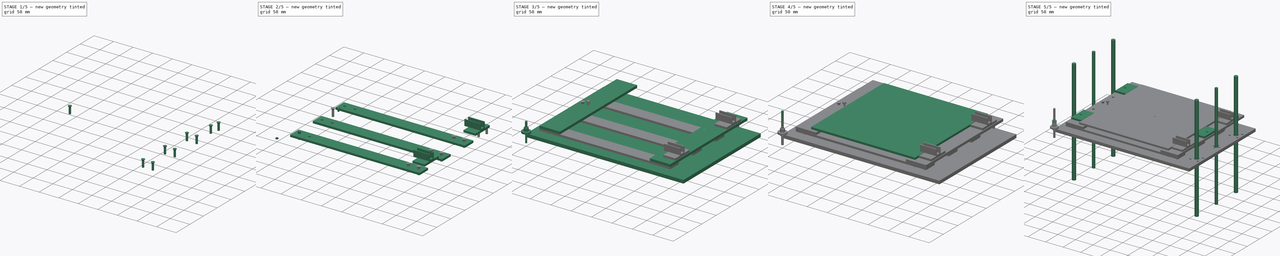
[diagram: build sequence overview — one tinted view per stage of 5, left to right]
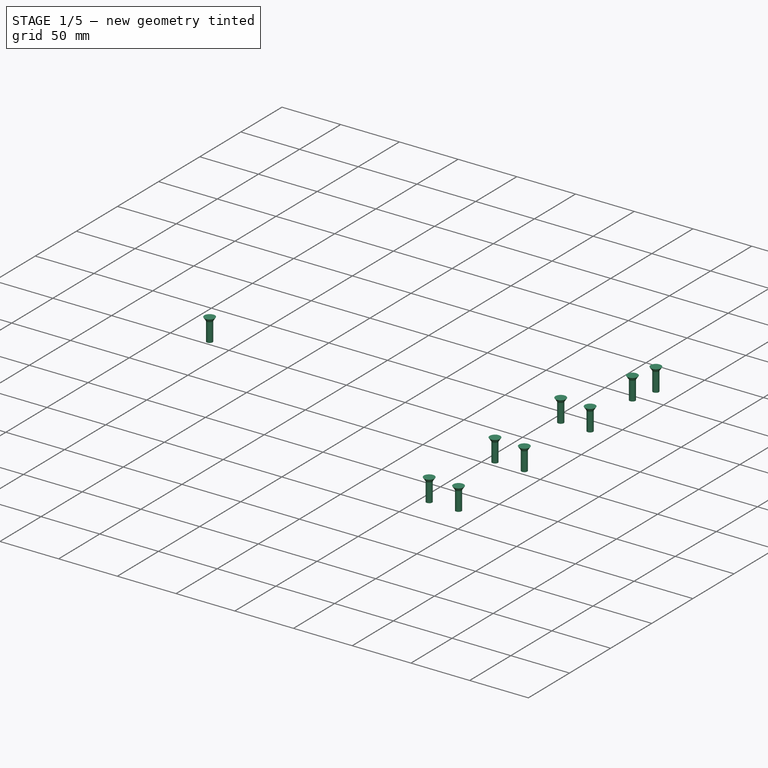
[diagram: stage 1 of 5 — iso view after this stage's code; geometry added in this stage tinted green]
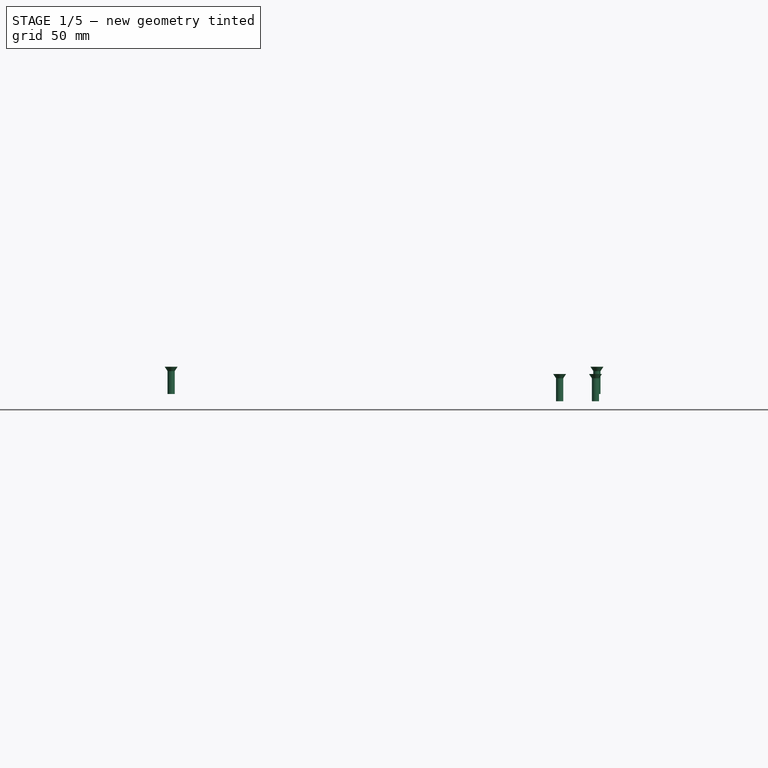
[diagram: stage 1 of 5 — front view after this stage's code; geometry added in this stage tinted green]
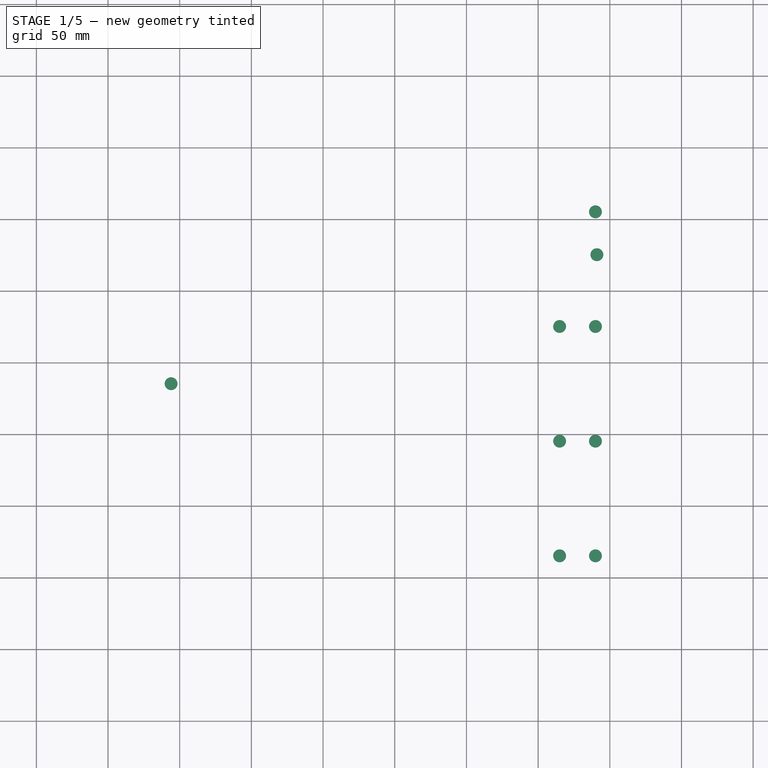
[diagram: stage 1 of 5 — top view after this stage's code; geometry added in this stage tinted green]
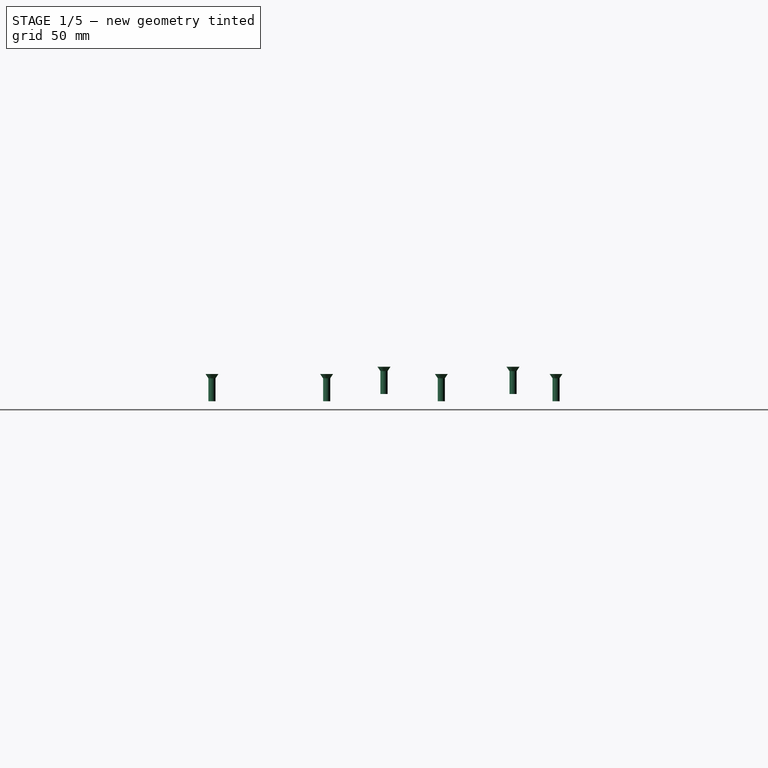
[diagram: stage 1 of 5 — right view after this stage's code; geometry added in this stage tinted green]
FCSTD DOCUMENT  (FreeCAD 0.17R)
Label: Z-Axis-Mod
License: All rights reserved
LicenseURL: http://en.wikipedia.org/wiki/All_rights_reserved
objects: Drawing::FeatureViewPython×89, Part::Feature×83, App::DocumentObjectGroup×47, Part::FeaturePython×30, Part::Cylinder×25, Sketcher::SketchObject×21, PartDesign::Pocket×17, Part::Box×14, Part::MultiFuse×11, Drawing::FeatureViewPart×6, Part::Cone×4, Drawing::FeaturePage×4, PartDesign::Pad×3, Part::Helix×1, Part::Sweep×1, Part::Cut×1, Drawing::FeatureViewAnnotation×1
note: 231 computed .brp shape members not serialized (recipe doc carries the construction recipe); baked Part::Feature solids carry a one-line shape summary decoded from their .brp

FEATURE [Part::Cylinder] Cylinder011
  Angle = 360
  Height = 16
  Radius = 2.5
FEATURE [Part::Cone] Cone003
  Angle = 360
  Height = 3
  Placement = pos=(0,0,-3) rot=(0,0,1;0rad)
  Radius1 = 4.5
  Radius2 = 2.5
FEATURE [Part::MultiFuse] Fusion001018017  label="M5x16_Senkkopf"
  Placement = pos=(45,15,21) rot=(0,1,0;3.14159rad)
  Shapes = -> [Cylinder011,Cone003]
FEATURE [Drawing::FeatureViewPython] text001  # drawing view (typed FeaturePython)
  Rotation = 0
  ViewResult = <g> <text x="84.000000" y="60.000000" font-family="inherit" font-size="5" fill="rgb(0,0,0)" text-anchor="inherit" transform="rotate(0.000000 84.000000,60.000000)" >threaded (M5)</text> </g>
  Visible = true
  X = 0
  Y = 0
  click1_x = 84
  click1_y = 60
  rotation = 0
  text = threaded (M5)
  textRenderer_addText_color = rgb(0,0,0)
  textRenderer_addText_family = inherit
  textRenderer_addText_size = 5
FEATURE [Drawing::FeatureViewPython] text002  # drawing view (typed FeaturePython)
  Rotation = 0
  ViewResult = <g> <text x="146.000000" y="60.000000" font-family="inherit" font-size="5" fill="rgb(0,0,0)" text-anchor="inherit" transform="rotate(0.000000 146.000000,60.000000)" >threaded (M5)</text> </g>
  Visible = true
  X = 0
  Y = 0
  click1_x = 146
  click1_y = 60
  rotation = 0
  text = threaded (M5)
  textRenderer_addText_color = rgb(0,0,0)
  textRenderer_addText_family = inherit
  textRenderer_addText_size = 5
FEATURE [Drawing::FeatureViewPython] text003  # drawing view (typed FeaturePython)
  Rotation = 0
  ViewResult = <g> <text x="212.000000" y="60.000000" font-family="inherit" font-size="5" fill="rgb(0,0,0)" text-anchor="inherit" transform="rotate(0.000000 212.000000,60.000000)" >threaded (M5)</text> </g>
  Visible = true
  X = 0
  Y = 0
  click1_x = 212
  click1_y = 60
  rotation = 0
  text = threaded (M5)
  textRenderer_addText_color = rgb(0,0,0)
  textRenderer_addText_family = inherit
  textRenderer_addText_size = 5
FEATURE [Drawing::FeatureViewAnnotation] Annotation
  Font = Sans
  Rotation = 0
  Scale = 7
  ViewResult = <g transform="translate(10,10) rotate(0)">\n<text id="Annotation"\n font-family="Sans"\n font-size="7"\n fill="#000000">\n<tspan x="0" dy="1em"></tspan>\n</text>\n</g>
  Visible = true
  X = 10
  Y = 10
FEATURE [Drawing::FeatureViewPython] ViewPocket002010  # drawing view (typed FeaturePython)
  Direction = (0,0,0)
  FillStyle = 0
  FontSize = 12
  LineStyle = 0
  LineWidth = 0.35
  Rotation = 0
  Scale = 10
  Source = -> Pocket002010
  ViewResult = <g id="ViewPocket002010" transform="rotate(0.0,10.0,10.0) translate(10.0,10.0) scale(10.0,-10.0)"><path id="Pocket002010_f0000"  d="M 34.0 160.0 L 34.0 110.0 L 34.0 110.0 L 34.0 160.0 L 34.0 160.0 Z " stroke="#191919" stroke-width="0.035 px" style="stroke-width:0.035;stroke-miterlimit:4;stroke-dasharray:none;fill:#cccccc;fill-rule: evenodd "/>\n<path id="Pocket002010_f0001"  d="M 34.0 110.0 L 34.0 110.0 L 64.0 110.0 L 64.0 110.0 L 34.0 110.0 Z " stroke="#191919" stroke-width="0.035 px" style="stroke-width:0.035;stroke-miterlimit:4;stroke-dasharray:none;fill:#cccccc;fill-rule: evenodd "/>\n<circle cx="44.0" cy="135.0" r="3.0" stroke="#191919" stroke-width="0.035 px" style="stroke-width:0.035;stroke-miterlimit:4;stroke-dasharray:none;fill:#cccccc"/>\n<path id="Pocket002010_f0003"  d="M 64.0 160.0 L 34.0 160.0 L 34.0 160.0 L 64.0 160.0 L 64.0 160.0 Z " stroke="#191919" stroke-width="0.035 px" style="stroke-width:0.035;stroke-miterlimit:4;stroke-dasharray:none;fill:#cccccc;fill-rule: evenodd "/>\n<circle cx="57.5" cy="135.0" r="1.65" stroke="#191919" stroke-width="0.035 px" style="stroke-width:0.035;stroke-miterlimit:4;stroke-dasharray:none;fill:#cccccc"/>\n<path id="Pocket002010_f0005"  d="M 64.0 110.0 L 64.0 110.0 L 64.0 160.0 L 64.0 160.0 L 64.0 110.0 Z " stroke="#191919" stroke-width="0.035 px" style="stroke-width:0.035;stroke-miterlimit:4;stroke-dasharray:none;fill:#cccccc;fill-rule: evenodd "/>\n<circle cx="44.0" cy="135.0" r="3.0" stroke="#191919" stroke-width="0.035 px" style="stroke-width:0.035;stroke-miterlimit:4;stroke-dasharray:none;fill:#cccccc"/>\n<circle cx="57.5" cy="135.0" r="1.65" stroke="#191919" stroke-width="0.035 px" style="stroke-width:0.035;stroke-miterlimit:4;stroke-dasharray:none;fill:#cccccc"/>\n</g>
  Visible = true
  X = 10
  Y = 10
FEATURE [Drawing::FeatureViewPart] View
  Direction = (0,0,1)
  HiddenWidth = 0.15
  LineWidth = 0.35
  Rotation = 0
  ShowHiddenLines = false
  ShowSmoothLines = false
  Source = -> Pocket002010
  Tolerance = 0.05
  ViewResult = <g id="View"\n   transform="rotate(0,10,10) translate(10,10) scale(1,1)"\n  >\n<g   stroke="rgb(0, 0, 0)"\n   stroke-width="0.35"\n   stroke-linecap="butt"\n   stroke-linejoin="miter"\n   fill="none"\n   transform="scale(1,-1)"\n  >\n<path id= "1" d=" M 34 110 L 34 160 " />\n<path id= "2" d=" M 34 110 L 64 110 " />\n<path id= "3" d=" M 34 160 L 64 160 " />\n<path id= "4" d=" M 64 110 L 64 160 " />\n<circle cx ="44" cy ="135" r ="3" /><circle cx ="57.5" cy ="135" r ="1.65" /></g>\n</g>
  Visible = true
  X = 10
  Y = 10
FEATURE [Drawing::FeatureViewPart] Ortho005  label="Ortho_0_005"
  Direction = (0,0,1)
  HiddenWidth = 0.15
  LineWidth = 0.35
  Rotation = 90
  Scale = 2
  ShowHiddenLines = false
  ShowSmoothLines = false
  Source = -> Pocket002010
  Tolerance = 0.05
  ViewResult = <g id="Ortho_0_005"\n   transform="rotate(90,-121.5,-12) translate(-121.5,-12) scale(2,2)"\n  >\n<g   stroke="rgb(0, 0, 0)"\n   stroke-width="0.175"\n   stroke-linecap="butt"\n   stroke-linejoin="miter"\n   fill="none"\n   transform="scale(1,-1)"\n  >\n<path id= "1" d=" M 34 110 L 34 160 " />\n<path id= "2" d=" M 34 110 L 64 110 " />\n<path id= "3" d=" M 34 160 L 64 160 " />\n<path id= "4" d=" M 64 110 L 64 160 " />\n<circle cx ="44" cy ="135" r ="3" /><circle cx ="57.5" cy ="135" r ="1.65" /></g>\n</g>
  Visible = true
  X = -121.5
  Y = -12
FEATURE [Drawing::FeatureViewPython] dim003  # drawing view (typed FeaturePython)
  Rotation = 0
  ViewResult = <g> \n  <line x1="98.500000" y1="54.000000" x2="98.500000" y2="33.000000" style="stroke:rgb(0,85,255);stroke-width:0.30" />\n<line x1="198.500000" y1="54.000000" x2="198.500000" y2="33.000000" style="stroke:rgb(0,85,255);stroke-width:0.30" />\n<line x1="98.500000" y1="34.000000" x2="198.500000" y2="34.000000" style="stroke:rgb(0,85,255);stroke-width:0.30" /> \n  <polygon points="198.500000,34.000000 195.500000,33.000000 194.500000,34.000000 195.500000,35.000000" style="fill:rgb(0,85,255);stroke:rgb(0,85,255);stroke-width:0" /><polygon points="98.500000,34.000000 101.500000,35.000000 102.500000,34.000000 101.500000,33.000000" style="fill:rgb(0,85,255);stroke:rgb(0,85,255);stroke-width:0" /> \n  <text x="148.500000" y="32.000000" font-family="inherit" font-size="3.6" fill="rgb(0,85,255)" text-anchor="middle" transform="rotate(0.000000 148.500000,32.000000)" >50</text> </g>
  Visible = true
  X = 0
  Y = 0
  arrowL1 = 3
  arrowL2 = 1
  arrowW = 2
  arrow_scheme = 0
  autoPlaceOffset = 2
  autoPlaceText = true
  click1_x = 196
  click1_y = 34
  click2_x = 196
  click2_y = 34
  comma_decimal_place = false
  dimension_line_overshoot = 1
  gap_datum_points = 2
  halfDimension_linear = false
  lineColor = rgb(0,85,255)
  strokeWidth = 0.3
  textFormat_linear = %(value)3.3f
  textRenderer_color = rgb(0,85,255)
  textRenderer_family = inherit
  textRenderer_size = 3.6
  unit_custom_scale = 1
  unit_scheme = 0
FEATURE [Drawing::FeatureViewPython] dim016  # drawing view (typed FeaturePython)
  Rotation = 0
  ViewResult = <g> \n  <line x1="96.500000" y1="56.000000" x2="79.000000" y2="56.000000" style="stroke:rgb(0,85,255);stroke-width:0.30" />\n<line x1="96.500000" y1="116.000000" x2="79.000000" y2="116.000000" style="stroke:rgb(0,85,255);stroke-width:0.30" />\n<line x1="80.000000" y1="56.000000" x2="80.000000" y2="116.000000" style="stroke:rgb(0,85,255);stroke-width:0.30" /> \n  <polygon points="80.000000,116.000000 81.000000,113.000000 80.000000,112.000000 79.000000,113.000000" style="fill:rgb(0,85,255);stroke:rgb(0,85,255);stroke-width:0" /><polygon points="80.000000,56.000000 79.000000,59.000000 80.000000,60.000000 81.000000,59.000000" style="fill:rgb(0,85,255);stroke:rgb(0,85,255);stroke-width:0" /> \n  <text x="78.000000" y="86.000000" font-family="inherit" font-size="3.6" fill="rgb(0,85,255)" text-anchor="middle" transform="rotate(-90.000000 78.000000,86.000000)" >30</text> </g>
  Visible = true
  X = 0
  Y = 0
  arrowL1 = 3
  arrowL2 = 1
  arrowW = 2
  arrow_scheme = 0
  autoPlaceOffset = 2
  autoPlaceText = true
  click1_x = 80
  click1_y = 116
  click2_x = 80
  click2_y = 116
  comma_decimal_place = false
  dimension_line_overshoot = 1
  gap_datum_points = 2
  halfDimension_linear = false
  lineColor = rgb(0,85,255)
  strokeWidth = 0.3
  textFormat_linear = %(value)3.3f
  textRenderer_color = rgb(0,85,255)
  textRenderer_family = inherit
  textRenderer_size = 3.6
  unit_custom_scale = 1
  unit_scheme = 0
FEATURE [Drawing::FeatureViewPython] dim017  # drawing view (typed FeaturePython)
  Rotation = 0
  ViewResult = <g> \n  <line x1="146.500000" y1="76.000000" x2="89.000000" y2="76.000000" style="stroke:rgb(0,85,255);stroke-width:0.30" />\n<line x1="96.500000" y1="56.000000" x2="89.000000" y2="56.000000" style="stroke:rgb(0,85,255);stroke-width:0.30" />\n<line x1="90.000000" y1="76.000000" x2="90.000000" y2="56.000000" style="stroke:rgb(0,85,255);stroke-width:0.30" /> \n  <polygon points="90.000000,56.000000 89.000000,59.000000 90.000000,60.000000 91.000000,59.000000" style="fill:rgb(0,85,255);stroke:rgb(0,85,255);stroke-width:0" /><polygon points="90.000000,76.000000 91.000000,73.000000 90.000000,72.000000 89.000000,73.000000" style="fill:rgb(0,85,255);stroke:rgb(0,85,255);stroke-width:0" /> \n  <text x="88.000000" y="66.000000" font-family="inherit" font-size="3.6" fill="rgb(0,85,255)" text-anchor="middle" transform="rotate(-90.000000 88.000000,66.000000)" >10</text> </g>
  Visible = true
  X = 0
  Y = 0
  arrowL1 = 3
  arrowL2 = 1
  arrowW = 2
  arrow_scheme = 0
  autoPlaceOffset = 2
  autoPlaceText = true
  click1_x = 90
  click1_y = 64
  click2_x = 90
  click2_y = 64
  comma_decimal_place = false
  dimension_line_overshoot = 1
  gap_datum_points = 2
  halfDimension_linear = false
  lineColor = rgb(0,85,255)
  strokeWidth = 0.3
  textFormat_linear = %(value)3.3f
  textRenderer_color = rgb(0,85,255)
  textRenderer_family = inherit
  textRenderer_size = 3.6
  unit_custom_scale = 1
  unit_scheme = 0
FEATURE [Drawing::FeatureViewPython] dim018  # drawing view (typed FeaturePython)
  Rotation = 0
  ViewResult = <g> \n  <line x1="146.500000" y1="103.000000" x2="85.000000" y2="103.000000" style="stroke:rgb(0,85,255);stroke-width:0.30" />\n<line x1="96.500000" y1="56.000000" x2="85.000000" y2="56.000000" style="stroke:rgb(0,85,255);stroke-width:0.30" />\n<line x1="86.000000" y1="103.000000" x2="86.000000" y2="56.000000" style="stroke:rgb(0,85,255);stroke-width:0.30" /> \n  <polygon points="86.000000,56.000000 85.000000,59.000000 86.000000,60.000000 87.000000,59.000000" style="fill:rgb(0,85,255);stroke:rgb(0,85,255);stroke-width:0" /><polygon points="86.000000,103.000000 87.000000,100.000000 86.000000,99.000000 85.000000,100.000000" style="fill:rgb(0,85,255);stroke:rgb(0,85,255);stroke-width:0" /> \n  <text x="84.000000" y="79.500000" font-family="inherit" font-size="3.6" fill="rgb(0,85,255)" text-anchor="middle" transform="rotate(-90.000000 84.000000,79.500000)" >23.5</text> </g>
  Visible = true
  X = 0
  Y = 0
  arrowL1 = 3
  arrowL2 = 1
  arrowW = 2
  arrow_scheme = 0
  autoPlaceOffset = 2
  autoPlaceText = true
  click1_x = 86
  click1_y = 60
  click2_x = 86
  click2_y = 60
  comma_decimal_place = false
  dimension_line_overshoot = 1
  gap_datum_points = 2
  halfDimension_linear = false
  lineColor = rgb(0,85,255)
  strokeWidth = 0.3
  textFormat_linear = %(value)3.3f
  textRenderer_color = rgb(0,85,255)
  textRenderer_family = inherit
  textRenderer_size = 3.6
  unit_custom_scale = 1
  unit_scheme = 0
FEATURE [Drawing::FeatureViewPython] dim019  # drawing view (typed FeaturePython)
  Rotation = 0
  ViewResult = <g> \n  <line x1="148.500000" y1="101.000000" x2="148.500000" y2="49.000000" style="stroke:rgb(0,85,255);stroke-width:0.30" />\n<line x1="98.500000" y1="54.000000" x2="98.500000" y2="49.000000" style="stroke:rgb(0,85,255);stroke-width:0.30" />\n<line x1="148.500000" y1="50.000000" x2="98.500000" y2="50.000000" style="stroke:rgb(0,85,255);stroke-width:0.30" /> \n  <polygon points="98.500000,50.000000 101.500000,51.000000 102.500000,50.000000 101.500000,49.000000" style="fill:rgb(0,85,255);stroke:rgb(0,85,255);stroke-width:0" /><polygon points="148.500000,50.000000 145.500000,49.000000 144.500000,50.000000 145.500000,51.000000" style="fill:rgb(0,85,255);stroke:rgb(0,85,255);stroke-width:0" /> \n  <text x="123.500000" y="48.000000" font-family="inherit" font-size="3.6" fill="rgb(0,85,255)" text-anchor="middle" transform="rotate(0.000000 123.500000,48.000000)" >25</text> </g>
  Visible = true
  X = 0
  Y = 0
  arrowL1 = 3
  arrowL2 = 1
  arrowW = 2
  arrow_scheme = 0
  autoPlaceOffset = 2
  autoPlaceText = true
  click1_x = 136
  click1_y = 50
  click2_x = 136
  click2_y = 50
  comma_decimal_place = false
  dimension_line_overshoot = 1
  gap_datum_points = 2
  halfDimension_linear = false
  lineColor = rgb(0,85,255)
  strokeWidth = 0.3
  textFormat_linear = %(value)3.3f
  textRenderer_color = rgb(0,85,255)
  textRenderer_family = inherit
  textRenderer_size = 3.6
  unit_custom_scale = 1
  unit_scheme = 0
FEATURE [Drawing::FeatureViewPython] dia020  # drawing view (typed FeaturePython)
  Rotation = 0
  ViewResult = <g>  <circle cx ="148.500000" cy ="76.000000" r="0.250000" stroke="none" fill="rgb(0,85,255)" /> \n<line x1="160.000000" y1="68.000000" x2="143.574569" y2="79.426387" style="stroke:rgb(0,85,255);stroke-width:0.30" />\n<polygon points="153.425431,72.573613 150.391651,73.465901 150.141810,74.857871 151.533780,75.107712" style="fill:rgb(0,85,255);stroke:rgb(0,85,255);stroke-width:0" />\n<polygon points="143.574569,79.426387 146.608349,78.534099 146.858190,77.142129 145.466220,76.892288" style="fill:rgb(0,85,255);stroke:rgb(0,85,255);stroke-width:0" />\n<line x1="160.000000" y1="68.000000" x2="160.000000" y2="68.000000" style="stroke:rgb(0,85,255);stroke-width:0.30" />\n<text x="160.000000" y="66.000000" font-family="inherit" font-size="3.6" fill="rgb(0,85,255)" text-anchor="middle" transform="rotate(0.000000 160.000000,66.000000)" >Ø6</text> </g>
  Visible = true
  X = 0
  Y = 0
  arrowL1 = 3
  arrowL2 = 1
  arrowW = 2
  arrow_scheme = 0
  autoPlaceOffset = 2
  autoPlaceText = true
  centerPointDia = 0.5
  click1_x = 160
  click1_y = 68
  click2_x = 160
  click2_y = 68
  click3_x = 160
  click3_y = 68
  comma_decimal_place = false
  lineColor = rgb(0,85,255)
  strokeWidth = 0.3
  textFormat_circular = Ø%(value)3.3f
  textRenderer_color = rgb(0,85,255)
  textRenderer_family = inherit
  textRenderer_size = 3.6
  unit_custom_scale = 1
  unit_scheme = 0
FEATURE [Drawing::FeatureViewPython] dia021  # drawing view (typed FeaturePython)
  Rotation = 0
  ViewResult = <g>  <circle cx ="148.500000" cy ="103.000000" r="0.250000" stroke="none" fill="rgb(0,85,255)" /> \n<line x1="158.000000" y1="94.000000" x2="146.104356" y2="105.269557" style="stroke:rgb(0,85,255);stroke-width:0.30" />\n<polygon points="150.895644,100.730443 153.761247,99.393161 153.799455,97.979464 152.385757,97.941256" style="fill:rgb(0,85,255);stroke:rgb(0,85,255);stroke-width:0" />\n<polygon points="146.104356,105.269557 143.238753,106.606839 143.200545,108.020536 144.614243,108.058744" style="fill:rgb(0,85,255);stroke:rgb(0,85,255);stroke-width:0" />\n<line x1="158.000000" y1="94.000000" x2="160.000000" y2="94.000000" style="stroke:rgb(0,85,255);stroke-width:0.30" />\n<text x="159.000000" y="92.000000" font-family="inherit" font-size="3.6" fill="rgb(0,85,255)" text-anchor="middle" transform="rotate(0.000000 159.000000,92.000000)" >Ø3.3</text> </g>
  Visible = true
  X = 0
  Y = 0
  arrowL1 = 3
  arrowL2 = 1
  arrowW = 2
  arrow_scheme = 0
  autoPlaceOffset = 2
  autoPlaceText = true
  centerPointDia = 0.5
  click1_x = 158
  click1_y = 94
  click2_x = 160
  click2_y = 94
  click3_x = 160
  click3_y = 94
  comma_decimal_place = false
  lineColor = rgb(0,85,255)
  strokeWidth = 0.3
  textFormat_circular = Ø%(value)3.3f
  textRenderer_color = rgb(0,85,255)
  textRenderer_family = inherit
  textRenderer_size = 3.6
  unit_custom_scale = 1
  unit_scheme = 0
FEATURE [Drawing::FeatureViewPython] text004  # drawing view (typed FeaturePython)
  Rotation = 0
  ViewResult = <g> <text x="156.000000" y="104.000000" font-family="inherit" font-size="5" fill="rgb(0,0,0)" text-anchor="inherit" transform="rotate(0.000000 156.000000,104.000000)" >threaded (M4)</text> </g>
  Visible = true
  X = 0
  Y = 0
  click1_x = 156
  click1_y = 104
  rotation = 0
  text = threaded (M4)
  textRenderer_addText_color = rgb(0,0,0)
  textRenderer_addText_family = inherit
  textRenderer_addText_size = 5
FEATURE [Drawing::FeatureViewPython] text005  # drawing view (typed FeaturePython)
  Rotation = 0
  ViewResult = <g> <text x="16.000000" y="144.000000" font-family="inherit" font-size="7" fill="rgb(0,0,0)" text-anchor="inherit" transform="rotate(0.000000 16.000000,144.000000)" >Thickness of Block: 5mm</text> </g>
  Visible = true
  X = 0
  Y = 0
  click1_x = 16
  click1_y = 144
  rotation = 0
  text = Thickness of Block: 5mm
  textRenderer_addText_color = rgb(0,0,0)
  textRenderer_addText_family = inherit
  textRenderer_addText_size = 7
FEATURE [Drawing::FeatureViewPython] text006  # drawing view (typed FeaturePython)
  Rotation = 0
  ViewResult = <g> <text x="18.000000" y="182.000000" font-family="inherit" font-size="7" fill="rgb(0,0,0)" text-anchor="inherit" transform="rotate(0.000000 18.000000,182.000000)" >Thickness: 5mm</text> </g>
  Visible = true
  X = 0
  Y = 0
  click1_x = 18
  click1_y = 182
  rotation = 0
  text = Thickness: 5mm
  textRenderer_addText_color = rgb(0,0,0)
  textRenderer_addText_family = inherit
  textRenderer_addText_size = 7
FEATURE [Drawing::FeatureViewPython] text007  # drawing view (typed FeaturePython)
  Rotation = 0
  ViewResult = <g> <text x="16.000000" y="188.000000" font-family="inherit" font-size="7" fill="rgb(0,0,0)" text-anchor="inherit" transform="rotate(0.000000 16.000000,188.000000)" >Thickness: 6mm</text> </g>
  Visible = true
  X = 0
  Y = 0
  click1_x = 16
  click1_y = 188
  rotation = 0
  text = Thickness: 6mm
  textRenderer_addText_color = rgb(0,0,0)
  textRenderer_addText_family = inherit
  textRenderer_addText_size = 7
FEATURE [Drawing::FeatureViewPython] text008  # drawing view (typed FeaturePython)
  Rotation = 0
  ViewResult = <g> <text x="16.000000" y="196.000000" font-family="inherit" font-size="5" fill="rgb(0,0,0)" text-anchor="inherit" transform="rotate(0.000000 16.000000,196.000000)" >2 pcs needed</text> </g>
  Visible = true
  X = 0
  Y = 0
  click1_x = 16
  click1_y = 196
  rotation = 0
  text = 2 pcs needed
  textRenderer_addText_color = rgb(0,0,0)
  textRenderer_addText_family = inherit
  textRenderer_addText_size = 5
FEATURE [Drawing::FeatureViewPython] text009  # drawing view (typed FeaturePython)
  Rotation = 0
  ViewResult = <g> <text x="18.000000" y="190.000000" font-family="inherit" font-size="5" fill="rgb(0,0,0)" text-anchor="inherit" transform="rotate(0.000000 18.000000,190.000000)" >4 pcs needed</text> </g>
  Visible = true
  X = 0
  Y = 0
  click1_x = 18
  click1_y = 190
  rotation = 0
  text = 4 pcs needed
  textRenderer_addText_color = rgb(0,0,0)
  textRenderer_addText_family = inherit
  textRenderer_addText_size = 5
FEATURE [Drawing::FeatureViewPython] text010  # drawing view (typed FeaturePython)
  Rotation = 0
  ViewResult = <g> <text x="16.000000" y="152.000000" font-family="inherit" font-size="5" fill="rgb(0,0,0)" text-anchor="inherit" transform="rotate(0.000000 16.000000,152.000000)" >3 pcs needed</text> </g>
  Visible = true
  X = 0
  Y = 0
  click1_x = 16
  click1_y = 152
  rotation = 0
  text = 3 pcs needed
  textRenderer_addText_color = rgb(0,0,0)
  textRenderer_addText_family = inherit
  textRenderer_addText_size = 5
FEATURE [Drawing::FeaturePage] Page004  label="Drawing Distanceblock Glasmounting"
  EditableTexts = Tobias Frost | Distanceblock glas mounting | Licensed under the GPL-2.0 or later | A4 | X / Y | SCALE | PN | DN | 01/11/2017 | REV A
  Group = -> [Ortho005,dim003,dim016,dim017,dim018,dim019,dia020,dia021,text004,text005,text010]
FEATURE [Drawing::FeatureViewPython] text011  # drawing view (typed FeaturePython)
  Rotation = 0
  ViewResult = <g> <text x="18.000000" y="22.000000" font-family="inherit" font-size="7" fill="rgb(0,0,0)" text-anchor="inherit" transform="rotate(0.000000 18.000000,22.000000)" >Material thickness: 8mm</text> </g>
  Visible = true
  X = 0
  Y = 0
  click1_x = 18
  click1_y = 22
  rotation = 0
  text = Material thickness: 8mm
  textRenderer_addText_color = rgb(0,0,0)
  textRenderer_addText_family = inherit
  textRenderer_addText_size = 7
FEATURE [Drawing::FeatureViewPython] text012  # drawing view (typed FeaturePython)
  Rotation = 0
  ViewResult = <g> <text x="232.000000" y="22.000000" font-family="inherit" font-size="3" fill="rgb(0,0,0)" text-anchor="inherit" transform="rotate(0.000000 232.000000,22.000000)" >Licensed under the GPL-2.0 or later</text> </g>
  Visible = true
  X = 0
  Y = 0
  click1_x = 232
  click1_y = 22
  rotation = 0
  text = Licensed under the GPL-2.0 or later
  textRenderer_addText_color = rgb(0,0,0)
  textRenderer_addText_family = inherit
  textRenderer_addText_size = 3
FEATURE [Drawing::FeatureViewPython] text013  # drawing view (typed FeaturePython)
  Rotation = 0
  ViewResult = <g> <text x="232.000000" y="18.000000" font-family="inherit" font-size="3" fill="rgb(0,0,0)" text-anchor="inherit" transform="rotate(0.000000 232.000000,18.000000)" >Tobias Frost</text> </g>
  Visible = true
  X = 0
  Y = 0
  click1_x = 232
  click1_y = 18
  rotation = 0
  text = Tobias Frost
  textRenderer_addText_color = rgb(0,0,0)
  textRenderer_addText_family = inherit
  textRenderer_addText_size = 3
FEATURE [Drawing::FeatureViewPython] text014  # drawing view (typed FeaturePython)
  Rotation = 0
  ViewResult = <g> <text x="262.000000" y="18.000000" font-family="inherit" font-size="3" fill="rgb(0,0,0)" text-anchor="inherit" transform="rotate(0.000000 262.000000,18.000000)" >01/11/2017</text> </g>
  Visible = true
  X = 0
  Y = 0
  click1_x = 262
  click1_y = 18
  rotation = 0
  text = 01/11/2017
  textRenderer_addText_color = rgb(0,0,0)
  textRenderer_addText_family = inherit
  textRenderer_addText_size = 3
FEATURE [Drawing::FeatureViewPython] text015  # drawing view (typed FeaturePython)
  Rotation = 0
  ViewResult = <g> <text x="18.000000" y="16.000000" font-family="inherit" font-size="5" fill="rgb(0,0,0)" text-anchor="inherit" transform="rotate(0.000000 18.000000,16.000000)" >Mainplate</text> </g>
  Visible = true
  X = 0
  Y = 0
  click1_x = 18
  click1_y = 16
  rotation = 0
  text = Mainplate
  textRenderer_addText_color = rgb(0,0,0)
  textRenderer_addText_family = inherit
  textRenderer_addText_size = 5
FEATURE [Drawing::FeaturePage] Page002  label="Drawing Main Mounting plate"
  Group = -> [Ortho002,dimStack013,dimStack014,dimStack015,dimStack016,dimStack017,dimStack018,dimStack019,dimStack020,dimStack021,dimStack023,dimStack024,dimStack025,dimStack026,dim005,dim006,dim007,dim021,dim022,dim023,dia015,dia016,dia017,dia018,dia019,text011,text012,text013,text014,text015]
FEATURE [Drawing::FeatureViewPython] dim020  # drawing view (typed FeaturePython)
  Rotation = 0
  ViewResult = <g> \n  <line x1="251.750000" y1="34.375000" x2="263.000000" y2="34.375000" style="stroke:rgb(0,85,255);stroke-width:0.30" />\n<line x1="251.750000" y1="71.875000" x2="263.000000" y2="71.875000" style="stroke:rgb(0,85,255);stroke-width:0.30" />\n<line x1="262.000000" y1="34.375000" x2="262.000000" y2="71.875000" style="stroke:rgb(0,85,255);stroke-width:0.30" /> \n  <polygon points="262.000000,71.875000 263.000000,68.875000 262.000000,67.875000 261.000000,68.875000" style="fill:rgb(0,85,255);stroke:rgb(0,85,255);stroke-width:0" /><polygon points="262.000000,34.375000 261.000000,37.375000 262.000000,38.375000 263.000000,37.375000" style="fill:rgb(0,85,255);stroke:rgb(0,85,255);stroke-width:0" /> \n  <text x="260.000000" y="53.125000" font-family="inherit" font-size="3.6" fill="rgb(0,85,255)" text-anchor="middle" transform="rotate(-90.000000 260.000000,53.125000)" >50</text> </g>
  Visible = true
  X = 0
  Y = 0
  arrowL1 = 3
  arrowL2 = 1
  arrowW = 2
  arrow_scheme = 0
  autoPlaceOffset = 2
  autoPlaceText = true
  click1_x = 262
  click1_y = 72
  click2_x = 262
  click2_y = 72
  comma_decimal_place = false
  dimension_line_overshoot = 1
  gap_datum_points = 2
  halfDimension_linear = false
  lineColor = rgb(0,85,255)
  strokeWidth = 0.3
  textFormat_linear = %(value)3.3f
  textRenderer_color = rgb(0,85,255)
  textRenderer_family = inherit
  textRenderer_size = 3.6
  unit_custom_scale = 1
  unit_scheme = 0
FEATURE [Drawing::FeatureViewPython] dim024  # drawing view (typed FeaturePython)
  Rotation = 0
  ViewResult = <g> \n  <line x1="249.750000" y1="32.375000" x2="249.750000" y2="21.000000" style="stroke:rgb(0,85,255);stroke-width:0.30" />\n<line x1="47.250000" y1="32.375000" x2="47.250000" y2="21.000000" style="stroke:rgb(0,85,255);stroke-width:0.30" />\n<line x1="249.750000" y1="22.000000" x2="47.250000" y2="22.000000" style="stroke:rgb(0,85,255);stroke-width:0.30" /> \n  <polygon points="47.250000,22.000000 50.250000,23.000000 51.250000,22.000000 50.250000,21.000000" style="fill:rgb(0,85,255);stroke:rgb(0,85,255);stroke-width:0" /><polygon points="249.750000,22.000000 246.750000,21.000000 245.750000,22.000000 246.750000,23.000000" style="fill:rgb(0,85,255);stroke:rgb(0,85,255);stroke-width:0" /> \n  <text x="148.500000" y="20.000000" font-family="inherit" font-size="3.6" fill="rgb(0,85,255)" text-anchor="middle" transform="rotate(0.000000 148.500000,20.000000)" >270</text> </g>
  Visible = true
  X = 0
  Y = 0
  arrowL1 = 3
  arrowL2 = 1
  arrowW = 2
  arrow_scheme = 0
  autoPlaceOffset = 2
  autoPlaceText = true
  click1_x = 62
  click1_y = 22
  click2_x = 62
  click2_y = 22
  comma_decimal_place = false
  dimension_line_overshoot = 1
  gap_datum_points = 2
  halfDimension_linear = false
  lineColor = rgb(0,85,255)
  strokeWidth = 0.3
  textFormat_linear = %(value)3.3f
  textRenderer_color = rgb(0,85,255)
  textRenderer_family = inherit
  textRenderer_size = 3.6
  unit_custom_scale = 1
  unit_scheme = 0
FEATURE [Drawing::FeaturePage] Page003  label="Drawing Mountingblock left+right (2x)"
  EditableTexts = Tobias Frost | Z-Axis Mod | Mountingblock | Licensed under the GPL-2.0 or later | A4 | X / Y | SCALE | PN | DN | 01/11/2017 | REV A
  Group = -> [Ortho003,Ortho004,dim004,dim011,dim012,dim013,dim014,dimStack001,dimStack002,dimStack003,dimStack004,dia002,dia003,dia004,dia005,dia006,dia007,dia008,dia009,dia010,dia011,dia012,dia013,dia014,dia022,dimStack005,dimStack006,dimStack007,dimStack008,dimStack009,dimStack010,dimStack011,dimStack012,dimStack022,dim015,text001,text002,text003,Annotation,text007,text008,dim020,dim024]
FEATURE [Drawing::FeatureViewPython] dim025  # drawing view (typed FeaturePython)
  Rotation = 0
  ViewResult = <g> \n  <line x1="270.500000" y1="92.250000" x2="281.000000" y2="92.250000" style="stroke:rgb(0,85,255);stroke-width:0.30" />\n<line x1="270.500000" y1="114.750000" x2="281.000000" y2="114.750000" style="stroke:rgb(0,85,255);stroke-width:0.30" />\n<line x1="280.000000" y1="92.250000" x2="280.000000" y2="114.750000" style="stroke:rgb(0,85,255);stroke-width:0.30" /> \n  <polygon points="280.000000,114.750000 281.000000,111.750000 280.000000,110.750000 279.000000,111.750000" style="fill:rgb(0,85,255);stroke:rgb(0,85,255);stroke-width:0" /><polygon points="280.000000,92.250000 279.000000,95.250000 280.000000,96.250000 281.000000,95.250000" style="fill:rgb(0,85,255);stroke:rgb(0,85,255);stroke-width:0" /> \n  <text x="278.000000" y="103.500000" font-family="inherit" font-size="3.6" fill="rgb(0,85,255)" text-anchor="middle" transform="rotate(-90.000000 278.000000,103.500000)" >30</text> </g>
  Visible = true
  X = 0
  Y = 0
  arrowL1 = 3
  arrowL2 = 1
  arrowW = 2
  arrow_scheme = 0
  autoPlaceOffset = 2
  autoPlaceText = true
  click1_x = 280
  click1_y = 114
  click2_x = 280
  click2_y = 114
  comma_decimal_place = false
  dimension_line_overshoot = 1
  gap_datum_points = 2
  halfDimension_linear = false
  lineColor = rgb(0,85,255)
  strokeWidth = 0.3
  textFormat_linear = %(value)3.3f
  textRenderer_color = rgb(0,85,255)
  textRenderer_family = inherit
  textRenderer_size = 3.6
  unit_custom_scale = 1
  unit_scheme = 0
FEATURE [Drawing::FeaturePage] Page  label="Drawing Connection Braces (4x)"
  EditableTexts = Tobias Frost | Date | Scale | Weight | Verspannungstreben | Licensed under the GPL-2.0 or later | Drawing number | Sheet
  Group = -> [Ortho,dia001,dim001,dim002,dim008,dim009,dim010,ViewPocket002010,View,text006,text009,dim025]
FEATURE [App::DocumentObjectGroup] Group050  label="Verschraubung Glassplattenfixierung"
  Group = -> [Clone007,Clone008,Clone009]
FEATURE [App::DocumentObjectGroup] Group005  label="Glasplattenfixierung"
  Group = -> [Pocket002010,Pocket002015,Clone003,Clone004,Clone005,Clone006,Group050]
FEATURE [Part::FeaturePython] Clone011  label="M5x16_Senkkopf001"  # Draft clone (typed FeaturePython)
  Objects = -> [Fusion001018017]
  Placement = pos=(70,15,21) rot=(0,1,0;3.14159rad)
  Scale = (1,1,1)
FEATURE [Part::FeaturePython] Clone013  label="M5x16_Senkkopf002"  # Draft clone (typed FeaturePython)
  Objects = -> [Fusion001018017]
  Placement = pos=(45,15,21) rot=(-1,0,0;3.14159rad)
  Scale = (1,1,1)
FEATURE [Part::FeaturePython] Clone015  label="M5x16_Senkkopf003"  # Draft clone (typed FeaturePython)
  Objects = -> [Fusion001018017]
  Placement = pos=(70,95,21) rot=(-1,0,0;3.14159rad)
  Scale = (1,1,1)
FEATURE [Part::FeaturePython] Clone017  label="M5x16_Senkkopf004"  # Draft clone (typed FeaturePython)
  Objects = -> [Fusion001018017]
  Placement = pos=(45,95,21) rot=(-1,0,0;3.14159rad)
  Scale = (1,1,1)
FEATURE [Part::FeaturePython] Clone019  label="M5x16_Senkkopf005"  # Draft clone (typed FeaturePython)
  Objects = -> [Fusion001018017]
  Placement = pos=(70,175,21) rot=(-1,0,0;3.14159rad)
  Scale = (1,1,1)
FEATURE [Part::FeaturePython] Clone021  label="M5x16_Senkkopf006"  # Draft clone (typed FeaturePython)
  Objects = -> [Fusion001018017]
  Placement = pos=(45,175,21) rot=(-1,0,0;3.14159rad)
  Scale = (1,1,1)
FEATURE [Part::FeaturePython] Clone023  label="M5x16_Senkkopf007"  # Draft clone (typed FeaturePython)
  Objects = -> [Fusion001018017]
  Placement = pos=(70,255,21) rot=(-1,0,0;3.14159rad)
  Scale = (1,1,1)
FEATURE [Part::FeaturePython] Clone024  label="M5x16_Senkkopf008"  # Draft clone (typed FeaturePython)
  Objects = -> [Fusion001018017]
  Placement = pos=(45,255,21) rot=(-1,0,0;3.14159rad)
  Scale = (1,1,1)
FEATURE [App::DocumentObjectGroup] Group023  label="Schrauben_li"
  Group = -> [Clone011,Clone013,Clone015,Clone017,Clone019,Clone021,Clone023,Clone024]
FEATURE [App::DocumentObjectGroup] Group013  label="Verschraubung Platte-Streben links"
  Group = -> [Group023,Group024]
FEATURE [Part::FeaturePython] Clone025  label="M5x16_Senkkopf009"  # Draft clone (typed FeaturePython)
  Objects = -> [Clone011]
  Placement = pos=(340,15,21) rot=(0,1,0;3.14159rad)
  Scale = (1,1,1)
FEATURE [Part::FeaturePython] Clone026  label="M5x16_Senkkopf010"  # Draft clone (typed FeaturePython)
  Objects = -> [Clone013]
  Placement = pos=(315,15,21) rot=(-1,0,0;3.14159rad)
  Scale = (1,1,1)
FEATURE [Part::FeaturePython] Clone027  label="M5x16_Senkkopf011"  # Draft clone (typed FeaturePython)
  Objects = -> [Clone015]
  Placement = pos=(340,95,21) rot=(-1,0,0;3.14159rad)
  Scale = (1,1,1)
FEATURE [Part::FeaturePython] Clone028  label="M5x16_Senkkopf012"  # Draft clone (typed FeaturePython)
  Objects = -> [Clone017]
  Placement = pos=(315,95,21) rot=(-1,0,0;3.14159rad)
  Scale = (1,1,1)
FEATURE [Part::FeaturePython] Clone029  label="M5x16_Senkkopf013"  # Draft clone (typed FeaturePython)
  Objects = -> [Clone019]
  Placement = pos=(340,175,21) rot=(-1,0,0;3.14159rad)
  Scale = (1,1,1)
FEATURE [Part::FeaturePython] Clone030  label="M5x16_Senkkopf014"  # Draft clone (typed FeaturePython)
  Objects = -> [Clone021]
  Placement = pos=(315,175,21) rot=(-1,0,0;3.14159rad)
  Scale = (1,1,1)
FEATURE [Part::FeaturePython] Clone031  label="M5x16_Senkkopf015"  # Draft clone (typed FeaturePython)
  Objects = -> [Clone023]
  Placement = pos=(340,255,21) rot=(-1,0,0;3.14159rad)
  Scale = (1,1,1)
FEATURE [Part::FeaturePython] Clone032  label="M5x16_Senkkopf016"  # Draft clone (typed FeaturePython)
  Objects = -> [Clone024]
  Placement = pos=(315,255,21) rot=(-1,0,0;3.14159rad)
  Scale = (1,1,1)
FEATURE [App::DocumentObjectGroup] Group022  label="Schrauben_re"
  Group = -> [Clone025,Clone026,Clone027,Clone028,Clone029,Clone030,Clone031,Clone032]
FEATURE [App::DocumentObjectGroup] Group014  label="Verschraubung Platte-Streben rechts"
  Group = -> [Group022,Group021]
FEATURE [Part::FeaturePython] Clone033  label="M5x16_Senkkopf017"  # Draft clone (typed FeaturePython)
  Objects = -> [Clone032]
  Placement = pos=(44,135,26) rot=(-1,0,0;3.14159rad)
  Scale = (1,1,1)
FEATURE [Part::FeaturePython] Clone034  label="M5x16_Senkkopf018"  # Draft clone (typed FeaturePython)
  Objects = -> [Clone032]
  Placement = pos=(341,225,26) rot=(-1,0,0;3.14159rad)
  Scale = (1,1,1)
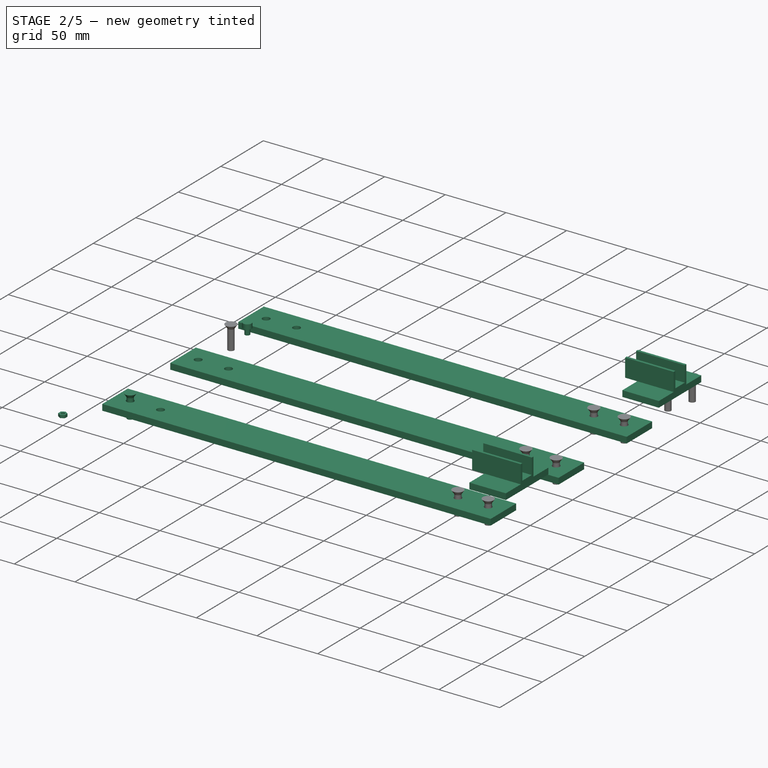
[diagram: stage 2 of 5 — iso view after this stage's code; geometry added in this stage tinted green]
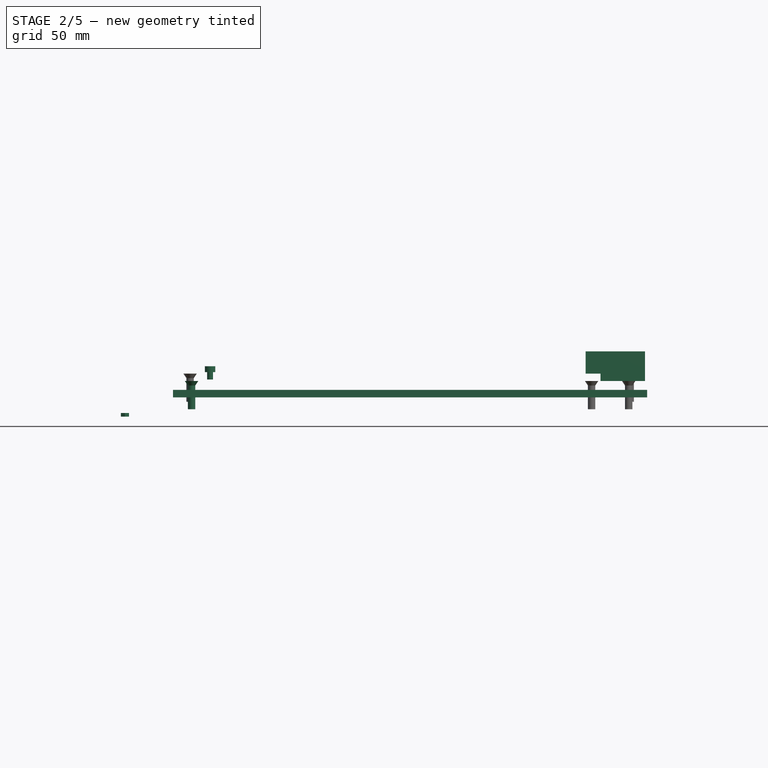
[diagram: stage 2 of 5 — front view after this stage's code; geometry added in this stage tinted green]
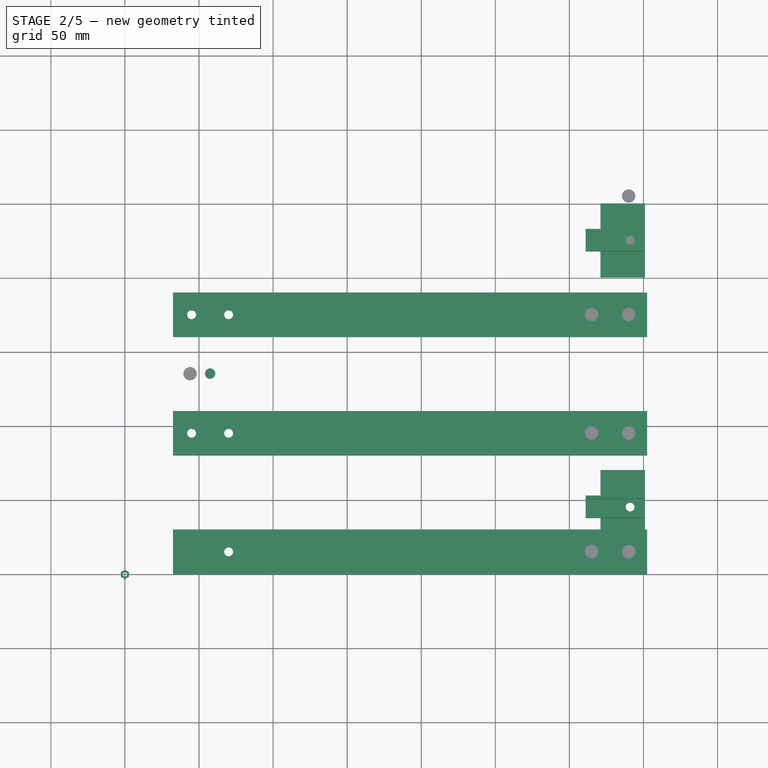
[diagram: stage 2 of 5 — top view after this stage's code; geometry added in this stage tinted green]
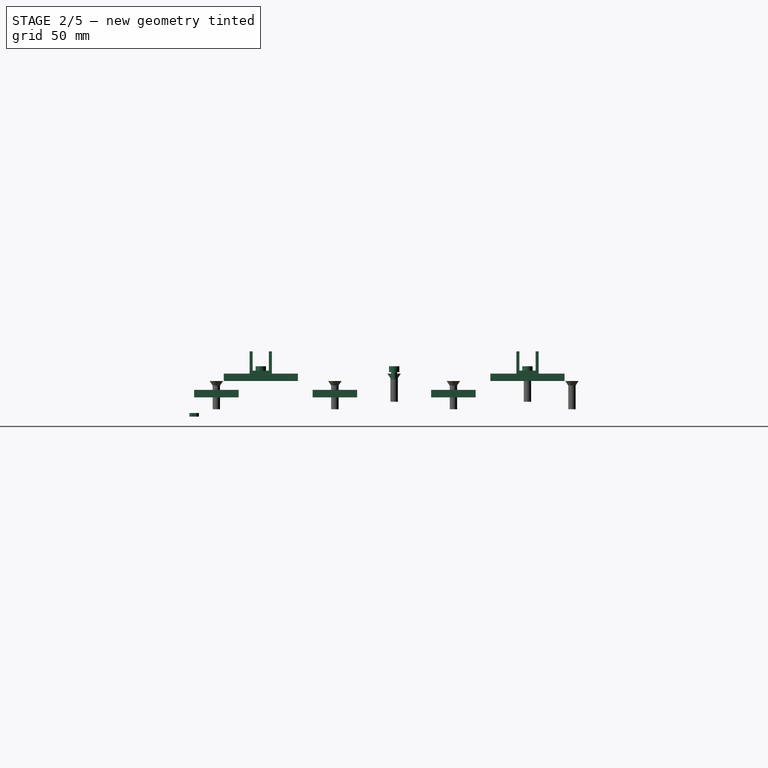
[diagram: stage 2 of 5 — right view after this stage's code; geometry added in this stage tinted green]
FEATURE [Part::Box] Box006  label="Verspannungs_Strebe"
  Height = 5
  Length = 320
  Placement = pos=(32.5,240,13) rot=(0,0,1;0rad)
  Width = 30
FEATURE [Part::Box] Box012  label="Block_li_2"
  Height = 5
  Length = 30
  Placement = pos=(34,110,24) rot=(0,0,1;0rad)
  Width = 50
FEATURE [Sketcher::SketchObject] Sketch008
  ExternalGeometry = -> [Box012]
  Placement = pos=(34,110,29) rot=(0,0,1;0rad)
  Support = -> Box012 [Face6]
  sketch-geometry (3):
    g0: LineSegment [constr] StartX=10 StartY=50 StartZ=0 EndX=10 EndY=0 EndZ=0
    g1: Circle CenterX=10 CenterY=25 CenterZ=0 NormalX=0 NormalY=0 NormalZ=1 Radius=3
    g2: Circle CenterX=23.5 CenterY=25 CenterZ=0 NormalX=0 NormalY=0 NormalZ=1 Radius=1.65
  constraints (10):
    c: PointOnObject(g0,g-3)
    c: PointOnObject(g0,g-4)
    c: Vertical(g0)
    c: DistanceX(g-3,g0) = 10
    c: PointOnObject(g1,g0)
    c: Symmetric(g0,g0,g1)
    c: Radius(g1) = 3
    c: DistanceX(g-3,g2) = 23.5
    c: Radius(g2) = 1.65
    c: DistanceY(g1,g2) = 0
FEATURE [PartDesign::Pocket] Pocket002010  label="Block_li_2_holed"
  Length = 5
  Placement = pos=(34,110,24) rot=(0,0,1;0rad)
  Sketch = -> Sketch008
  Type = 1
FEATURE [Part::Feature] Pad005  label="Niederhalter U-Profil 15/15/2x40mm_li_2"
  Placement = pos=(34,135,29) rot=(0.57735,0.57735,0.57735;2.0944rad)
  shape: bbox 40 x 15 x 15 mm, 10 faces (baked)
FEATURE [App::DocumentObjectGroup] Group018  label="unused parts"
  Group = -> [Pocket002011,Pocket002009,Pocket002013,Box009,Box008,Box016]
FEATURE [Sketcher::SketchObject] Sketch014
  Placement = pos=(34,135,31) rot=(0,0,-1;1.5708rad)
  Support = -> Pad005 [Face6]
  sketch-geometry (2):
    g0: Circle CenterX=0 CenterY=10 CenterZ=0 NormalX=0 NormalY=0 NormalZ=1 Radius=3
    g1: Circle CenterX=0 CenterY=23.5 CenterZ=0 NormalX=0 NormalY=0 NormalZ=1 Radius=2.1
  constraints (6):
    c: PointOnObject(g0,g-2)
    c: Radius(g0) = 3
    c: DistanceY(g-1,g0) = 10
    c: PointOnObject(g1,g-2)
    c: DistanceY(g-1,g1) = 23.5
    c: Radius(g1) = 2.1
FEATURE [PartDesign::Pocket] Pocket002015  label="U-Profil li holed"
  Length = 5
  Placement = pos=(34,135,29) rot=(0.57735,0.57735,0.57735;2.0944rad)
  Sketch = -> Sketch014
  Type = 0
FEATURE [App::DocumentObjectGroup] Group046  label="Zylinderkopf M3x16 ISK"
  Group = -> [Pocket002018004005005017,Fusion001018017023]
FEATURE [Part::Feature] Pocket002018004005005017001  label="Zylinderkopfschraube M3x16 (DIN912) 001"
  Placement = pos=(9.5,135,4.5) rot=(0,1,0;3.14159rad)
  shape: bbox 5.68 x 5.68 x 19 mm, 13 faces (baked)
FEATURE [Part::Feature] Pocket002018004005005017002  label="Zylinderkopfschraube M3x16 (DIN912) 002"
  Placement = pos=(17.5,127,4.5) rot=(0,1,0;3.14159rad)
  shape: bbox 5.68 x 5.68 x 19 mm, 13 faces (baked)
FEATURE [Part::Feature] Pocket002018004005005017003  label="Zylinderkopfschraube M3x16 (DIN912) 003"
  Placement = pos=(17.5,143,4.5) rot=(0,1,0;3.14159rad)
  shape: bbox 5.68 x 5.68 x 19 mm, 13 faces (baked)
FEATURE [Part::Feature] Pocket002018004005005017004  label="Zylinderkopfschraube M3x16 (DIN912) 004"
  Placement = pos=(25.5,135,4.5) rot=(0,1,0;3.14159rad)
  shape: bbox 5.68 x 5.68 x 19 mm, 13 faces (baked)
FEATURE [Part::Feature] Pocket002018004005005017005  label="Zylinderkopfschraube M3x16 (DIN912) 005"
  Placement = pos=(359.5,135,4.5) rot=(0,1,0;3.14159rad)
  shape: bbox 5.68 x 5.68 x 19 mm, 13 faces (baked)
FEATURE [Part::Feature] Pocket002018004005005017006  label="Zylinderkopfschraube M3x16 (DIN912) 006"
  Placement = pos=(375.5,135,4.5) rot=(0,1,0;3.14159rad)
  shape: bbox 5.68 x 5.68 x 19 mm, 13 faces (baked)
FEATURE [Part::Feature] Pocket002018004005005017007  label="Zylinderkopfschraube M3x16 (DIN912) 007"
  Placement = pos=(367.5,127,4.5) rot=(0,1,0;3.14159rad)
  shape: bbox 5.68 x 5.68 x 19 mm, 13 faces (baked)
FEATURE [Part::Feature] Pocket002018004005005017008  label="Zylinderkopfschraube M3x16 (DIN912) 008"
  Placement = pos=(367.5,143,4.5) rot=(0,1,0;3.14159rad)
  shape: bbox 5.68 x 5.68 x 19 mm, 13 faces (baked)
FEATURE [Sketcher::SketchObject] Sketch026
  sketch-geometry (8):
    g0: LineSegment StartX=2.75 StartY=-1.58771 StartZ=0 EndX=2.75 EndY=1.58771 EndZ=0
    g1: LineSegment StartX=2.75 StartY=1.58771 StartZ=0 EndX=-1.4e-11 EndY=3.17543 EndZ=0
    g2: LineSegment StartX=-1.4e-11 StartY=3.17543 StartZ=0 EndX=-2.75 EndY=1.58771 EndZ=0
    g3: LineSegment StartX=-2.75 StartY=1.58771 StartZ=0 EndX=-2.75 EndY=-1.58771 EndZ=0
    g4: LineSegment StartX=-2.75 StartY=-1.58771 StartZ=0 EndX=-1.4e-11 EndY=-3.17543 EndZ=0
    g5: LineSegment StartX=-1.4e-11 StartY=-3.17543 StartZ=0 EndX=2.75 EndY=-1.58771 EndZ=0
    g6: Circle [constr] CenterX=0 CenterY=0 CenterZ=0 NormalX=0 NormalY=0 NormalZ=1 Radius=3.17543
    g7: Circle CenterX=0.047289 CenterY=-0.004604 CenterZ=0 NormalX=0 NormalY=0 NormalZ=1 Radius=1.5
  constraints (17):
    c: Coincident(g0,g1)
    c: Coincident(g1,g2)
    c: Coincident(g2,g3)
    c: Coincident(g3,g4)
    c: Coincident(g4,g5)
    c: Coincident(g5,g0)
    c: Equal(g0, g1-g5) x5
    c: PointOnObject(g0,g6)
    c: PointOnObject(g1,g6)
    c: PointOnObject(g2,g6)
    c: PointOnObject(g3,g6)
    c: PointOnObject(g4,g6)
    c: PointOnObject(g5,g6)
    c: Coincident(g6,g-1)
    c: Vertical(g3)
    c: DistanceX(g2,g0) = 5.5
    c: Radius(g7) = 1.5
FEATURE [PartDesign::Pad] Pad006020036  label="Mutter M3 (ISO 4032)"
  Length = 2.4
  Length2 = 100
  Sketch = -> Sketch026
  Type = 0
FEATURE [App::DocumentObjectGroup] Group034  label="Mutter"
  Group = -> [Pad,Cut,Pad006020,Pad006020036]
FEATURE [Part::Feature] Pad006020036001  label="Mutter M3 (ISO 4032) 001"
  Placement = pos=(9.5,135,-10.1) rot=(0,1,0;3.14159rad)
  shape: bbox 5.5 x 6.351 x 2.4 mm, 9 faces (baked)
FEATURE [Part::Feature] Pad006020036002  label="Mutter M3 (ISO 4032) 002"
  Placement = pos=(17.5,127,-10.1) rot=(0,1,0;3.14159rad)
  shape: bbox 5.5 x 6.351 x 2.4 mm, 9 faces (baked)
FEATURE [Part::Feature] Pad006020036003  label="Mutter M3 (ISO 4032) 003"
  Placement = pos=(17.5,143,-10.1) rot=(0,1,0;3.14159rad)
  shape: bbox 5.5 x 6.351 x 2.4 mm, 9 faces (baked)
FEATURE [Part::Feature] Pad006020036004  label="Mutter M3 (ISO 4032) 004"
  Placement = pos=(25.5,135,-10.1) rot=(0,1,0;3.14159rad)
  shape: bbox 5.5 x 6.351 x 2.4 mm, 9 faces (baked)
FEATURE [Part::Feature] Pad006020036005  label="Mutter M3 (ISO 4032) 005"
  Placement = pos=(359.5,135,-10.1) rot=(0,1,0;3.14159rad)
  shape: bbox 5.5 x 6.351 x 2.4 mm, 9 faces (baked)
FEATURE [Part::Feature] Pad006020036006  label="Mutter M3 (ISO 4032) 006"
  Placement = pos=(367.5,143,-10.1) rot=(0,1,0;3.14159rad)
  shape: bbox 5.5 x 6.351 x 2.4 mm, 9 faces (baked)
FEATURE [Part::Feature] Pad006020036007  label="Mutter M3 (ISO 4032) 007"
  Placement = pos=(367.5,127,-10.1) rot=(0,1,0;3.14159rad)
  shape: bbox 5.5 x 6.351 x 2.4 mm, 9 faces (baked)
FEATURE [Part::Feature] Pad006020036008  label="Mutter M3 (ISO 4032) 008"
  Placement = pos=(375.5,135,-10.1) rot=(0,1,0;3.14159rad)
  shape: bbox 5.5 x 6.351 x 2.4 mm, 9 faces (baked)
FEATURE [App::DocumentObjectGroup] Group047  label="Gewindemuttern-Verschraubung"
  Group = -> [Pocket002018004005005017001,Pocket002018004005005017002,Pocket002018004005005017003,Pocket002018004005005017004,Pocket002018004005005017005,Pocket002018004005005017006,Pocket002018004005005017007,Pocket002018004005005017008]
FEATURE [App::DocumentObjectGroup] Group042  label="Schrauben"
  Group = -> [Group044,Group047]
FEATURE [App::DocumentObjectGroup] Group048  label="Gewindemuttern-Verschraubung001"
  Group = -> [Pad006020036001,Pad006020036002,Pad006020036003,Pad006020036004,Pad006020036005,Pad006020036006,Pad006020036007,Pad006020036008]
FEATURE [App::DocumentObjectGroup] Group043  label="Muttern"
  Group = -> [Group045,Group048]
FEATURE [App::DocumentObjectGroup] Group041  label="Verschraubung Basis"
  Group = -> [Group042,Group043]
FEATURE [App::DocumentObjectGroup] Group006  label="Basis"
  Group = -> [Group001,Group010,Group020,Group041]
FEATURE [Sketcher::SketchObject] Sketch027
  ExternalGeometry = -> [Box006]
  Placement = pos=(32.5,240,13) rot=(1,0,0;3.14159rad)
  Support = -> Box006 [Face5]
  sketch-geometry (5):
    g0: Circle CenterX=307.5 CenterY=-15 CenterZ=0 NormalX=0 NormalY=0 NormalZ=1 Radius=3
    g1: Circle CenterX=282.5 CenterY=-15 CenterZ=0 NormalX=0 NormalY=0 NormalZ=1 Radius=3
    g2: Circle CenterX=37.5 CenterY=-15 CenterZ=0 NormalX=0 NormalY=0 NormalZ=1 Radius=3
    g3: Circle CenterX=12.5 CenterY=-15 CenterZ=0 NormalX=0 NormalY=0 NormalZ=1 Radius=3
    g4: LineSegment [constr] StartX=320 StartY=-15 StartZ=0 EndX=0 EndY=-15 EndZ=0
  constraints (16):
    c: PointOnObject(g4,g-3)
    c: PointOnObject(g4,g-2)
    c: Horizontal(g4)
    c: PointOnObject(g0,g4)
    c: PointOnObject(g1,g4)
    c: PointOnObject(g2,g4)
    c: PointOnObject(g3,g4)
    c: Radius(g1) = 3
    c: Equal(g1,g0)
    c: Equal(g1,g2)
    c: Equal(g1,g3)
    c: DistanceX(g-4,g3) = 12.5
    c: DistanceX(g3,g2) = 25
    c: Symmetric(g-3,g-3,g4)
    c: DistanceX(g0,g-4) = 12.5
    c: DistanceX(g1,g0) = 25
FEATURE [PartDesign::Pocket] Pocket002018004005005017009  label="Strebe1_mit_Loch"
  Length = 5
  Placement = pos=(32.5,240,13) rot=(0,0,1;0rad)
  Sketch = -> Sketch027
  Type = 2
FEATURE [Part::FeaturePython] Clone  label="Strebe2_mit_Loch"  # Draft clone (typed FeaturePython)
  Objects = -> [Pocket002018004005005017009]
  Placement = pos=(32.5,160,13) rot=(0,0,1;0rad)
  Scale = (1,1,1)
FEATURE [Part::FeaturePython] Clone001  label="Strebe3_mit_Loch"  # Draft clone (typed FeaturePython)
  Objects = -> [Pocket002018004005005017009]
  Placement = pos=(32.5,80,13) rot=(0,0,1;0rad)
  Scale = (1,1,1)
FEATURE [Part::FeaturePython] Clone002  label="Strebe4_mit_Loch"  # Draft clone (typed FeaturePython)
  Objects = -> [Pocket002018004005005017009]
  Placement = pos=(32.5,0,13) rot=(0,0,1;0rad)
  Scale = (1,1,1)
FEATURE [App::DocumentObjectGroup] Group004  label="Verspannungs-Streben"
  Group = -> [Pocket002018004005005017009,Clone,Clone001,Clone002]
FEATURE [Drawing::FeatureViewPart] Ortho  label="Ortho_0_0"
  Direction = (0,0,1)
  HiddenWidth = 0.15
  LineWidth = 0.35
  Rotation = 0
  Scale = 0.75
  ShowHiddenLines = true
  ShowSmoothLines = true
  Source = -> Pocket002018004005005017009
  Tolerance = 0.05
  ViewResult = <g id="Ortho_0_0"\n   transform="rotate(0,4.125,294.75) translate(4.125,294.75) scale(0.75,0.75)"\n  >\n<g   stroke="rgb(0, 0, 0)"\n   stroke-width="0.2"\n   stroke-linecap="butt"\n   stroke-linejoin="miter"\n   stroke-dasharray="0.2,0.1"\n   fill="none"\n   transform="scale(1,-1)"\n  >\n<path id= "1" d=" M 32.5 240 L 32.5 270 " />\n<path id= "2" d=" M 32.5 240 L 352.5 240 " />\n<path id= "3" d=" M 32.5 270 L 352.5 270 " />\n<path id= "4" d=" M 352.5 240 L 352.5 270 " />\n<circle cx ="70" cy ="255" r ="3" /><circle cx ="340" cy ="255" r ="3" /><circle cx ="315" cy ="255" r ="3" /><circle cx ="45" cy ="255" r ="3" /></g>\n<g   stroke="rgb(0, 0, 0)"\n   stroke-width="0.466667"\n   stroke-linecap="butt"\n   stroke-linejoin="miter"\n   fill="none"\n   transform="scale(1,-1)"\n  >\n<path id= "1" d=" M 32.5 240 L 32.5 270 " />\n<path id= "2" d=" M 32.5 240 L 352.5 240 " />\n<path id= "3" d=" M 32.5 270 L 352.5 270 " />\n<path id= "4" d=" M 352.5 240 L 352.5 270 " />\n<circle cx ="70" cy ="255" r ="3" /><circle cx ="340" cy ="255" r ="3" /><circle cx ="315" cy ="255" r ="3" /><circle cx ="45" cy ="255" r ="3" /></g>\n</g>
  Visible = true
  X = 4.125
  Y = 294.75
FEATURE [Drawing::FeatureViewPython] dia001  # drawing view (typed FeaturePython)
  Rotation = 0
  ViewResult = <g>  <circle cx ="37.875000" cy ="103.500000" r="0.250000" stroke="none" fill="rgb(0,0,255)" /> \n<line x1="45.639899" y1="109.559970" x2="36.101241" y2="102.115703" style="stroke:rgb(0,0,255);stroke-width:0.50" />\n<polygon points="39.648759,104.884297 41.398528,107.518364 42.802109,107.345270 42.629015,105.941689" style="fill:rgb(0,0,255);stroke:rgb(0,0,255);stroke-width:0" />\n<polygon points="36.101241,102.115703 34.351472,99.481636 32.947891,99.654730 33.120985,101.058311" style="fill:rgb(0,0,255);stroke:rgb(0,0,255);stroke-width:0" />\n<line x1="45.639899" y1="109.559970" x2="49.877025" y2="109.559970" style="stroke:rgb(0,0,255);stroke-width:0.50" />\n<text x="47.758462" y="107.559970" font-family="inherit" font-size="3.6" fill="rgb(0,0,255)" text-anchor="middle" transform="rotate(0.000000 47.758462,107.559970)" >Ø6</text> </g>
  Visible = true
  X = 0
  Y = 0
  arrowL1 = 3
  arrowL2 = 1
  arrowW = 2
  arrow_scheme = 0
  autoPlaceOffset = 2
  autoPlaceText = true
  centerPointDia = 0.5
  click1_x = 45.6399
  click1_y = 109.56
  click2_x = 49.877
  click2_y = 109.56
  click3_x = 49.877
  click3_y = 109.56
  comma_decimal_place = false
  lineColor = rgb(0,0,255)
  strokeWidth = 0.5
  textFormat_circular = Ø%(value)3.3f
  textRenderer_color = rgb(0,0,255)
  textRenderer_family = inherit
  textRenderer_size = 3.6
  unit_custom_scale = 1
  unit_scheme = 0
FEATURE [Drawing::FeatureViewPython] dim001  # drawing view (typed FeaturePython)
  Rotation = 0
  ViewResult = <g> \n  <line x1="37.875000" y1="101.500000" x2="37.875000" y2="84.000000" style="stroke:rgb(0,0,255);stroke-width:0.50" />\n<line x1="28.500000" y1="90.250000" x2="28.500000" y2="84.000000" style="stroke:rgb(0,0,255);stroke-width:0.50" />\n<line x1="37.875000" y1="85.000000" x2="28.500000" y2="85.000000" style="stroke:rgb(0,0,255);stroke-width:0.50" /> \n  <polygon points="28.500000,85.000000 25.500000,84.000000 24.500000,85.000000 25.500000,86.000000" style="fill:rgb(0,0,255);stroke:rgb(0,0,255);stroke-width:0" /><polygon points="37.875000,85.000000 40.875000,86.000000 41.875000,85.000000 40.875000,84.000000" style="fill:rgb(0,0,255);stroke:rgb(0,0,255);stroke-width:0" /> \n  <text x="33.187500" y="83.000000" font-family="inherit" font-size="3.6" fill="rgb(0,0,255)" text-anchor="middle" transform="rotate(0.000000 33.187500,83.000000)" >12.5</text> </g>
  Visible = true
  X = 0
  Y = 0
  arrowL1 = 3
  arrowL2 = 1
  arrowW = 2
  arrow_scheme = 0
  autoPlaceOffset = 2
  autoPlaceText = true
  click1_x = 35
  click1_y = 85
  click2_x = 35
  click2_y = 85
  comma_decimal_place = false
  dimension_line_overshoot = 1
  gap_datum_points = 2
  halfDimension_linear = false
  lineColor = rgb(0,0,255)
  strokeWidth = 0.5
  textFormat_linear = %(value)3.3f
  textRenderer_color = rgb(0,0,255)
  textRenderer_family = inherit
  textRenderer_size = 3.6
  unit_custom_scale = 1
  unit_scheme = 0
FEATURE [Drawing::FeatureViewPython] dim002  # drawing view (typed FeaturePython)
  Rotation = 0
  ViewResult = <g> \n  <line x1="35.875000" y1="103.500000" x2="24.000000" y2="103.500000" style="stroke:rgb(0,0,255);stroke-width:0.50" />\n<line x1="26.500000" y1="92.250000" x2="24.000000" y2="92.250000" style="stroke:rgb(0,0,255);stroke-width:0.50" />\n<line x1="25.000000" y1="103.500000" x2="25.000000" y2="92.250000" style="stroke:rgb(0,0,255);stroke-width:0.50" /> \n  <polygon points="25.000000,92.250000 24.000000,95.250000 25.000000,96.250000 26.000000,95.250000" style="fill:rgb(0,0,255);stroke:rgb(0,0,255);stroke-width:0" /><polygon points="25.000000,103.500000 26.000000,100.500000 25.000000,99.500000 24.000000,100.500000" style="fill:rgb(0,0,255);stroke:rgb(0,0,255);stroke-width:0" /> \n  <text x="23.000000" y="97.875000" font-family="inherit" font-size="3.6" fill="rgb(0,0,255)" text-anchor="middle" transform="rotate(-90.000000 23.000000,97.875000)" >15</text> </g>
  Visible = true
  X = 0
  Y = 0
  arrowL1 = 3
  arrowL2 = 1
  arrowW = 2
  arrow_scheme = 0
  autoPlaceOffset = 2
  autoPlaceText = true
  click1_x = 25
  click1_y = 100
  click2_x = 25
  click2_y = 100
  comma_decimal_place = false
  dimension_line_overshoot = 1
  gap_datum_points = 2
  halfDimension_linear = false
  lineColor = rgb(0,0,255)
  strokeWidth = 0.5
  textFormat_linear = %(value)3.3f
  textRenderer_color = rgb(0,0,255)
  textRenderer_family = inherit
  textRenderer_size = 3.6
  unit_custom_scale = 1
  unit_scheme = 0
FEATURE [Drawing::FeatureViewPart] Ortho002  label="Ortho_0_002"
  Direction = (0,0,1)
  HiddenWidth = 0.15
  LineWidth = 0.35
  Rotation = 0
  Scale = 0.7
  ShowHiddenLines = false
  ShowSmoothLines = false
  Source = -> Pocket002005
  Tolerance = 0.05
  ViewResult = <g id="Ortho_0_002"\n   transform="rotate(0,13.75,199.5) translate(13.75,199.5) scale(0.7,0.7)"\n  >\n<g   stroke="rgb(0, 0, 0)"\n   stroke-width="0.5"\n   stroke-linecap="butt"\n   stroke-linejoin="miter"\n   fill="none"\n   transform="scale(1,-1)"\n  >\n<path id= "1" d=" M 0 0 L 0 270 " />\n<path id= "2" d=" M 0 0 L 385 0 " />\n<path id= "3" d=" M 0 270 L 385 270 " />\n<path id= "4" d=" M 385 0 L 385 270 " />\n<circle cx ="378.107" cy ="65.6066" r ="2.5" /><circle cx ="375.5" cy ="135" r ="2" /><circle cx ="378.107" cy ="204.393" r ="2.5" /><circle cx ="367.5" cy ="143" r ="2" /><circle cx ="367.5" cy ="135" r ="5" /><circle cx ="367.5" cy ="127" r ="2" /><circle cx ="356.893" cy ="204.393" r ="2.5" /><circle cx ="356.893" cy ="65.6066" r ="2.5" /><circle cx ="359.5" cy ="135" r ="2" /><circle cx ="28.1066" cy ="204.393" r ="2.5" /><circle cx ="28.1066" cy ="65.6066" r ="2.5" /><circle cx ="25.5" cy ="135" r ="2" /><circle cx ="57.5" cy ="135" r ="3" /><circle cx ="378.107" cy ="225.607" r ="2.5" /><circle cx ="356.893" cy ="225.607" r ="2.5" /><circle cx ="327.5" cy ="225" r ="3" /><circle cx ="28.1066" cy ="225.607" r ="2.5" /><circle cx ="367.5" cy ="215" r ="6" /><circle cx ="17.5" cy ="215" r ="6" /><circle cx ="327.5" cy ="45" r ="3" /><circle cx ="356.893" cy ="44.3934" r ="2.5" /><circle cx ="28.1066" cy ="44.3934" r ="2.5" /><circle cx ="378.107" cy ="44.3934" r ="2.5" /><circle cx ="367.5" cy ="55" r ="6" /><circle cx ="17.5" cy ="135" r ="5" /><circle cx ="17.5" cy ="127" r ="2" /><circle cx ="9.5" cy ="135" r ="2" /><circle cx ="6.8934" cy ="65.6066" r ="2.5" /><circle cx ="6.8934" cy ="44.3934" r ="2.5" /><circle cx ="17.5" cy ="55" r ="6" /><circle cx ="6.8934" cy ="204.393" r ="2.5" /><circle cx ="17.5" cy ="143" r ="2" /><circle cx ="6.8934" cy ="225.607" r ="2.5" /></g>\n</g>
  Visible = true
  X = 13.75
  Y = 199.5
FEATURE [Drawing::FeatureViewPython] dim008  # drawing view (typed FeaturePython)
  Rotation = 0
  ViewResult = <g> \n  <line x1="56.625000" y1="105.500000" x2="56.625000" y2="126.000000" style="stroke:rgb(0,0,255);stroke-width:0.30" />\n<line x1="28.500000" y1="116.750000" x2="28.500000" y2="126.000000" style="stroke:rgb(0,0,255);stroke-width:0.30" />\n<line x1="56.625000" y1="125.000000" x2="28.500000" y2="125.000000" style="stroke:rgb(0,0,255);stroke-width:0.30" /> \n  <polygon points="28.500000,125.000000 31.500000,126.000000 32.500000,125.000000 31.500000,124.000000" style="fill:rgb(0,0,255);stroke:rgb(0,0,255);stroke-width:0" /><polygon points="56.625000,125.000000 53.625000,124.000000 52.625000,125.000000 53.625000,126.000000" style="fill:rgb(0,0,255);stroke:rgb(0,0,255);stroke-width:0" /> \n  <text x="42.562500" y="123.000000" font-family="inherit" font-size="3.6" fill="rgb(0,0,255)" text-anchor="middle" transform="rotate(0.000000 42.562500,123.000000)" >37.5</text> </g>
  Visible = true
  X = 0
  Y = 0
  arrowL1 = 3
  arrowL2 = 1
  arrowW = 2
  arrow_scheme = 0
  autoPlaceOffset = 2
  autoPlaceText = true
  click1_x = 35
  click1_y = 125
  click2_x = 35
  click2_y = 125
  comma_decimal_place = false
  dimension_line_overshoot = 1
  gap_datum_points = 2
  halfDimension_linear = false
  lineColor = rgb(0,0,255)
  strokeWidth = 0.3
  textFormat_linear = %(value)3.3f
  textRenderer_color = rgb(0,0,255)
  textRenderer_family = inherit
  textRenderer_size = 3.6
  unit_custom_scale = 0.6
  unit_scheme = 0
FEATURE [Drawing::FeatureViewPython] dim009  # drawing view (typed FeaturePython)
  Rotation = 0
  ViewResult = <g> \n  <line x1="56.625000" y1="105.500000" x2="56.625000" y2="126.000000" style="stroke:rgb(0,0,255);stroke-width:0.30" />\n<line x1="268.500000" y1="116.750000" x2="268.500000" y2="126.000000" style="stroke:rgb(0,0,255);stroke-width:0.30" />\n<line x1="56.625000" y1="125.000000" x2="268.500000" y2="125.000000" style="stroke:rgb(0,0,255);stroke-width:0.30" /> \n  <polygon points="268.500000,125.000000 265.500000,124.000000 264.500000,125.000000 265.500000,126.000000" style="fill:rgb(0,0,255);stroke:rgb(0,0,255);stroke-width:0" /><polygon points="56.625000,125.000000 59.625000,126.000000 60.625000,125.000000 59.625000,124.000000" style="fill:rgb(0,0,255);stroke:rgb(0,0,255);stroke-width:0" /> \n  <text x="162.562500" y="123.000000" font-family="inherit" font-size="3.6" fill="rgb(0,0,255)" text-anchor="middle" transform="rotate(0.000000 162.562500,123.000000)" >282.5</text> </g>
  Visible = true
  X = 0
  Y = 0
  arrowL1 = 3
  arrowL2 = 1
  arrowW = 2
  arrow_scheme = 0
  autoPlaceOffset = 2
  autoPlaceText = true
  click1_x = 265
  click1_y = 125
  click2_x = 265
  click2_y = 125
  comma_decimal_place = false
  dimension_line_overshoot = 1
  gap_datum_points = 2
  halfDimension_linear = false
  lineColor = rgb(0,0,255)
  strokeWidth = 0.3
  textFormat_linear = %(value)3.3f
  textRenderer_color = rgb(0,0,255)
  textRenderer_family = inherit
  textRenderer_size = 3.6
  unit_custom_scale = 0.6
  unit_scheme = 0
FEATURE [Drawing::FeatureViewPython] dim010  # drawing view (typed FeaturePython)
  Rotation = 0
  ViewResult = <g> \n  <line x1="268.500000" y1="116.750000" x2="268.500000" y2="136.000000" style="stroke:rgb(0,0,255);stroke-width:0.30" />\n<line x1="28.500000" y1="116.750000" x2="28.500000" y2="136.000000" style="stroke:rgb(0,0,255);stroke-width:0.30" />\n<line x1="268.500000" y1="135.000000" x2="28.500000" y2="135.000000" style="stroke:rgb(0,0,255);stroke-width:0.30" /> \n  <polygon points="28.500000,135.000000 31.500000,136.000000 32.500000,135.000000 31.500000,134.000000" style="fill:rgb(0,0,255);stroke:rgb(0,0,255);stroke-width:0" /><polygon points="268.500000,135.000000 265.500000,134.000000 264.500000,135.000000 265.500000,136.000000" style="fill:rgb(0,0,255);stroke:rgb(0,0,255);stroke-width:0" /> \n  <text x="148.500000" y="133.000000" font-family="inherit" font-size="3.6" fill="rgb(0,0,255)" text-anchor="middle" transform="rotate(0.000000 148.500000,133.000000)" >320</text> </g>
  Visible = true
  X = 0
  Y = 0
  arrowL1 = 3
  arrowL2 = 1
  arrowW = 2
  arrow_scheme = 0
  autoPlaceOffset = 2
  autoPlaceText = true
  click1_x = 30
  click1_y = 135
  click2_x = 30
  click2_y = 135
  comma_decimal_place = false
  dimension_line_overshoot = 1
  gap_datum_points = 2
  halfDimension_linear = false
  lineColor = rgb(0,0,255)
  strokeWidth = 0.3
  textFormat_linear = %(value)3.3f
  textRenderer_color = rgb(0,0,255)
  textRenderer_family = inherit
  textRenderer_size = 3.6
  unit_custom_scale = 0.6
  unit_scheme = 0
FEATURE [Drawing::FeatureViewPart] Ortho003  label="Ortho_0_003"
  Direction = (0,0,-1)
  HiddenWidth = 0.15
  LineWidth = 0.35
  Rotation = -90
  Scale = 0.75
  ShowHiddenLines = false
  ShowSmoothLines = false
  Source = -> Pocket002007
  Tolerance = 0.05
  ViewResult = <g id="Ortho_0_003"\n   transform="rotate(-90,249.75,10) translate(249.75,10) scale(0.75,0.75)"\n  >\n<g   stroke="rgb(0, 0, 0)"\n   stroke-width="0.466667"\n   stroke-linecap="butt"\n   stroke-linejoin="miter"\n   fill="none"\n   transform="scale(1,-1)"\n  >\n<path id= "1" d=" M -32.5 0 L -32.5 270 " />\n<path id= "2" d=" M -32.5 0 L -82.5 0 " />\n<path id= "3" d=" M -32.5 270 L -82.5 270 " />\n<path id= "4" d=" M -82.5 0 L -82.5 270 " />\n<circle cx ="-70" cy ="175" r ="3" /><circle cx ="-45" cy ="175" r ="3" /><circle cx ="-44" cy ="135" r ="3" /><circle cx ="-57.5" cy ="135" r ="2.1" /><circle cx ="-45" cy ="95" r ="3" /><circle cx ="-70" cy ="95" r ="3" /><circle cx ="-70" cy ="255" r ="3" /><circle cx ="-57.5" cy ="225" r ="2.1" /><circle cx ="-44" cy ="225" r ="3" /><circle cx ="-45" cy ="255" r ="3" /><circle cx ="-70" cy ="15" r ="3" /><circle cx ="-45" cy ="15" r ="3" /><circle cx ="-44" cy ="45" r ="3" /><circle cx ="-57.5" cy ="45" r ="2.1" /></g>\n</g>
  Visible = true
  X = 249.75
  Y = 10
FEATURE [Drawing::FeatureViewPart] Ortho004  label="Ortho_0_004"
  Direction = (0,0,1)
  HiddenWidth = 0.15
  LineWidth = 0.35
  Rotation = -90
  Scale = 0.75
  ShowHiddenLines = false
  ShowSmoothLines = false
  Source = -> Pocket002008
  Tolerance = 0.05
  ViewResult = <g id="Ortho_0_004"\n   transform="rotate(-90,249.75,360) translate(249.75,360) scale(0.75,0.75)"\n  >\n<g   stroke="rgb(0, 0, 0)"\n   stroke-width="0.466667"\n   stroke-linecap="butt"\n   stroke-linejoin="miter"\n   fill="none"\n   transform="scale(1,-1)"\n  >\n<path id= "1" d=" M 302.5 0 L 302.5 270 " />\n<path id= "2" d=" M 302.5 0 L 352.5 0 " />\n<path id= "3" d=" M 302.5 270 L 352.5 270 " />\n<path id= "4" d=" M 352.5 0 L 352.5 270 " />\n<circle cx ="315" cy ="15" r ="3" /><circle cx ="340" cy ="15" r ="3" /><circle cx ="341" cy ="45" r ="3" /><circle cx ="327.5" cy ="45" r ="2.1" /><circle cx ="327.5" cy ="135" r ="2.1" /><circle cx ="341" cy ="135" r ="3" /><circle cx ="340" cy ="95" r ="3" /><circle cx ="315" cy ="95" r ="3" /><circle cx ="315" cy ="255" r ="3" /><circle cx ="315" cy ="175" r ="3" /><circle cx ="340" cy ="175" r ="3" /><circle cx ="327.5" cy ="225" r ="2.1" /><circle cx ="341" cy ="225" r ="3" /><circle cx ="340" cy ="255" r ="3" /></g>\n</g>
  Visible = true
  X = 249.75
  Y = 360
FEATURE [Drawing::FeatureViewPython] dim004  # drawing view (typed FeaturePython)
  Rotation = 0
  ViewResult = <g> \n  <line x1="56.500000" y1="123.750000" x2="39.000000" y2="123.750000" style="stroke:rgb(0,85,255);stroke-width:0.30" />\n<line x1="45.250000" y1="133.125000" x2="39.000000" y2="133.125000" style="stroke:rgb(0,85,255);stroke-width:0.30" />\n<line x1="40.000000" y1="123.750000" x2="40.000000" y2="133.125000" style="stroke:rgb(0,85,255);stroke-width:0.30" /> \n  <polygon points="40.000000,133.125000 39.000000,136.125000 40.000000,137.125000 41.000000,136.125000" style="fill:rgb(0,85,255);stroke:rgb(0,85,255);stroke-width:0" /><polygon points="40.000000,123.750000 41.000000,120.750000 40.000000,119.750000 39.000000,120.750000" style="fill:rgb(0,85,255);stroke:rgb(0,85,255);stroke-width:0" /> \n  <text x="38.000000" y="128.437500" font-family="inherit" font-size="3.6" fill="rgb(0,85,255)" text-anchor="middle" transform="rotate(-90.000000 38.000000,128.437500)" >12.5</text> </g>
  Visible = true
  X = 0
  Y = 0
  arrowL1 = 3
  arrowL2 = 1
  arrowW = 2
  arrow_scheme = 0
  autoPlaceOffset = 2
  autoPlaceText = true
  click1_x = 40
  click1_y = 130
  click2_x = 40
  click2_y = 130
  comma_decimal_place = false
  dimension_line_overshoot = 1
  gap_datum_points = 2
  halfDimension_linear = false
  lineColor = rgb(0,85,255)
  strokeWidth = 0.3
  textFormat_linear = %(value)3.3f
  textRenderer_color = rgb(0,85,255)
  textRenderer_family = inherit
  textRenderer_size = 3.6
  unit_custom_scale = 1
  unit_scheme = 0
FEATURE [Drawing::FeatureViewPython] dim011  # drawing view (typed FeaturePython)
  Rotation = 0
  ViewResult = <g> \n  <line x1="79.000000" y1="114.375000" x2="29.000000" y2="114.375000" style="stroke:rgb(0,85,255);stroke-width:0.30" />\n<line x1="45.250000" y1="133.125000" x2="29.000000" y2="133.125000" style="stroke:rgb(0,85,255);stroke-width:0.30" />\n<line x1="30.000000" y1="114.375000" x2="30.000000" y2="133.125000" style="stroke:rgb(0,85,255);stroke-width:0.30" /> \n  <polygon points="30.000000,133.125000 31.000000,130.125000 30.000000,129.125000 29.000000,130.125000" style="fill:rgb(0,85,255);stroke:rgb(0,85,255);stroke-width:0" /><polygon points="30.000000,114.375000 29.000000,117.375000 30.000000,118.375000 31.000000,117.375000" style="fill:rgb(0,85,255);stroke:rgb(0,85,255);stroke-width:0" /> \n  <text x="28.000000" y="123.750000" font-family="inherit" font-size="3.6" fill="rgb(0,85,255)" text-anchor="middle" transform="rotate(-90.000000 28.000000,123.750000)" >25</text> </g>
  Visible = true
  X = 0
  Y = 0
  arrowL1 = 3
  arrowL2 = 1
  arrowW = 2
  arrow_scheme = 0
  autoPlaceOffset = 2
  autoPlaceText = true
  click1_x = 30
  click1_y = 130
  click2_x = 30
  click2_y = 130
  comma_decimal_place = false
  dimension_line_overshoot = 1
  gap_datum_points = 2
  halfDimension_linear = false
  lineColor = rgb(0,85,255)
  strokeWidth = 0.3
  textFormat_linear = %(value)3.3f
  textRenderer_color = rgb(0,85,255)
  textRenderer_family = inherit
  textRenderer_size = 3.6
  unit_custom_scale = 1
  unit_scheme = 0
FEATURE [Drawing::FeatureViewPython] dim012  # drawing view (typed FeaturePython)
  Rotation = 0
  ViewResult = <g> \n  <line x1="56.500000" y1="105.000000" x2="24.000000" y2="105.000000" style="stroke:rgb(0,85,255);stroke-width:0.30" />\n<line x1="45.250000" y1="133.125000" x2="24.000000" y2="133.125000" style="stroke:rgb(0,85,255);stroke-width:0.30" />\n<line x1="25.000000" y1="105.000000" x2="25.000000" y2="133.125000" style="stroke:rgb(0,85,255);stroke-width:0.30" /> \n  <polygon points="25.000000,133.125000 26.000000,130.125000 25.000000,129.125000 24.000000,130.125000" style="fill:rgb(0,85,255);stroke:rgb(0,85,255);stroke-width:0" /><polygon points="25.000000,105.000000 24.000000,108.000000 25.000000,109.000000 26.000000,108.000000" style="fill:rgb(0,85,255);stroke:rgb(0,85,255);stroke-width:0" /> \n  <text x="23.000000" y="119.062500" font-family="inherit" font-size="3.6" fill="rgb(0,85,255)" text-anchor="middle" transform="rotate(-90.000000 23.000000,119.062500)" >37.5</text> </g>
  Visible = true
  X = 0
  Y = 0
  arrowL1 = 3
  arrowL2 = 1
  arrowW = 2
  arrow_scheme = 0
  autoPlaceOffset = 2
  autoPlaceText = true
  click1_x = 25
  click1_y = 130
  click2_x = 25
  click2_y = 130
  comma_decimal_place = false
  dimension_line_overshoot = 1
  gap_datum_points = 2
  halfDimension_linear = false
  lineColor = rgb(0,85,255)
  strokeWidth = 0.3
  textFormat_linear = %(value)3.3f
  textRenderer_color = rgb(0,85,255)
  textRenderer_family = inherit
  textRenderer_size = 3.6
  unit_custom_scale = 1
  unit_scheme = 0
FEATURE [Drawing::FeatureViewPython] dim013  # drawing view (typed FeaturePython)
  Rotation = 0
  ViewResult = <g> \n  <line x1="79.000000" y1="104.250000" x2="19.000000" y2="104.250000" style="stroke:rgb(170,0,0);stroke-width:0.30" />\n<line x1="45.250000" y1="133.125000" x2="19.000000" y2="133.125000" style="stroke:rgb(170,0,0);stroke-width:0.30" />\n<line x1="20.000000" y1="104.250000" x2="20.000000" y2="133.125000" style="stroke:rgb(170,0,0);stroke-width:0.30" /> \n  <polygon points="20.000000,133.125000 21.000000,130.125000 20.000000,129.125000 19.000000,130.125000" style="fill:rgb(170,0,0);stroke:rgb(170,0,0);stroke-width:0" /><polygon points="20.000000,104.250000 19.000000,107.250000 20.000000,108.250000 21.000000,107.250000" style="fill:rgb(170,0,0);stroke:rgb(170,0,0);stroke-width:0" /> \n  <text x="18.000000" y="118.687500" font-family="inherit" font-size="3.6" fill="rgb(170,0,0)" text-anchor="middle" transform="rotate(-90.000000 18.000000,118.687500)" >38.5</text> </g>
  Visible = true
  X = 0
  Y = 0
  arrowL1 = 3
  arrowL2 = 1
  arrowW = 2
  arrow_scheme = 0
  autoPlaceOffset = 2
  autoPlaceText = true
  click1_x = 20
  click1_y = 115
  click2_x = 20
  click2_y = 115
  comma_decimal_place = false
  dimension_line_overshoot = 1
  gap_datum_points = 2
  halfDimension_linear = false
  lineColor = rgb(170,0,0)
  strokeWidth = 0.3
  textFormat_linear = %(value)3.3f
  textRenderer_color = rgb(170,0,0)
  textRenderer_family = inherit
  textRenderer_size = 3.6
  unit_custom_scale = 1
  unit_scheme = 0
FEATURE [Drawing::FeatureViewPython] dim014  # drawing view (typed FeaturePython)
  Rotation = 0
  ViewResult = <g> \n  <line x1="251.750000" y1="133.125000" x2="256.000000" y2="133.125000" style="stroke:rgb(0,85,255);stroke-width:0.30" />\n<line x1="58.250000" y1="123.750000" x2="256.000000" y2="123.750000" style="stroke:rgb(0,85,255);stroke-width:0.30" />\n<line x1="255.000000" y1="133.125000" x2="255.000000" y2="123.750000" style="stroke:rgb(0,85,255);stroke-width:0.30" /> \n  <polygon points="255.000000,123.750000 256.000000,120.750000 255.000000,119.750000 254.000000,120.750000" style="fill:rgb(0,85,255);stroke:rgb(0,85,255);stroke-width:0" /><polygon points="255.000000,133.125000 254.000000,136.125000 255.000000,137.125000 256.000000,136.125000" style="fill:rgb(0,85,255);stroke:rgb(0,85,255);stroke-width:0" /> \n  <text x="253.000000" y="128.437500" font-family="inherit" font-size="3.6" fill="rgb(0,85,255)" text-anchor="middle" transform="rotate(-90.000000 253.000000,128.437500)" >12.5</text> </g>
  Visible = true
  X = 0
  Y = 0
  arrowL1 = 3
  arrowL2 = 1
  arrowW = 2
  arrow_scheme = 0
  autoPlaceOffset = 2
  autoPlaceText = true
  click1_x = 255
  click1_y = 130
  click2_x = 255
  click2_y = 130
  comma_decimal_place = false
  dimension_line_overshoot = 1
  gap_datum_points = 2
  halfDimension_linear = false
  lineColor = rgb(0,85,255)
  strokeWidth = 0.3
  textFormat_linear = %(value)3.3f
  textRenderer_color = rgb(0,85,255)
  textRenderer_family = inherit
  textRenderer_size = 3.6
  unit_custom_scale = 1
  unit_scheme = 0
FEATURE [Drawing::FeatureViewPython] dimStack001  # drawing view (typed FeaturePython)
  Rotation = 0
  ViewResult = <g> <line x1="83.000001" y1="114.375000" x2="261.000000" y2="114.375000" style="stroke:rgb(0,85,255);stroke-width:0.30" />\n<line x1="251.750001" y1="133.125000" x2="261.000000" y2="133.125000" style="stroke:rgb(0,85,255);stroke-width:0.30" />\n<line x1="260.000000" y1="114.375000" x2="260.000000" y2="133.125000" style="stroke:rgb(0,85,255);stroke-width:0.30" />\n<polygon points="260.000000,114.375000 259.000000,117.375000 260.000000,118.375000 261.000000,117.375000" style="fill:rgb(0,85,255);stroke:rgb(0,85,255);stroke-width:0" />\n<polygon points="260.000000,133.125000 261.000000,130.125000 260.000000,129.125000 259.000000,130.125000" style="fill:rgb(0,85,255);stroke:rgb(0,85,255);stroke-width:0" />\n<text x="258.000000" y="123.750000" font-family="inherit" font-size="3.6" fill="rgb(0,85,255)" text-anchor="middle" transform="rotate(-90.000000 258.000000,123.750000)" >25</text> </g> 
  Visible = true
  X = 0
  Y = 0
  arrowL1 = 3
  arrowL2 = 1
  arrowW = 2
  arrow_scheme = 0
  autoPlaceOffset = 2
  click1_x = 260
  click1_y = 130
  comma_decimal_place = false
  dimension_line_overshoot = 1
  gap_datum_points = 2
  lineColor = rgb(0,85,255)
  stack_offset = 7
  stack_offset0 = 0
  strokeWidth = 0.3
  textFormat_linear = %(value)3.3f
  textRenderer_color = rgb(0,85,255)
  textRenderer_family = inherit
  textRenderer_size = 3.6
  unit_custom_scale = 1
  unit_scheme = 0
FEATURE [Drawing::FeatureViewPython] dimStack002  # drawing view (typed FeaturePython)
  Rotation = 0
  ViewResult = <g> <line x1="60.500001" y1="105.000000" x2="266.000000" y2="105.000000" style="stroke:rgb(0,85,255);stroke-width:0.30" />\n<line x1="251.750001" y1="133.125000" x2="266.000000" y2="133.125000" style="stroke:rgb(0,85,255);stroke-width:0.30" />\n<line x1="265.000000" y1="105.000000" x2="265.000000" y2="133.125000" style="stroke:rgb(0,85,255);stroke-width:0.30" />\n<polygon points="265.000000,105.000000 264.000000,108.000000 265.000000,109.000000 266.000000,108.000000" style="fill:rgb(0,85,255);stroke:rgb(0,85,255);stroke-width:0" />\n<polygon points="265.000000,133.125000 266.000000,130.125000 265.000000,129.125000 264.000000,130.125000" style="fill:rgb(0,85,255);stroke:rgb(0,85,255);stroke-width:0" />\n<text x="263.000000" y="119.062500" font-family="inherit" font-size="3.6" fill="rgb(0,85,255)" text-anchor="middle" transform="rotate(-90.000000 263.000000,119.062500)" >37.5</text> </g> 
  Visible = true
  X = 0
  Y = 0
  arrowL1 = 3
  arrowL2 = 1
  arrowW = 2
  arrow_scheme = 0
  autoPlaceOffset = 2
  click1_x = 265
  click1_y = 120
  comma_decimal_place = false
  dimension_line_overshoot = 1
  gap_datum_points = 2
  lineColor = rgb(0,85,255)
  stack_offset = 7
  stack_offset0 = 0
  strokeWidth = 0.3
  textFormat_linear = %(value)3.3f
  textRenderer_color = rgb(0,85,255)
  textRenderer_family = inherit
  textRenderer_size = 3.6
  unit_custom_scale = 1
  unit_scheme = 0
FEATURE [Drawing::FeatureViewPython] dimStack003  # drawing view (typed FeaturePython)
  Rotation = 0
  ViewResult = <g> <line x1="150.500001" y1="104.250000" x2="160.000000" y2="104.250000" style="stroke:rgb(170,85,0);stroke-width:0.30" />\n<line x1="49.250001" y1="133.125000" x2="160.000000" y2="133.125000" style="stroke:rgb(170,85,0);stroke-width:0.30" />\n<line x1="160.000000" y1="104.250000" x2="160.000000" y2="133.125000" style="stroke:rgb(170,85,0);stroke-width:0.30" />\n<polygon points="160.000000,104.250000 159.000000,107.250000 160.000000,108.250000 161.000000,107.250000" style="fill:rgb(170,85,0);stroke:rgb(170,85,0);stroke-width:0" />\n<polygon points="160.000000,133.125000 161.000000,130.125000 160.000000,129.125000 159.000000,130.125000" style="fill:rgb(170,85,0);stroke:rgb(170,85,0);stroke-width:0" />\n<text x="158.000000" y="118.687500" font-family="inherit" font-size="3.6" fill="rgb(170,85,0)" text-anchor="middle" transform="rotate(-90.000000 158.000000,118.687500)" >38.5</text> </g> 
  Visible = true
  X = 0
  Y = 0
  arrowL1 = 3
  arrowL2 = 1
  arrowW = 2
  arrow_scheme = 0
  autoPlaceOffset = 2
  click1_x = 160
  click1_y = 105
  comma_decimal_place = false
  dimension_line_overshoot = 0
  gap_datum_points = 2
  lineColor = rgb(170,85,0)
  stack_offset = 7
  stack_offset0 = 0
  strokeWidth = 0.3
  textFormat_linear = %(value)3.3f
  textRenderer_color = rgb(170,85,0)
  textRenderer_family = inherit
  textRenderer_size = 3.6
  unit_custom_scale = 1
  unit_scheme = 0
FEATURE [Drawing::FeatureViewPython] dimStack004  # drawing view (typed FeaturePython)
  Rotation = 0
  ViewResult = <g> <line x1="213.999999" y1="104.250000" x2="204.000000" y2="104.250000" style="stroke:rgb(170,85,0);stroke-width:0.30" />\n<line x1="247.749999" y1="133.125000" x2="204.000000" y2="133.125000" style="stroke:rgb(170,85,0);stroke-width:0.30" />\n<line x1="205.000000" y1="104.250000" x2="205.000000" y2="133.125000" style="stroke:rgb(170,85,0);stroke-width:0.30" />\n<polygon points="205.000000,104.250000 204.000000,107.250000 205.000000,108.250000 206.000000,107.250000" style="fill:rgb(170,85,0);stroke:rgb(170,85,0);stroke-width:0" />\n<polygon points="205.000000,133.125000 206.000000,130.125000 205.000000,129.125000 204.000000,130.125000" style="fill:rgb(170,85,0);stroke:rgb(170,85,0);stroke-width:0" />\n<text x="203.000000" y="118.687500" font-family="inherit" font-size="3.6" fill="rgb(170,85,0)" text-anchor="middle" transform="rotate(-90.000000 203.000000,118.687500)" >38.5</text> </g> 
  Visible = true
  X = 0
  Y = 0
  arrowL1 = 3
  arrowL2 = 1
  arrowW = 2
  arrow_scheme = 0
  autoPlaceOffset = 2
  click1_x = 205
  click1_y = 105
  comma_decimal_place = false
  dimension_line_overshoot = 1
  gap_datum_points = 2
  lineColor = rgb(170,85,0)
  stack_offset = 7
  stack_offset0 = 0
  strokeWidth = 0.3
  textFormat_linear = %(value)3.3f
  textRenderer_color = rgb(170,85,0)
  textRenderer_family = inherit
  textRenderer_size = 3.6
  unit_custom_scale = 1
  unit_scheme = 0
FEATURE [Drawing::FeatureViewPython] dia002  label="4,2"  # drawing view (typed FeaturePython)
  Rotation = 0
  ViewResult = <g>  <circle cx ="81.000000" cy ="53.125000" r="0.250000" stroke="none" fill="rgb(255,0,0)" /> \n<line x1="85.000000" y1="55.000000" x2="79.573902" y2="52.456517" style="stroke:rgb(255,0,0);stroke-width:0.30" />\n<polygon points="82.426098,53.793483 84.718041,55.972244 86.047934,55.491219 85.566909,54.161326" style="fill:rgb(255,0,0);stroke:rgb(255,0,0);stroke-width:0" />\n<polygon points="79.573902,52.456517 77.281959,50.277756 75.952066,50.758781 76.433091,52.088674" style="fill:rgb(255,0,0);stroke:rgb(255,0,0);stroke-width:0" />\n<line x1="85.000000" y1="55.000000" x2="90.000000" y2="55.000000" style="stroke:rgb(255,0,0);stroke-width:0.30" />\n<text x="87.500000" y="53.000000" font-family="inherit" font-size="3.6" fill="rgb(250,0,0)" text-anchor="middle" transform="rotate(0.000000 87.500000,53.000000)" >Ø4.2</text> </g>
  Visible = true
  X = 0
  Y = 0
  arrowL1 = 3
  arrowL2 = 1
  arrowW = 2
  arrow_scheme = 0
  autoPlaceOffset = 2
  autoPlaceText = true
  centerPointDia = 0.5
  click1_x = 85
  click1_y = 55
  click2_x = 90
  click2_y = 55
  click3_x = 90
  click3_y = 55
  comma_decimal_place = false
  lineColor = rgb(255,0,0)
  strokeWidth = 0.3
  textFormat_circular = Ø%(value)3.3f
  textRenderer_color = rgb(250,0,0)
  textRenderer_family = inherit
  textRenderer_size = 3.6
  unit_custom_scale = 1
  unit_scheme = 0
FEATURE [Drawing::FeatureViewPython] dia003  label="4,2_2"  # drawing view (typed FeaturePython)
  Rotation = 0
  ViewResult = <g>  <circle cx ="148.500000" cy ="53.125000" r="0.250000" stroke="none" fill="rgb(255,0,0)" /> \n<line x1="155.000000" y1="55.000000" x2="146.986703" y2="52.688472" style="stroke:rgb(255,0,0);stroke-width:0.30" />\n<polygon points="150.013297,53.561528 152.618607,55.353834 153.856592,54.670171 153.172929,53.432186" style="fill:rgb(255,0,0);stroke:rgb(255,0,0);stroke-width:0" />\n<polygon points="146.986703,52.688472 144.381393,50.896166 143.143408,51.579829 143.827071,52.817814" style="fill:rgb(255,0,0);stroke:rgb(255,0,0);stroke-width:0" />\n<line x1="155.000000" y1="55.000000" x2="155.000000" y2="55.000000" style="stroke:rgb(255,0,0);stroke-width:0.30" />\n<text x="155.000000" y="53.000000" font-family="inherit" font-size="3.6" fill="rgb(250,0,0)" text-anchor="middle" transform="rotate(0.000000 155.000000,53.000000)" >Ø4.2</text> </g>
  Visible = true
  X = 0
  Y = 0
  arrowL1 = 3
  arrowL2 = 1
  arrowW = 2
  arrow_scheme = 0
  autoPlaceOffset = 2
  autoPlaceText = true
  centerPointDia = 0.5
  click1_x = 155
  click1_y = 55
  click2_x = 155
  click2_y = 55
  click3_x = 155
  click3_y = 55
  comma_decimal_place = false
  lineColor = rgb(255,0,0)
  strokeWidth = 0.3
  textFormat_circular = Ø%(value)3.3f
  textRenderer_color = rgb(250,0,0)
  textRenderer_family = inherit
  textRenderer_size = 3.6
  unit_custom_scale = 1
  unit_scheme = 0
FEATURE [Drawing::FeatureViewPython] dia004  label="4,2_3"  # drawing view (typed FeaturePython)
  Rotation = 0
  ViewResult = <g>  <circle cx ="216.000000" cy ="53.125000" r="0.250000" stroke="none" fill="rgb(255,0,0)" /> \n<line x1="220.000000" y1="55.000000" x2="214.573902" y2="52.456517" style="stroke:rgb(255,0,0);stroke-width:0.30" />\n<polygon points="217.426098,53.793483 219.718041,55.972244 221.047934,55.491219 220.566909,54.161326" style="fill:rgb(255,0,0);stroke:rgb(255,0,0);stroke-width:0" />\n<polygon points="214.573902,52.456517 212.281959,50.277756 210.952066,50.758781 211.433091,52.088674" style="fill:rgb(255,0,0);stroke:rgb(255,0,0);stroke-width:0" />\n<line x1="220.000000" y1="55.000000" x2="225.000000" y2="55.000000" style="stroke:rgb(255,0,0);stroke-width:0.30" />\n<text x="222.500000" y="53.000000" font-family="inherit" font-size="3.6" fill="rgb(250,0,0)" text-anchor="middle" transform="rotate(0.000000 222.500000,53.000000)" >Ø4.2</text> </g>
  Visible = true
  X = 0
  Y = 0
  arrowL1 = 3
  arrowL2 = 1
  arrowW = 2
  arrow_scheme = 0
  autoPlaceOffset = 2
  autoPlaceText = true
  centerPointDia = 0.5
  click1_x = 220
  click1_y = 55
  click2_x = 225
  click2_y = 55
  click3_x = 225
  click3_y = 55
  comma_decimal_place = false
  lineColor = rgb(255,0,0)
  strokeWidth = 0.3
  textFormat_circular = Ø%(value)3.3f
  textRenderer_color = rgb(250,0,0)
  textRenderer_family = inherit
  textRenderer_size = 3.6
  unit_custom_scale = 1
  unit_scheme = 0
FEATURE [Drawing::FeatureViewPython] dia005  label="6_1"  # drawing view (typed FeaturePython)
  Rotation = 0
  ViewResult = <g>  <circle cx ="58.500000" cy ="62.500000" r="0.250000" stroke="none" fill="rgb(0,85,255)" /> \n<line x1="65.000000" y1="65.000000" x2="56.399972" y2="61.692297" style="stroke:rgb(0,85,255);stroke-width:0.30" />\n<polygon points="60.600028,63.307703 63.041085,65.317986 64.333410,64.743619 63.759044,63.451295" style="fill:rgb(0,85,255);stroke:rgb(0,85,255);stroke-width:0" />\n<polygon points="56.399972,61.692297 53.958915,59.682014 52.666590,60.256381 53.240956,61.548705" style="fill:rgb(0,85,255);stroke:rgb(0,85,255);stroke-width:0" />\n<line x1="65.000000" y1="65.000000" x2="70.000000" y2="65.000000" style="stroke:rgb(0,85,255);stroke-width:0.30" />\n<text x="67.500000" y="63.000000" font-family="inherit" font-size="3.6" fill="rgb(0,85,255)" text-anchor="middle" transform="rotate(0.000000 67.500000,63.000000)" >Ø6</text> </g>
  Visible = true
  X = 0
  Y = 0
  arrowL1 = 3
  arrowL2 = 1
  arrowW = 2
  arrow_scheme = 0
  autoPlaceOffset = 2
  autoPlaceText = true
  centerPointDia = 0.5
  click1_x = 65
  click1_y = 65
  click2_x = 70
  click2_y = 70
  click3_x = 70
  click3_y = 70
  comma_decimal_place = false
  lineColor = rgb(0,85,255)
  strokeWidth = 0.3
  textFormat_circular = Ø%(value)3.3f
  textRenderer_color = rgb(0,85,255)
  textRenderer_family = inherit
  textRenderer_size = 3.6
  unit_custom_scale = 1
  unit_scheme = 0
FEATURE [Drawing::FeatureViewPython] dia006  # drawing view (typed FeaturePython)
  Rotation = 0
  ViewResult = <g>  <circle cx ="58.500000" cy ="43.750000" r="0.250000" stroke="none" fill="rgb(0,85,255)" /> \n<line x1="65.000000" y1="40.000000" x2="56.551082" y2="44.874376" style="stroke:rgb(0,85,255);stroke-width:0.30" />\n<polygon points="60.448918,42.625624 63.547197,41.992643 63.913660,40.626735 62.547752,40.260272" style="fill:rgb(0,85,255);stroke:rgb(0,85,255);stroke-width:0" />\n<polygon points="56.551082,44.874376 53.452803,45.507357 53.086340,46.873265 54.452248,47.239728" style="fill:rgb(0,85,255);stroke:rgb(0,85,255);stroke-width:0" />\n<line x1="65.000000" y1="40.000000" x2="65.000000" y2="40.000000" style="stroke:rgb(0,85,255);stroke-width:0.30" />\n<text x="65.000000" y="38.000000" font-family="inherit" font-size="3.6" fill="rgb(0,85,255)" text-anchor="middle" transform="rotate(0.000000 65.000000,38.000000)" >Ø6</text> </g>
  Visible = true
  X = 0
  Y = 0
  arrowL1 = 3
  arrowL2 = 1
  arrowW = 2
  arrow_scheme = 0
  autoPlaceOffset = 2
  autoPlaceText = true
  centerPointDia = 0.5
  click1_x = 65
  click1_y = 40
  click2_x = 65
  click2_y = 40
  click3_x = 65
  click3_y = 40
  comma_decimal_place = false
  lineColor = rgb(0,85,255)
  strokeWidth = 0.3
  textFormat_circular = Ø%(value)3.3f
  textRenderer_color = rgb(0,85,255)
  textRenderer_family = inherit
  textRenderer_size = 3.6
  unit_custom_scale = 1
  unit_scheme = 0
FEATURE [Drawing::FeatureViewPython] dia007  # drawing view (typed FeaturePython)
  Rotation = 0
  ViewResult = <g>  <circle cx ="81.000000" cy ="43.000000" r="0.250000" stroke="none" fill="rgb(0,85,255)" /> \n<line x1="85.000000" y1="40.000000" x2="79.200000" y2="44.350000" style="stroke:rgb(0,85,255);stroke-width:0.30" />\n<polygon points="82.800000,41.650000 85.800000,40.650000 86.000000,39.250000 84.600000,39.050000" style="fill:rgb(0,85,255);stroke:rgb(0,85,255);stroke-width:0" />\n<polygon points="79.200000,44.350000 76.200000,45.350000 76.000000,46.750000 77.400000,46.950000" style="fill:rgb(0,85,255);stroke:rgb(0,85,255);stroke-width:0" />\n<line x1="85.000000" y1="40.000000" x2="85.000000" y2="40.000000" style="stroke:rgb(0,85,255);stroke-width:0.30" />\n<text x="85.000000" y="38.000000" font-family="inherit" font-size="3.6" fill="rgb(0,85,255)" text-anchor="middle" transform="rotate(0.000000 85.000000,38.000000)" >Ø6</text> </g>
  Visible = true
  X = 0
  Y = 0
  arrowL1 = 3
  arrowL2 = 1
  arrowW = 2
  arrow_scheme = 0
  autoPlaceOffset = 2
  autoPlaceText = true
  centerPointDia = 0.5
  click1_x = 85
  click1_y = 40
  click2_x = 85
  click2_y = 40
  click3_x = 85
  click3_y = 40
  comma_decimal_place = false
  lineColor = rgb(0,85,255)
  strokeWidth = 0.3
  textFormat_circular = Ø%(value)3.3f
  textRenderer_color = rgb(0,85,255)
  textRenderer_family = inherit
  textRenderer_size = 3.6
  unit_custom_scale = 1
  unit_scheme = 0
FEATURE [Drawing::FeatureViewPython] dia008  # drawing view (typed FeaturePython)
  Rotation = 0
  ViewResult = <g>  <circle cx ="118.500000" cy ="43.750000" r="0.250000" stroke="none" fill="rgb(0,85,255)" /> \n<line x1="125.000000" y1="45.000000" x2="116.290485" y2="43.325093" style="stroke:rgb(0,85,255);stroke-width:0.30" />\n<polygon points="120.709515,44.174907 123.466686,45.723455 124.637540,44.930296 123.844381,43.759442" style="fill:rgb(0,85,255);stroke:rgb(0,85,255);stroke-width:0" />\n<polygon points="116.290485,43.325093 113.533314,41.776545 112.362460,42.569704 113.155619,43.740558" style="fill:rgb(0,85,255);stroke:rgb(0,85,255);stroke-width:0" />\n<line x1="125.000000" y1="45.000000" x2="125.000000" y2="45.000000" style="stroke:rgb(0,85,255);stroke-width:0.30" />\n<text x="125.000000" y="43.000000" font-family="inherit" font-size="3.6" fill="rgb(0,85,255)" text-anchor="middle" transform="rotate(0.000000 125.000000,43.000000)" >Ø6</text> </g>
  Visible = true
  X = 0
  Y = 0
  arrowL1 = 3
  arrowL2 = 1
  arrowW = 2
  arrow_scheme = 0
  autoPlaceOffset = 2
  autoPlaceText = true
  centerPointDia = 0.5
  click1_x = 125
  click1_y = 45
  click2_x = 125
  click2_y = 45
  click3_x = 125
  click3_y = 45
  comma_decimal_place = false
  lineColor = rgb(0,85,255)
  strokeWidth = 0.3
  textFormat_circular = Ø%(value)3.3f
  textRenderer_color = rgb(0,85,255)
  textRenderer_family = inherit
  textRenderer_size = 3.6
  unit_custom_scale = 1
  unit_scheme = 0
FEATURE [Drawing::FeatureViewPython] dia009  # drawing view (typed FeaturePython)
  Rotation = 0
  ViewResult = <g>  <circle cx ="148.500000" cy ="43.000000" r="0.250000" stroke="none" fill="rgb(0,85,255)" /> \n<line x1="155.000000" y1="40.000000" x2="146.457091" y2="43.942881" style="stroke:rgb(0,85,255);stroke-width:0.30" />\n<polygon points="150.542909,42.057119 153.685845,41.707904 154.174746,40.380886 152.847729,39.891985" style="fill:rgb(0,85,255);stroke:rgb(0,85,255);stroke-width:0" />\n<polygon points="146.457091,43.942881 143.314155,44.292096 142.825254,45.619114 144.152271,46.108015" style="fill:rgb(0,85,255);stroke:rgb(0,85,255);stroke-width:0" />\n<line x1="155.000000" y1="40.000000" x2="155.000000" y2="40.000000" style="stroke:rgb(0,85,255);stroke-width:0.30" />\n<text x="155.000000" y="38.000000" font-family="inherit" font-size="3.6" fill="rgb(0,85,255)" text-anchor="middle" transform="rotate(0.000000 155.000000,38.000000)" >Ø6</text> </g>
  Visible = true
  X = 0
  Y = 0
  arrowL1 = 3
  arrowL2 = 1
  arrowW = 2
  arrow_scheme = 0
  autoPlaceOffset = 2
  autoPlaceText = true
  centerPointDia = 0.5
  click1_x = 155
  click1_y = 40
  click2_x = 155
  click2_y = 40
  click3_x = 155
  click3_y = 40
  comma_decimal_place = false
  lineColor = rgb(0,85,255)
  strokeWidth = 0.3
  textFormat_circular = Ø%(value)3.3f
  textRenderer_color = rgb(0,85,255)
  textRenderer_family = inherit
  textRenderer_size = 3.6
  unit_custom_scale = 1
  unit_scheme = 0
FEATURE [Drawing::FeatureViewPython] dia010  # drawing view (typed FeaturePython)
  Rotation = 0
  ViewResult = <g>  <circle cx ="178.500000" cy ="43.750000" r="0.250000" stroke="none" fill="rgb(0,85,255)" /> \n<line x1="185.000000" y1="40.000000" x2="176.551082" y2="44.874376" style="stroke:rgb(0,85,255);stroke-width:0.30" />\n<polygon points="180.448918,42.625624 183.547197,41.992643 183.913660,40.626735 182.547752,40.260272" style="fill:rgb(0,85,255);stroke:rgb(0,85,255);stroke-width:0" />\n<polygon points="176.551082,44.874376 173.452803,45.507357 173.086340,46.873265 174.452248,47.239728" style="fill:rgb(0,85,255);stroke:rgb(0,85,255);stroke-width:0" />\n<line x1="185.000000" y1="40.000000" x2="185.000000" y2="40.000000" style="stroke:rgb(0,85,255);stroke-width:0.30" />\n<text x="185.000000" y="38.000000" font-family="inherit" font-size="3.6" fill="rgb(0,85,255)" text-anchor="middle" transform="rotate(0.000000 185.000000,38.000000)" >Ø6</text> </g>
  Visible = true
  X = 0
  Y = 0
  arrowL1 = 3
  arrowL2 = 1
  arrowW = 2
  arrow_scheme = 0
  autoPlaceOffset = 2
  autoPlaceText = true
  centerPointDia = 0.5
  click1_x = 185
  click1_y = 40
  click2_x = 185
  click2_y = 40
  click3_x = 185
  click3_y = 40
  comma_decimal_place = false
  lineColor = rgb(0,85,255)
  strokeWidth = 0.3
  textFormat_circular = Ø%(value)3.3f
  textRenderer_color = rgb(0,85,255)
  textRenderer_family = inherit
  textRenderer_size = 3.6
  unit_custom_scale = 1
  unit_scheme = 0
FEATURE [Drawing::FeatureViewPython] dia011  # drawing view (typed FeaturePython)
  Rotation = 0
  ViewResult = <g>  <circle cx ="216.000000" cy ="43.000000" r="0.250000" stroke="none" fill="rgb(0,85,255)" /> \n<line x1="220.000000" y1="40.000000" x2="214.200000" y2="44.350000" style="stroke:rgb(0,85,255);stroke-width:0.30" />\n<polygon points="217.800000,41.650000 220.800000,40.650000 221.000000,39.250000 219.600000,39.050000" style="fill:rgb(0,85,255);stroke:rgb(0,85,255);stroke-width:0" />\n<polygon points="214.200000,44.350000 211.200000,45.350000 211.000000,46.750000 212.400000,46.950000" style="fill:rgb(0,85,255);stroke:rgb(0,85,255);stroke-width:0" />\n<line x1="220.000000" y1="40.000000" x2="220.000000" y2="40.000000" style="stroke:rgb(0,85,255);stroke-width:0.30" />\n<text x="220.000000" y="38.000000" font-family="inherit" font-size="3.6" fill="rgb(0,85,255)" text-anchor="middle" transform="rotate(0.000000 220.000000,38.000000)" >Ø6</text> </g>
  Visible = true
  X = 0
  Y = 0
  arrowL1 = 3
  arrowL2 = 1
  arrowW = 2
  arrow_scheme = 0
  autoPlaceOffset = 2
  autoPlaceText = true
  centerPointDia = 0.5
  click1_x = 220
  click1_y = 40
  click2_x = 220
  click2_y = 40
  click3_x = 220
  click3_y = 40
  comma_decimal_place = false
  lineColor = rgb(0,85,255)
  strokeWidth = 0.3
  textFormat_circular = Ø%(value)3.3f
  textRenderer_color = rgb(0,85,255)
  textRenderer_family = inherit
  textRenderer_size = 3.6
  unit_custom_scale = 1
  unit_scheme = 0
FEATURE [Drawing::FeatureViewPython] dia012  # drawing view (typed FeaturePython)
  Rotation = 0
  ViewResult = <g>  <circle cx ="238.500000" cy ="43.750000" r="0.250000" stroke="none" fill="rgb(0,85,255)" /> \n<line x1="240.000000" y1="40.000000" x2="237.664371" y2="45.839073" style="stroke:rgb(0,85,255);stroke-width:0.30" />\n<polygon points="239.335629,41.660927 241.378278,39.246888 240.821192,37.947021 239.521324,38.504107" style="fill:rgb(0,85,255);stroke:rgb(0,85,255);stroke-width:0" />\n<polygon points="237.664371,45.839073 235.621722,48.253112 236.178808,49.552979 237.478676,48.995893" style="fill:rgb(0,85,255);stroke:rgb(0,85,255);stroke-width:0" />\n<line x1="240.000000" y1="40.000000" x2="240.000000" y2="40.000000" style="stroke:rgb(0,85,255);stroke-width:0.30" />\n<text x="240.000000" y="38.000000" font-family="inherit" font-size="3.6" fill="rgb(0,85,255)" text-anchor="middle" transform="rotate(0.000000 240.000000,38.000000)" >Ø6</text> </g>
  Visible = true
  X = 0
  Y = 0
  arrowL1 = 3
  arrowL2 = 1
  arrowW = 2
  arrow_scheme = 0
  autoPlaceOffset = 2
  autoPlaceText = true
  centerPointDia = 0.5
  click1_x = 240
  click1_y = 40
  click2_x = 240
  click2_y = 40
  click3_x = 240
  click3_y = 40
  comma_decimal_place = false
  lineColor = rgb(0,85,255)
  strokeWidth = 0.3
  textFormat_circular = Ø%(value)3.3f
  textRenderer_color = rgb(0,85,255)
  textRenderer_family = inherit
  textRenderer_size = 3.6
  unit_custom_scale = 1
  unit_scheme = 0
FEATURE [Drawing::FeatureViewPython] dia013  # drawing view (typed FeaturePython)
  Rotation = 0
  ViewResult = <g>  <circle cx ="238.500000" cy ="62.500000" r="0.250000" stroke="none" fill="rgb(0,85,255)" /> \n<line x1="240.000000" y1="65.000000" x2="237.342385" y2="60.570641" style="stroke:rgb(0,85,255);stroke-width:0.30" />\n<polygon points="239.657615,64.429359 240.343610,67.516334 241.715598,67.859331 242.058596,66.487342" style="fill:rgb(0,85,255);stroke:rgb(0,85,255);stroke-width:0" />\n<polygon points="237.342385,60.570641 236.656390,57.483666 235.284402,57.140669 234.941404,58.512658" style="fill:rgb(0,85,255);stroke:rgb(0,85,255);stroke-width:0" />\n<line x1="240.000000" y1="65.000000" x2="240.000000" y2="65.000000" style="stroke:rgb(0,85,255);stroke-width:0.30" />\n<text x="240.000000" y="63.000000" font-family="inherit" font-size="3.6" fill="rgb(0,85,255)" text-anchor="middle" transform="rotate(0.000000 240.000000,63.000000)" >Ø6</text> </g>
  Visible = true
  X = 0
  Y = 0
  arrowL1 = 3
  arrowL2 = 1
  arrowW = 2
  arrow_scheme = 0
  autoPlaceOffset = 2
  autoPlaceText = true
  centerPointDia = 0.5
  click1_x = 240
  click1_y = 65
  click2_x = 240
  click2_y = 65
  click3_x = 240
  click3_y = 65
  comma_decimal_place = false
  lineColor = rgb(0,85,255)
  strokeWidth = 0.3
  textFormat_circular = Ø%(value)3.3f
  textRenderer_color = rgb(0,85,255)
  textRenderer_family = inherit
  textRenderer_size = 3.6
  unit_custom_scale = 1
  unit_scheme = 0
FEATURE [Drawing::FeatureViewPython] dia014  # drawing view (typed FeaturePython)
  Rotation = 0
  ViewResult = <g>  <circle cx ="178.500000" cy ="62.500000" r="0.250000" stroke="none" fill="rgb(0,85,255)" /> \n<line x1="185.000000" y1="65.000000" x2="176.399972" y2="61.692297" style="stroke:rgb(0,85,255);stroke-width:0.30" />\n<polygon points="180.600028,63.307703 183.041085,65.317986 184.333410,64.743619 183.759044,63.451295" style="fill:rgb(0,85,255);stroke:rgb(0,85,255);stroke-width:0" />\n<polygon points="176.399972,61.692297 173.958915,59.682014 172.666590,60.256381 173.240956,61.548705" style="fill:rgb(0,85,255);stroke:rgb(0,85,255);stroke-width:0" />\n<line x1="185.000000" y1="65.000000" x2="185.000000" y2="65.000000" style="stroke:rgb(0,85,255);stroke-width:0.30" />\n<text x="185.000000" y="63.000000" font-family="inherit" font-size="3.6" fill="rgb(0,85,255)" text-anchor="middle" transform="rotate(0.000000 185.000000,63.000000)" >Ø6</text> </g>
  Visible = true
  X = 0
  Y = 0
  arrowL1 = 3
  arrowL2 = 1
  arrowW = 2
  arrow_scheme = 0
  autoPlaceOffset = 2
  autoPlaceText = true
  centerPointDia = 0.5
  click1_x = 185
  click1_y = 65
  click2_x = 185
  click2_y = 65
  click3_x = 185
  click3_y = 65
  comma_decimal_place = false
  lineColor = rgb(0,85,255)
  strokeWidth = 0.3
  textFormat_circular = Ø%(value)3.3f
  textRenderer_color = rgb(0,85,255)
  textRenderer_family = inherit
  textRenderer_size = 3.6
  unit_custom_scale = 1
  unit_scheme = 0
FEATURE [Drawing::FeatureViewPython] dia022  # drawing view (typed FeaturePython)
  Rotation = 0
  ViewResult = <g>  <circle cx ="118.500000" cy ="62.500000" r="0.250000" stroke="none" fill="rgb(0,85,255)" /> \n<line x1="125.000000" y1="65.000000" x2="116.399972" y2="61.692297" style="stroke:rgb(0,85,255);stroke-width:0.30" />\n<polygon points="120.600028,63.307703 123.041085,65.317986 124.333410,64.743619 123.759044,63.451295" style="fill:rgb(0,85,255);stroke:rgb(0,85,255);stroke-width:0" />\n<polygon points="116.399972,61.692297 113.958915,59.682014 112.666590,60.256381 113.240956,61.548705" style="fill:rgb(0,85,255);stroke:rgb(0,85,255);stroke-width:0" />\n<line x1="125.000000" y1="65.000000" x2="125.000000" y2="65.000000" style="stroke:rgb(0,85,255);stroke-width:0.30" />\n<text x="125.000000" y="63.000000" font-family="inherit" font-size="3.6" fill="rgb(0,85,255)" text-anchor="middle" transform="rotate(0.000000 125.000000,63.000000)" >Ø6</text> </g>
  Visible = true
  X = 0
  Y = 0
  arrowL1 = 3
  arrowL2 = 1
  arrowW = 2
  arrow_scheme = 0
  autoPlaceOffset = 2
  autoPlaceText = true
  centerPointDia = 0.5
  click1_x = 125
  click1_y = 65
  click2_x = 125
  click2_y = 65
  click3_x = 125
  click3_y = 65
  comma_decimal_place = false
  lineColor = rgb(0,85,255)
  strokeWidth = 0.3
  textFormat_circular = Ø%(value)3.3f
  textRenderer_color = rgb(0,85,255)
  textRenderer_family = inherit
  textRenderer_size = 3.6
  unit_custom_scale = 1
  unit_scheme = 0
FEATURE [Drawing::FeatureViewPython] dimStack005  # drawing view (typed FeaturePython)
  Rotation = 0
  ViewResult = <g> <line x1="58.500000" y1="107.000001" x2="58.500000" y2="141.000000" style="stroke:rgb(0,85,255);stroke-width:0.30" />\n<line x1="47.250000" y1="135.125001" x2="47.250000" y2="141.000000" style="stroke:rgb(0,85,255);stroke-width:0.30" />\n<line x1="58.500000" y1="140.000000" x2="47.250000" y2="140.000000" style="stroke:rgb(0,85,255);stroke-width:0.30" />\n<polygon points="58.500000,140.000000 55.500000,139.000000 54.500000,140.000000 55.500000,141.000000" style="fill:rgb(0,85,255);stroke:rgb(0,85,255);stroke-width:0" />\n<polygon points="47.250000,140.000000 50.250000,141.000000 51.250000,140.000000 50.250000,139.000000" style="fill:rgb(0,85,255);stroke:rgb(0,85,255);stroke-width:0" />\n<text x="52.875000" y="138.000000" font-family="inherit" font-size="3.6" fill="rgb(0,85,255)" text-anchor="middle" transform="rotate(0.000000 52.875000,138.000000)" >15</text> </g> 
  Visible = true
  X = 0
  Y = 0
  arrowL1 = 3
  arrowL2 = 1
  arrowW = 2
  arrow_scheme = 0
  autoPlaceOffset = 2
  click1_x = 55
  click1_y = 140
  comma_decimal_place = false
  dimension_line_overshoot = 1
  gap_datum_points = 2
  lineColor = rgb(0,85,255)
  stack_offset = 7
  stack_offset0 = 0
  strokeWidth = 0.3
  textFormat_linear = %(value)3.3f
  textRenderer_color = rgb(0,85,255)
  textRenderer_family = inherit
  textRenderer_size = 3.6
  unit_custom_scale = 1
  unit_scheme = 0
FEATURE [Drawing::FeatureViewPython] dimStack006  # drawing view (typed FeaturePython)
  Rotation = 0
  ViewResult = <g> <line x1="81.000000" y1="106.250001" x2="81.000000" y2="146.000000" style="stroke:rgb(0,85,255);stroke-width:0.30" />\n<line x1="47.250000" y1="135.125001" x2="47.250000" y2="146.000000" style="stroke:rgb(0,85,255);stroke-width:0.30" />\n<line x1="81.000000" y1="145.000000" x2="47.250000" y2="145.000000" style="stroke:rgb(0,85,255);stroke-width:0.30" />\n<polygon points="81.000000,145.000000 78.000000,144.000000 77.000000,145.000000 78.000000,146.000000" style="fill:rgb(0,85,255);stroke:rgb(0,85,255);stroke-width:0" />\n<polygon points="47.250000,145.000000 50.250000,146.000000 51.250000,145.000000 50.250000,144.000000" style="fill:rgb(0,85,255);stroke:rgb(0,85,255);stroke-width:0" />\n<text x="64.125000" y="143.000000" font-family="inherit" font-size="3.6" fill="rgb(0,85,255)" text-anchor="middle" transform="rotate(0.000000 64.125000,143.000000)" >45</text> </g> 
  Visible = true
  X = 0
  Y = 0
  arrowL1 = 3
  arrowL2 = 1
  arrowW = 2
  arrow_scheme = 0
  autoPlaceOffset = 2
  click1_x = 75
  click1_y = 145
  comma_decimal_place = false
  dimension_line_overshoot = 1
  gap_datum_points = 2
  lineColor = rgb(0,85,255)
  stack_offset = 7
  stack_offset0 = 0
  strokeWidth = 0.3
  textFormat_linear = %(value)3.3f
  textRenderer_color = rgb(0,85,255)
  textRenderer_family = inherit
  textRenderer_size = 3.6
  unit_custom_scale = 1
  unit_scheme = 0
FEATURE [Drawing::FeatureViewPython] dimStack007  # drawing view (typed FeaturePython)
  Rotation = 0
  ViewResult = <g> <line x1="118.500000" y1="107.000001" x2="118.500000" y2="151.000000" style="stroke:rgb(0,85,255);stroke-width:0.30" />\n<line x1="47.250000" y1="135.125001" x2="47.250000" y2="151.000000" style="stroke:rgb(0,85,255);stroke-width:0.30" />\n<line x1="118.500000" y1="150.000000" x2="47.250000" y2="150.000000" style="stroke:rgb(0,85,255);stroke-width:0.30" />\n<polygon points="118.500000,150.000000 115.500000,149.000000 114.500000,150.000000 115.500000,151.000000" style="fill:rgb(0,85,255);stroke:rgb(0,85,255);stroke-width:0" />\n<polygon points="47.250000,150.000000 50.250000,151.000000 51.250000,150.000000 50.250000,149.000000" style="fill:rgb(0,85,255);stroke:rgb(0,85,255);stroke-width:0" />\n<text x="82.875000" y="148.000000" font-family="inherit" font-size="3.6" fill="rgb(0,85,255)" text-anchor="middle" transform="rotate(0.000000 82.875000,148.000000)" >95</text> </g> 
  Visible = true
  X = 0
  Y = 0
  arrowL1 = 3
  arrowL2 = 1
  arrowW = 2
  arrow_scheme = 0
  autoPlaceOffset = 2
  click1_x = 90
  click1_y = 150
  comma_decimal_place = false
  dimension_line_overshoot = 1
  gap_datum_points = 2
  lineColor = rgb(0,85,255)
  stack_offset = 7
  stack_offset0 = 0
  strokeWidth = 0.3
  textFormat_linear = %(value)3.3f
  textRenderer_color = rgb(0,85,255)
  textRenderer_family = inherit
  textRenderer_size = 3.6
  unit_custom_scale = 1
  unit_scheme = 0
FEATURE [Drawing::FeatureViewPython] dimStack008  # drawing view (typed FeaturePython)
  Rotation = 0
  ViewResult = <g> <line x1="148.500000" y1="106.250001" x2="148.500000" y2="156.000000" style="stroke:rgb(0,85,255);stroke-width:0.30" />\n<line x1="47.250000" y1="135.125001" x2="47.250000" y2="156.000000" style="stroke:rgb(0,85,255);stroke-width:0.30" />\n<line x1="148.500000" y1="155.000000" x2="47.250000" y2="155.000000" style="stroke:rgb(0,85,255);stroke-width:0.30" />\n<polygon points="148.500000,155.000000 145.500000,154.000000 144.500000,155.000000 145.500000,156.000000" style="fill:rgb(0,85,255);stroke:rgb(0,85,255);stroke-width:0" />\n<polygon points="47.250000,155.000000 50.250000,156.000000 51.250000,155.000000 50.250000,154.000000" style="fill:rgb(0,85,255);stroke:rgb(0,85,255);stroke-width:0" />\n<text x="97.875000" y="153.000000" font-family="inherit" font-size="3.6" fill="rgb(0,85,255)" text-anchor="middle" transform="rotate(0.000000 97.875000,153.000000)" >135</text> </g> 
  Visible = true
  X = 0
  Y = 0
  arrowL1 = 3
  arrowL2 = 1
  arrowW = 2
  arrow_scheme = 0
  autoPlaceOffset = 2
  click1_x = 130
  click1_y = 155
  comma_decimal_place = false
  dimension_line_overshoot = 1
  gap_datum_points = 2
  lineColor = rgb(0,85,255)
  stack_offset = 7
  stack_offset0 = 0
  strokeWidth = 0.3
  textFormat_linear = %(value)3.3f
  textRenderer_color = rgb(0,85,255)
  textRenderer_family = inherit
  textRenderer_size = 3.6
  unit_custom_scale = 1
  unit_scheme = 0
FEATURE [Drawing::FeatureViewPython] dimStack009  # drawing view (typed FeaturePython)
  Rotation = 0
  ViewResult = <g> <line x1="249.750000" y1="135.125001" x2="249.750000" y2="141.000000" style="stroke:rgb(0,85,255);stroke-width:0.30" />\n<line x1="238.500000" y1="107.000001" x2="238.500000" y2="141.000000" style="stroke:rgb(0,85,255);stroke-width:0.30" />\n<line x1="249.750000" y1="140.000000" x2="238.500000" y2="140.000000" style="stroke:rgb(0,85,255);stroke-width:0.30" />\n<polygon points="249.750000,140.000000 246.750000,139.000000 245.750000,140.000000 246.750000,141.000000" style="fill:rgb(0,85,255);stroke:rgb(0,85,255);stroke-width:0" />\n<polygon points="238.500000,140.000000 241.500000,141.000000 242.500000,140.000000 241.500000,139.000000" style="fill:rgb(0,85,255);stroke:rgb(0,85,255);stroke-width:0" />\n<text x="244.125000" y="138.000000" font-family="inherit" font-size="3.6" fill="rgb(0,85,255)" text-anchor="middle" transform="rotate(0.000000 244.125000,138.000000)" >15</text> </g> 
  Visible = true
  X = 0
  Y = 0
  arrowL1 = 3
  arrowL2 = 1
  arrowW = 2
  arrow_scheme = 0
  autoPlaceOffset = 2
  click1_x = 245
  click1_y = 140
  comma_decimal_place = false
  dimension_line_overshoot = 1
  gap_datum_points = 2
  lineColor = rgb(0,85,255)
  stack_offset = 7
  stack_offset0 = 0
  strokeWidth = 0.3
  textFormat_linear = %(value)3.3f
  textRenderer_color = rgb(0,85,255)
  textRenderer_family = inherit
  textRenderer_size = 3.6
  unit_custom_scale = 1
  unit_scheme = 0
FEATURE [Drawing::FeatureViewPython] dimStack010  # drawing view (typed FeaturePython)
  Rotation = 0
  ViewResult = <g> <line x1="249.750000" y1="135.125001" x2="249.750000" y2="146.000000" style="stroke:rgb(0,85,255);stroke-width:0.30" />\n<line x1="216.000000" y1="106.250001" x2="216.000000" y2="146.000000" style="stroke:rgb(0,85,255);stroke-width:0.30" />\n<line x1="249.750000" y1="145.000000" x2="216.000000" y2="145.000000" style="stroke:rgb(0,85,255);stroke-width:0.30" />\n<polygon points="249.750000,145.000000 246.750000,144.000000 245.750000,145.000000 246.750000,146.000000" style="fill:rgb(0,85,255);stroke:rgb(0,85,255);stroke-width:0" />\n<polygon points="216.000000,145.000000 219.000000,146.000000 220.000000,145.000000 219.000000,144.000000" style="fill:rgb(0,85,255);stroke:rgb(0,85,255);stroke-width:0" />\n<text x="232.875000" y="143.000000" font-family="inherit" font-size="3.6" fill="rgb(0,85,255)" text-anchor="middle" transform="rotate(0.000000 232.875000,143.000000)" >45</text> </g> 
  Visible = true
  X = 0
  Y = 0
  arrowL1 = 3
  arrowL2 = 1
  arrowW = 2
  arrow_scheme = 0
  autoPlaceOffset = 2
  click1_x = 245
  click1_y = 145
  comma_decimal_place = false
  dimension_line_overshoot = 1
  gap_datum_points = 2
  lineColor = rgb(0,85,255)
  stack_offset = 7
  stack_offset0 = 0
  strokeWidth = 0.3
  textFormat_linear = %(value)3.3f
  textRenderer_color = rgb(0,85,255)
  textRenderer_family = inherit
  textRenderer_size = 3.6
  unit_custom_scale = 1
  unit_scheme = 0
FEATURE [Drawing::FeatureViewPython] dimStack011  # drawing view (typed FeaturePython)
  Rotation = 0
  ViewResult = <g> <line x1="249.750000" y1="135.125001" x2="249.750000" y2="151.000000" style="stroke:rgb(0,85,255);stroke-width:0.30" />\n<line x1="178.500000" y1="107.000001" x2="178.500000" y2="151.000000" style="stroke:rgb(0,85,255);stroke-width:0.30" />\n<line x1="249.750000" y1="150.000000" x2="178.500000" y2="150.000000" style="stroke:rgb(0,85,255);stroke-width:0.30" />\n<polygon points="249.750000,150.000000 246.750000,149.000000 245.750000,150.000000 246.750000,151.000000" style="fill:rgb(0,85,255);stroke:rgb(0,85,255);stroke-width:0" />\n<polygon points="178.500000,150.000000 181.500000,151.000000 182.500000,150.000000 181.500000,149.000000" style="fill:rgb(0,85,255);stroke:rgb(0,85,255);stroke-width:0" />\n<text x="214.125000" y="148.000000" font-family="inherit" font-size="3.6" fill="rgb(0,85,255)" text-anchor="middle" transform="rotate(0.000000 214.125000,148.000000)" >95</text> </g> 
  Visible = true
  X = 0
  Y = 0
  arrowL1 = 3
  arrowL2 = 1
  arrowW = 2
  arrow_scheme = 0
  autoPlaceOffset = 2
  click1_x = 245
  click1_y = 150
  comma_decimal_place = false
  dimension_line_overshoot = 1
  gap_datum_points = 2
  lineColor = rgb(0,85,255)
  stack_offset = 7
  stack_offset0 = 0
  strokeWidth = 0.3
  textFormat_linear = %(value)3.3f
  textRenderer_color = rgb(0,85,255)
  textRenderer_family = inherit
  textRenderer_size = 3.6
  unit_custom_scale = 1
  unit_scheme = 0
FEATURE [Drawing::FeatureViewPython] dimStack012  # drawing view (typed FeaturePython)
  Rotation = 0
  ViewResult = <g> <line x1="148.500000" y1="106.250001" x2="148.500000" y2="156.000000" style="stroke:rgb(0,85,255);stroke-width:0.30" />\n<line x1="249.750000" y1="135.125001" x2="249.750000" y2="156.000000" style="stroke:rgb(0,85,255);stroke-width:0.30" />\n<line x1="148.500000" y1="155.000000" x2="249.750000" y2="155.000000" style="stroke:rgb(0,85,255);stroke-width:0.30" />\n<polygon points="148.500000,155.000000 151.500000,156.000000 152.500000,155.000000 151.500000,154.000000" style="fill:rgb(0,85,255);stroke:rgb(0,85,255);stroke-width:0" />\n<polygon points="249.750000,155.000000 246.750000,154.000000 245.750000,155.000000 246.750000,156.000000" style="fill:rgb(0,85,255);stroke:rgb(0,85,255);stroke-width:0" />\n<text x="199.125000" y="153.000000" font-family="inherit" font-size="3.6" fill="rgb(0,85,255)" text-anchor="middle" transform="rotate(0.000000 199.125000,153.000000)" >135</text> </g> 
  Visible = true
  X = 0
  Y = 0
  arrowL1 = 3
  arrowL2 = 1
  arrowW = 2
  arrow_scheme = 0
  autoPlaceOffset = 2
  click1_x = 170
  click1_y = 155
  comma_decimal_place = false
  dimension_line_overshoot = 1
  gap_datum_points = 2
  lineColor = rgb(0,85,255)
  stack_offset = 7
  stack_offset0 = 0
  strokeWidth = 0.3
  textFormat_linear = %(value)3.3f
  textRenderer_color = rgb(0,85,255)
  textRenderer_family = inherit
  textRenderer_size = 3.6
  unit_custom_scale = 1
  unit_scheme = 0
FEATURE [Drawing::FeatureViewPython] dimStack022  # drawing view (typed FeaturePython)
  Rotation = 0
  ViewResult = <g> <line x1="251.750001" y1="133.125000" x2="276.000000" y2="133.125000" style="stroke:rgb(0,85,255);stroke-width:0.30" />\n<line x1="251.750001" y1="95.625000" x2="276.000000" y2="95.625000" style="stroke:rgb(0,85,255);stroke-width:0.30" />\n<line x1="275.000000" y1="133.125000" x2="275.000000" y2="95.625000" style="stroke:rgb(0,85,255);stroke-width:0.30" />\n<polygon points="275.000000,133.125000 276.000000,130.125000 275.000000,129.125000 274.000000,130.125000" style="fill:rgb(0,85,255);stroke:rgb(0,85,255);stroke-width:0" />\n<polygon points="275.000000,95.625000 274.000000,98.625000 275.000000,99.625000 276.000000,98.625000" style="fill:rgb(0,85,255);stroke:rgb(0,85,255);stroke-width:0" />\n<text x="273.000000" y="114.375000" font-family="inherit" font-size="3.6" fill="rgb(0,85,255)" text-anchor="middle" transform="rotate(-90.000000 273.000000,114.375000)" >50</text> </g> 
  Visible = true
  X = 0
  Y = 0
  arrowL1 = 3
  arrowL2 = 1
  arrowW = 2
  arrow_scheme = 0
  autoPlaceOffset = 2
  click1_x = 275
  click1_y = 135
  comma_decimal_place = false
  dimension_line_overshoot = 1
  gap_datum_points = 2
  lineColor = rgb(0,85,255)
  stack_offset = 7
  stack_offset0 = 0
  strokeWidth = 0.3
  textFormat_linear = %(value)3.3f
  textRenderer_color = rgb(0,85,255)
  textRenderer_family = inherit
  textRenderer_size = 3.6
  unit_custom_scale = 1
  unit_scheme = 0
FEATURE [Drawing::FeatureViewPython] dim015  # drawing view (typed FeaturePython)
  Rotation = 0
  ViewResult = <g> \n  <line x1="56.500000" y1="43.750000" x2="34.000000" y2="43.750000" style="stroke:rgb(0,85,255);stroke-width:0.30" />\n<line x1="56.500000" y1="62.500000" x2="34.000000" y2="62.500000" style="stroke:rgb(0,85,255);stroke-width:0.30" />\n<line x1="35.000000" y1="43.750000" x2="35.000000" y2="62.500000" style="stroke:rgb(0,85,255);stroke-width:0.30" /> \n  <polygon points="35.000000,62.500000 36.000000,59.500000 35.000000,58.500000 34.000000,59.500000" style="fill:rgb(0,85,255);stroke:rgb(0,85,255);stroke-width:0" /><polygon points="35.000000,43.750000 34.000000,46.750000 35.000000,47.750000 36.000000,46.750000" style="fill:rgb(0,85,255);stroke:rgb(0,85,255);stroke-width:0" /> \n  <text x="33.000000" y="53.125000" font-family="inherit" font-size="3.6" fill="rgb(0,85,255)" text-anchor="middle" transform="rotate(-90.000000 33.000000,53.125000)" >25</text> </g>
  Visible = true
  X = 0
  Y = 0
  arrowL1 = 3
  arrowL2 = 1
  arrowW = 2
  arrow_scheme = 0
  autoPlaceOffset = 2
  autoPlaceText = true
  click1_x = 35
  click1_y = 60
  click2_x = 35
  click2_y = 60
  comma_decimal_place = false
  dimension_line_overshoot = 1
  gap_datum_points = 2
  halfDimension_linear = false
  lineColor = rgb(0,85,255)
  strokeWidth = 0.3
  textFormat_linear = %(value)3.3f
  textRenderer_color = rgb(0,85,255)
  textRenderer_family = inherit
  textRenderer_size = 3.6
  unit_custom_scale = 1
  unit_scheme = 0
FEATURE [Drawing::FeatureViewPython] dimStack013  # drawing view (typed FeaturePython)
  Rotation = 0
  ViewResult = <g> <line x1="35.424621" y1="168.424620" x2="41.000000" y2="168.424620" style="stroke:rgb(0,85,255);stroke-width:0.30" />\n<line x1="15.750001" y1="199.500000" x2="41.000000" y2="199.500000" style="stroke:rgb(0,85,255);stroke-width:0.30" />\n<line x1="40.000000" y1="168.424620" x2="40.000000" y2="199.500000" style="stroke:rgb(0,85,255);stroke-width:0.30" />\n<polygon points="40.000000,168.424620 39.000000,171.424620 40.000000,172.424620 41.000000,171.424620" style="fill:rgb(0,85,255);stroke:rgb(0,85,255);stroke-width:0" />\n<polygon points="40.000000,199.500000 41.000000,196.500000 40.000000,195.500000 39.000000,196.500000" style="fill:rgb(0,85,255);stroke:rgb(0,85,255);stroke-width:0" />\n<text x="38.000000" y="183.962310" font-family="inherit" font-size="3.6" fill="rgb(0,85,255)" text-anchor="middle" transform="rotate(-90.000000 38.000000,183.962310)" >44.393</text> </g> 
  Visible = true
  X = 0
  Y = 0
  arrowL1 = 3
  arrowL2 = 1
  arrowW = 2
  arrow_scheme = 0
  autoPlaceOffset = 2
  click1_x = 40
  click1_y = 162
  comma_decimal_place = false
  dimension_line_overshoot = 1
  gap_datum_points = 2
  lineColor = rgb(0,85,255)
  stack_offset = 7
  stack_offset0 = 0
  strokeWidth = 0.3
  textFormat_linear = %(value)3.3f
  textRenderer_color = rgb(0,85,255)
  textRenderer_family = inherit
  textRenderer_size = 3.6
  unit_custom_scale = 1
  unit_scheme = 0
FEATURE [Drawing::FeatureViewPython] dimStack014  # drawing view (typed FeaturePython)
  Rotation = 0
  ViewResult = <g> <line x1="28.000001" y1="161.000000" x2="53.000000" y2="161.000000" style="stroke:rgb(0,85,255);stroke-width:0.30" />\n<line x1="15.750001" y1="199.500000" x2="53.000000" y2="199.500000" style="stroke:rgb(0,85,255);stroke-width:0.30" />\n<line x1="52.000000" y1="161.000000" x2="52.000000" y2="199.500000" style="stroke:rgb(0,85,255);stroke-width:0.30" />\n<polygon points="52.000000,161.000000 51.000000,164.000000 52.000000,165.000000 53.000000,164.000000" style="fill:rgb(0,85,255);stroke:rgb(0,85,255);stroke-width:0" />\n<polygon points="52.000000,199.500000 53.000000,196.500000 52.000000,195.500000 51.000000,196.500000" style="fill:rgb(0,85,255);stroke:rgb(0,85,255);stroke-width:0" />\n<text x="50.000000" y="180.250000" font-family="inherit" font-size="3.6" fill="rgb(0,85,255)" text-anchor="middle" transform="rotate(-90.000000 50.000000,180.250000)" >55</text> </g> 
  Visible = true
  X = 0
  Y = 0
  arrowL1 = 3
  arrowL2 = 1
  arrowW = 2
  arrow_scheme = 0
  autoPlaceOffset = 2
  click1_x = 52
  click1_y = 156
  comma_decimal_place = false
  dimension_line_overshoot = 1
  gap_datum_points = 2
  lineColor = rgb(0,85,255)
  stack_offset = 7
  stack_offset0 = 0
  strokeWidth = 0.3
  textFormat_linear = %(value)3.3f
  textRenderer_color = rgb(0,85,255)
  textRenderer_family = inherit
  textRenderer_size = 3.6
  unit_custom_scale = 1
  unit_scheme = 0
FEATURE [Drawing::FeatureViewPython] dimStack015  # drawing view (typed FeaturePython)
  Rotation = 0
  ViewResult = <g> <line x1="35.424621" y1="153.575380" x2="67.000000" y2="153.575380" style="stroke:rgb(0,85,255);stroke-width:0.30" />\n<line x1="15.750001" y1="199.500000" x2="67.000000" y2="199.500000" style="stroke:rgb(0,85,255);stroke-width:0.30" />\n<line x1="66.000000" y1="153.575380" x2="66.000000" y2="199.500000" style="stroke:rgb(0,85,255);stroke-width:0.30" />\n<polygon points="66.000000,153.575380 65.000000,156.575380 66.000000,157.575380 67.000000,156.575380" style="fill:rgb(0,85,255);stroke:rgb(0,85,255);stroke-width:0" />\n<polygon points="66.000000,199.500000 67.000000,196.500000 66.000000,195.500000 65.000000,196.500000" style="fill:rgb(0,85,255);stroke:rgb(0,85,255);stroke-width:0" />\n<text x="64.000000" y="176.537690" font-family="inherit" font-size="3.6" fill="rgb(0,85,255)" text-anchor="middle" transform="rotate(-90.000000 64.000000,176.537690)" >65.607</text> </g> 
  Visible = true
  X = 0
  Y = 0
  arrowL1 = 3
  arrowL2 = 1
  arrowW = 2
  arrow_scheme = 0
  autoPlaceOffset = 2
  click1_x = 66
  click1_y = 170
  comma_decimal_place = false
  dimension_line_overshoot = 1
  gap_datum_points = 2
  lineColor = rgb(0,85,255)
  stack_offset = 7
  stack_offset0 = 0
  strokeWidth = 0.3
  textFormat_linear = %(value)3.3f
  textRenderer_color = rgb(0,85,255)
  textRenderer_family = inherit
  textRenderer_size = 3.6
  unit_custom_scale = 1
  unit_scheme = 0
FEATURE [Drawing::FeatureViewPython] dimStack016  # drawing view (typed FeaturePython)
  Rotation = 0
  ViewResult = <g> <line x1="18.575380" y1="170.424621" x2="18.575380" y2="177.000000" style="stroke:rgb(0,85,255);stroke-width:0.30" />\n<line x1="13.750000" y1="197.499999" x2="13.750000" y2="175.000000" style="stroke:rgb(0,85,255);stroke-width:0.30" />\n<line x1="18.575380" y1="176.000000" x2="13.750000" y2="176.000000" style="stroke:rgb(0,85,255);stroke-width:0.30" />\n<polygon points="18.575380,176.000000 21.575380,177.000000 22.575380,176.000000 21.575380,175.000000" style="fill:rgb(0,85,255);stroke:rgb(0,85,255);stroke-width:0" />\n<polygon points="13.750000,176.000000 10.750000,175.000000 9.750000,176.000000 10.750000,177.000000" style="fill:rgb(0,85,255);stroke:rgb(0,85,255);stroke-width:0" />\n<text x="16.162690" y="174.000000" font-family="inherit" font-size="3.6" fill="rgb(0,85,255)" text-anchor="middle" transform="rotate(0.000000 16.162690,174.000000)" >6.893</text> </g> 
  Visible = true
  X = 0
  Y = 0
  arrowL1 = 3
  arrowL2 = 1
  arrowW = 2
  arrow_scheme = 0
  autoPlaceOffset = 2
  click1_x = 18
  click1_y = 176
  comma_decimal_place = false
  dimension_line_overshoot = 1
  gap_datum_points = 2
  lineColor = rgb(0,85,255)
  stack_offset = 7
  stack_offset0 = 0
  strokeWidth = 0.3
  textFormat_linear = %(value)3.3f
  textRenderer_color = rgb(0,85,255)
  textRenderer_family = inherit
  textRenderer_size = 3.6
  unit_custom_scale = 1
  unit_scheme = 0
FEATURE [Drawing::FeatureViewPython] dimStack017  # drawing view (typed FeaturePython)
  Rotation = 0
  ViewResult = <g> <line x1="26.000000" y1="163.000001" x2="26.000000" y2="185.000000" style="stroke:rgb(0,85,255);stroke-width:0.30" />\n<line x1="13.750000" y1="197.499999" x2="13.750000" y2="183.000000" style="stroke:rgb(0,85,255);stroke-width:0.30" />\n<line x1="26.000000" y1="184.000000" x2="13.750000" y2="184.000000" style="stroke:rgb(0,85,255);stroke-width:0.30" />\n<polygon points="26.000000,184.000000 23.000000,183.000000 22.000000,184.000000 23.000000,185.000000" style="fill:rgb(0,85,255);stroke:rgb(0,85,255);stroke-width:0" />\n<polygon points="13.750000,184.000000 16.750000,185.000000 17.750000,184.000000 16.750000,183.000000" style="fill:rgb(0,85,255);stroke:rgb(0,85,255);stroke-width:0" />\n<text x="19.875000" y="182.000000" font-family="inherit" font-size="3.6" fill="rgb(0,85,255)" text-anchor="middle" transform="rotate(0.000000 19.875000,182.000000)" >17.5</text> </g> 
  Visible = true
  X = 0
  Y = 0
  arrowL1 = 3
  arrowL2 = 1
  arrowW = 2
  arrow_scheme = 0
  autoPlaceOffset = 2
  click1_x = 22
  click1_y = 184
  comma_decimal_place = false
  dimension_line_overshoot = 1
  gap_datum_points = 2
  lineColor = rgb(0,85,255)
  stack_offset = 7
  stack_offset0 = 0
  strokeWidth = 0.3
  textFormat_linear = %(value)3.3f
  textRenderer_color = rgb(0,85,255)
  textRenderer_family = inherit
  textRenderer_size = 3.6
  unit_custom_scale = 1
  unit_scheme = 0
FEATURE [Drawing::FeatureViewPython] dimStack018  # drawing view (typed FeaturePython)
  Rotation = 0
  ViewResult = <g> <line x1="33.424620" y1="170.424621" x2="33.424620" y2="195.000000" style="stroke:rgb(0,85,255);stroke-width:0.30" />\n<line x1="13.750000" y1="197.499999" x2="13.750000" y2="193.000000" style="stroke:rgb(0,85,255);stroke-width:0.30" />\n<line x1="33.424620" y1="194.000000" x2="13.750000" y2="194.000000" style="stroke:rgb(0,85,255);stroke-width:0.30" />\n<polygon points="33.424620,194.000000 30.424620,193.000000 29.424620,194.000000 30.424620,195.000000" style="fill:rgb(0,85,255);stroke:rgb(0,85,255);stroke-width:0" />\n<polygon points="13.750000,194.000000 16.750000,195.000000 17.750000,194.000000 16.750000,193.000000" style="fill:rgb(0,85,255);stroke:rgb(0,85,255);stroke-width:0" />\n<text x="23.587310" y="192.000000" font-family="inherit" font-size="3.6" fill="rgb(0,85,255)" text-anchor="middle" transform="rotate(0.000000 23.587310,192.000000)" >28.107</text> </g> 
  Visible = true
  X = 0
  Y = 0
  arrowL1 = 3
  arrowL2 = 1
  arrowW = 2
  arrow_scheme = 0
  autoPlaceOffset = 2
  click1_x = 28
  click1_y = 194
  comma_decimal_place = false
  dimension_line_overshoot = 1
  gap_datum_points = 2
  lineColor = rgb(0,85,255)
  stack_offset = 7
  stack_offset0 = 0
  strokeWidth = 0.3
  textFormat_linear = %(value)3.3f
  textRenderer_color = rgb(0,85,255)
  textRenderer_family = inherit
  textRenderer_size = 3.6
  unit_custom_scale = 1
  unit_scheme = 0
FEATURE [Drawing::FeatureViewPython] dimStack019  # drawing view (typed FeaturePython)
  Rotation = 0
  ViewResult = <g> <line x1="13.750000" y1="12.500001" x2="13.750000" y2="97.000000" style="stroke:rgb(0,85,255);stroke-width:0.30" />\n<line x1="20.400000" y1="102.999999" x2="20.400000" y2="95.000000" style="stroke:rgb(0,85,255);stroke-width:0.30" />\n<line x1="13.750000" y1="96.000000" x2="20.400000" y2="96.000000" style="stroke:rgb(0,85,255);stroke-width:0.30" />\n<polygon points="13.750000,96.000000 10.750000,95.000000 9.750000,96.000000 10.750000,97.000000" style="fill:rgb(0,85,255);stroke:rgb(0,85,255);stroke-width:0" />\n<polygon points="20.400000,96.000000 23.400000,97.000000 24.400000,96.000000 23.400000,95.000000" style="fill:rgb(0,85,255);stroke:rgb(0,85,255);stroke-width:0" />\n<text x="17.075000" y="94.000000" font-family="inherit" font-size="3.6" fill="rgb(0,85,255)" text-anchor="middle" transform="rotate(0.000000 17.075000,94.000000)" >9.5</text> </g> 
  Visible = true
  X = 0
  Y = 0
  arrowL1 = 3
  arrowL2 = 1
  arrowW = 2
  arrow_scheme = 0
  autoPlaceOffset = 2
  click1_x = 18
  click1_y = 96
  comma_decimal_place = false
  dimension_line_overshoot = 1
  gap_datum_points = 2
  lineColor = rgb(0,85,255)
  stack_offset = 7
  stack_offset0 = 0
  strokeWidth = 0.3
  textFormat_linear = %(value)3.3f
  textRenderer_color = rgb(0,85,255)
  textRenderer_family = inherit
  textRenderer_size = 3.6
  unit_custom_scale = 1
  unit_scheme = 0
FEATURE [Drawing::FeatureViewPython] dimStack020  # drawing view (typed FeaturePython)
  Rotation = 0
  ViewResult = <g> <line x1="26.000000" y1="97.399999" x2="26.000000" y2="87.000000" style="stroke:rgb(0,85,255);stroke-width:0.30" />\n<line x1="13.750000" y1="12.500001" x2="13.750000" y2="89.000000" style="stroke:rgb(0,85,255);stroke-width:0.30" />\n<line x1="26.000000" y1="88.000000" x2="13.750000" y2="88.000000" style="stroke:rgb(0,85,255);stroke-width:0.30" />\n<polygon points="26.000000,88.000000 23.000000,87.000000 22.000000,88.000000 23.000000,89.000000" style="fill:rgb(0,85,255);stroke:rgb(0,85,255);stroke-width:0" />\n<polygon points="13.750000,88.000000 16.750000,89.000000 17.750000,88.000000 16.750000,87.000000" style="fill:rgb(0,85,255);stroke:rgb(0,85,255);stroke-width:0" />\n<text x="19.875000" y="86.000000" font-family="inherit" font-size="3.6" fill="rgb(0,85,255)" text-anchor="middle" transform="rotate(0.000000 19.875000,86.000000)" >17.5</text> </g> 
  Visible = true
  X = 0
  Y = 0
  arrowL1 = 3
  arrowL2 = 1
  arrowW = 2
  arrow_scheme = 0
  autoPlaceOffset = 2
  click1_x = 24
  click1_y = 88
  comma_decimal_place = false
  dimension_line_overshoot = 1
  gap_datum_points = 2
  lineColor = rgb(0,85,255)
  stack_offset = 7
  stack_offset0 = 0
  strokeWidth = 0.3
  textFormat_linear = %(value)3.3f
  textRenderer_color = rgb(0,85,255)
  textRenderer_family = inherit
  textRenderer_size = 3.6
  unit_custom_scale = 1
  unit_scheme = 0
FEATURE [Drawing::FeatureViewPython] dimStack021  # drawing view (typed FeaturePython)
  Rotation = 0
  ViewResult = <g> <line x1="31.600000" y1="102.999999" x2="31.600000" y2="79.000000" style="stroke:rgb(0,85,255);stroke-width:0.30" />\n<line x1="13.750000" y1="12.500001" x2="13.750000" y2="81.000000" style="stroke:rgb(0,85,255);stroke-width:0.30" />\n<line x1="31.600000" y1="80.000000" x2="13.750000" y2="80.000000" style="stroke:rgb(0,85,255);stroke-width:0.30" />\n<polygon points="31.600000,80.000000 28.600000,79.000000 27.600000,80.000000 28.600000,81.000000" style="fill:rgb(0,85,255);stroke:rgb(0,85,255);stroke-width:0" />\n<polygon points="13.750000,80.000000 16.750000,81.000000 17.750000,80.000000 16.750000,79.000000" style="fill:rgb(0,85,255);stroke:rgb(0,85,255);stroke-width:0" />\n<text x="22.675000" y="78.000000" font-family="inherit" font-size="3.6" fill="rgb(0,85,255)" text-anchor="middle" transform="rotate(0.000000 22.675000,78.000000)" >25.5</text> </g> 
  Visible = true
  X = 0
  Y = 0
  arrowL1 = 3
  arrowL2 = 1
  arrowW = 2
  arrow_scheme = 0
  autoPlaceOffset = 2
  click1_x = 22
  click1_y = 80
  comma_decimal_place = false
  dimension_line_overshoot = 1
  gap_datum_points = 2
  lineColor = rgb(0,85,255)
  stack_offset = 7
  stack_offset0 = 0
  strokeWidth = 0.3
  textFormat_linear = %(value)3.3f
  textRenderer_color = rgb(0,85,255)
  textRenderer_family = inherit
  textRenderer_size = 3.6
  unit_custom_scale = 1
  unit_scheme = 0
FEATURE [Drawing::FeatureViewPython] dimStack023  # drawing view (typed FeaturePython)
  Rotation = 0
  ViewResult = <g> <line x1="54.000000" y1="102.999999" x2="54.000000" y2="69.000000" style="stroke:rgb(0,85,255);stroke-width:0.30" />\n<line x1="13.750000" y1="12.500001" x2="13.750000" y2="71.000000" style="stroke:rgb(0,85,255);stroke-width:0.30" />\n<line x1="54.000000" y1="70.000000" x2="13.750000" y2="70.000000" style="stroke:rgb(0,85,255);stroke-width:0.30" />\n<polygon points="54.000000,70.000000 51.000000,69.000000 50.000000,70.000000 51.000000,71.000000" style="fill:rgb(0,85,255);stroke:rgb(0,85,255);stroke-width:0" />\n<polygon points="13.750000,70.000000 16.750000,71.000000 17.750000,70.000000 16.750000,69.000000" style="fill:rgb(0,85,255);stroke:rgb(0,85,255);stroke-width:0" />\n<text x="33.875000" y="68.000000" font-family="inherit" font-size="3.6" fill="rgb(0,85,255)" text-anchor="middle" transform="rotate(0.000000 33.875000,68.000000)" >57.5</text> </g> 
  Visible = true
  X = 0
  Y = 0
  arrowL1 = 3
  arrowL2 = 1
  arrowW = 2
  arrow_scheme = 0
  autoPlaceOffset = 2
  click1_x = 56
  click1_y = 70
  comma_decimal_place = false
  dimension_line_overshoot = 1
  gap_datum_points = 2
  lineColor = rgb(0,85,255)
  stack_offset = 7
  stack_offset0 = 0
  strokeWidth = 0.3
  textFormat_linear = %(value)3.3f
  textRenderer_color = rgb(0,85,255)
  textRenderer_family = inherit
  textRenderer_size = 3.6
  unit_custom_scale = 1
  unit_scheme = 0
FEATURE [Drawing::FeatureViewPython] dimStack024  # drawing view (typed FeaturePython)
  Rotation = 0
  ViewResult = <g> <line x1="28.000001" y1="110.600000" x2="81.000000" y2="110.600000" style="stroke:rgb(0,85,255);stroke-width:0.30" />\n<line x1="15.750001" y1="199.500000" x2="81.000000" y2="199.500000" style="stroke:rgb(0,85,255);stroke-width:0.30" />\n<line x1="80.000000" y1="110.600000" x2="80.000000" y2="199.500000" style="stroke:rgb(0,85,255);stroke-width:0.30" />\n<polygon points="80.000000,110.600000 79.000000,113.600000 80.000000,114.600000 81.000000,113.600000" style="fill:rgb(0,85,255);stroke:rgb(0,85,255);stroke-width:0" />\n<polygon points="80.000000,199.500000 81.000000,196.500000 80.000000,195.500000 79.000000,196.500000" style="fill:rgb(0,85,255);stroke:rgb(0,85,255);stroke-width:0" />\n<text x="78.000000" y="155.050000" font-family="inherit" font-size="3.6" fill="rgb(0,85,255)" text-anchor="middle" transform="rotate(-90.000000 78.000000,155.050000)" >127</text> </g> 
  Visible = true
  X = 0
  Y = 0
  arrowL1 = 3
  arrowL2 = 1
  arrowW = 2
  arrow_scheme = 0
  autoPlaceOffset = 2
  click1_x = 80
  click1_y = 138
  comma_decimal_place = false
  dimension_line_overshoot = 1
  gap_datum_points = 2
  lineColor = rgb(0,85,255)
  stack_offset = 7
  stack_offset0 = 0
  strokeWidth = 0.3
  textFormat_linear = %(value)3.3f
  textRenderer_color = rgb(0,85,255)
  textRenderer_family = inherit
  textRenderer_size = 3.6
  unit_custom_scale = 1
  unit_scheme = 0
FEATURE [Drawing::FeatureViewPython] dimStack025  # drawing view (typed FeaturePython)
  Rotation = 0
  ViewResult = <g> <line x1="28.000001" y1="105.000000" x2="97.000000" y2="105.000000" style="stroke:rgb(0,85,255);stroke-width:0.30" />\n<line x1="15.750001" y1="199.500000" x2="97.000000" y2="199.500000" style="stroke:rgb(0,85,255);stroke-width:0.30" />\n<line x1="96.000000" y1="105.000000" x2="96.000000" y2="199.500000" style="stroke:rgb(0,85,255);stroke-width:0.30" />\n<polygon points="96.000000,105.000000 95.000000,108.000000 96.000000,109.000000 97.000000,108.000000" style="fill:rgb(0,85,255);stroke:rgb(0,85,255);stroke-width:0" />\n<polygon points="96.000000,199.500000 97.000000,196.500000 96.000000,195.500000 95.000000,196.500000" style="fill:rgb(0,85,255);stroke:rgb(0,85,255);stroke-width:0" />\n<text x="94.000000" y="152.250000" font-family="inherit" font-size="3.6" fill="rgb(0,85,255)" text-anchor="middle" transform="rotate(-90.000000 94.000000,152.250000)" >135</text> </g> 
  Visible = true
  X = 0
  Y = 0
  arrowL1 = 3
  arrowL2 = 1
  arrowW = 2
  arrow_scheme = 0
  autoPlaceOffset = 2
  click1_x = 96
  click1_y = 162
  comma_decimal_place = false
  dimension_line_overshoot = 1
  gap_datum_points = 2
  lineColor = rgb(0,85,255)
  stack_offset = 7
  stack_offset0 = 0
  strokeWidth = 0.3
  textFormat_linear = %(value)3.3f
  textRenderer_color = rgb(0,85,255)
  textRenderer_family = inherit
  textRenderer_size = 3.6
  unit_custom_scale = 1
  unit_scheme = 0
FEATURE [Drawing::FeatureViewPython] dimStack026  # drawing view (typed FeaturePython)
  Rotation = 0
  ViewResult = <g> <line x1="28.000001" y1="99.400000" x2="113.000000" y2="99.400000" style="stroke:rgb(0,85,255);stroke-width:0.30" />\n<line x1="15.750001" y1="199.500000" x2="113.000000" y2="199.500000" style="stroke:rgb(0,85,255);stroke-width:0.30" />\n<line x1="112.000000" y1="99.400000" x2="112.000000" y2="199.500000" style="stroke:rgb(0,85,255);stroke-width:0.30" />\n<polygon points="112.000000,99.400000 111.000000,102.400000 112.000000,103.400000 113.000000,102.400000" style="fill:rgb(0,85,255);stroke:rgb(0,85,255);stroke-width:0" />\n<polygon points="112.000000,199.500000 113.000000,196.500000 112.000000,195.500000 111.000000,196.500000" style="fill:rgb(0,85,255);stroke:rgb(0,85,255);stroke-width:0" />\n<text x="110.000000" y="149.450000" font-family="inherit" font-size="3.6" fill="rgb(0,85,255)" text-anchor="middle" transform="rotate(-90.000000 110.000000,149.450000)" >143</text> </g> 
  Visible = true
  X = 0
  Y = 0
  arrowL1 = 3
  arrowL2 = 1
  arrowW = 2
  arrow_scheme = 0
  autoPlaceOffset = 2
  click1_x = 112
  click1_y = 182
  comma_decimal_place = false
  dimension_line_overshoot = 1
  gap_datum_points = 2
  lineColor = rgb(0,85,255)
  stack_offset = 7
  stack_offset0 = 0
  strokeWidth = 0.3
  textFormat_linear = %(value)3.3f
  textRenderer_color = rgb(0,85,255)
  textRenderer_family = inherit
  textRenderer_size = 3.6
  unit_custom_scale = 1
  unit_scheme = 0
FEATURE [Drawing::FeatureViewPython] dim005  # drawing view (typed FeaturePython)
  Rotation = 0
  ViewResult = <g> \n  <line x1="13.750000" y1="8.500000" x2="13.750000" y2="5.000000" style="stroke:rgb(0,85,255);stroke-width:0.30" />\n<line x1="283.250000" y1="8.500000" x2="283.250000" y2="5.000000" style="stroke:rgb(0,85,255);stroke-width:0.30" />\n<line x1="13.750000" y1="6.000000" x2="283.250000" y2="6.000000" style="stroke:rgb(0,85,255);stroke-width:0.30" /> \n  <polygon points="283.250000,6.000000 280.250000,5.000000 279.250000,6.000000 280.250000,7.000000" style="fill:rgb(0,85,255);stroke:rgb(0,85,255);stroke-width:0" /><polygon points="13.750000,6.000000 16.750000,7.000000 17.750000,6.000000 16.750000,5.000000" style="fill:rgb(0,85,255);stroke:rgb(0,85,255);stroke-width:0" /> \n  <text x="148.500000" y="4.000000" font-family="inherit" font-size="3.6" fill="rgb(0,85,255)" text-anchor="middle" transform="rotate(0.000000 148.500000,4.000000)" >385</text> </g>
  Visible = true
  X = 0
  Y = 0
  arrowL1 = 3
  arrowL2 = 1
  arrowW = 2
  arrow_scheme = 0
  autoPlaceOffset = 2
  autoPlaceText = true
  click1_x = 282
  click1_y = 6
  click2_x = 282
  click2_y = 6
  comma_decimal_place = false
  dimension_line_overshoot = 1
  gap_datum_points = 2
  halfDimension_linear = false
  lineColor = rgb(0,85,255)
  strokeWidth = 0.3
  textFormat_linear = %(value)3.3f
  textRenderer_color = rgb(0,85,255)
  textRenderer_family = inherit
  textRenderer_size = 3.6
  unit_custom_scale = 1
  unit_scheme = 0
FEATURE [Drawing::FeatureViewPython] dim006  # drawing view (typed FeaturePython)
  Rotation = 0
  ViewResult = <g> \n  <line x1="285.250000" y1="10.500000" x2="291.000000" y2="10.500000" style="stroke:rgb(0,85,255);stroke-width:0.30" />\n<line x1="285.250000" y1="199.500000" x2="291.000000" y2="199.500000" style="stroke:rgb(0,85,255);stroke-width:0.30" />\n<line x1="290.000000" y1="10.500000" x2="290.000000" y2="199.500000" style="stroke:rgb(0,85,255);stroke-width:0.30" /> \n  <polygon points="290.000000,199.500000 291.000000,196.500000 290.000000,195.500000 289.000000,196.500000" style="fill:rgb(0,85,255);stroke:rgb(0,85,255);stroke-width:0" /><polygon points="290.000000,10.500000 289.000000,13.500000 290.000000,14.500000 291.000000,13.500000" style="fill:rgb(0,85,255);stroke:rgb(0,85,255);stroke-width:0" /> \n  <text x="288.000000" y="105.000000" font-family="inherit" font-size="3.6" fill="rgb(0,85,255)" text-anchor="middle" transform="rotate(-90.000000 288.000000,105.000000)" >270</text> </g>
  Visible = true
  X = 0
  Y = 0
  arrowL1 = 3
  arrowL2 = 1
  arrowW = 2
  arrow_scheme = 0
  autoPlaceOffset = 2
  autoPlaceText = true
  click1_x = 290
  click1_y = 196
  click2_x = 290
  click2_y = 196
  comma_decimal_place = false
  dimension_line_overshoot = 1
  gap_datum_points = 2
  halfDimension_linear = false
  lineColor = rgb(0,85,255)
  strokeWidth = 0.3
  textFormat_linear = %(value)3.3f
  textRenderer_color = rgb(0,85,255)
  textRenderer_family = inherit
  textRenderer_size = 3.6
  unit_custom_scale = 1
  unit_scheme = 0
FEATURE [Drawing::FeatureViewPython] dim007  # drawing view (typed FeaturePython)
  Rotation = 0
  ViewResult = <g> \n  <line x1="241.000000" y1="42.000000" x2="213.000000" y2="42.000000" style="stroke:rgb(0,85,255);stroke-width:0.30" />\n<line x1="281.250000" y1="10.500000" x2="213.000000" y2="10.500000" style="stroke:rgb(0,85,255);stroke-width:0.30" />\n<line x1="214.000000" y1="42.000000" x2="214.000000" y2="10.500000" style="stroke:rgb(0,85,255);stroke-width:0.30" /> \n  <polygon points="214.000000,10.500000 213.000000,13.500000 214.000000,14.500000 215.000000,13.500000" style="fill:rgb(0,85,255);stroke:rgb(0,85,255);stroke-width:0" /><polygon points="214.000000,42.000000 215.000000,39.000000 214.000000,38.000000 213.000000,39.000000" style="fill:rgb(0,85,255);stroke:rgb(0,85,255);stroke-width:0" /> \n  <text x="212.000000" y="26.250000" font-family="inherit" font-size="3.6" fill="rgb(0,85,255)" text-anchor="middle" transform="rotate(-90.000000 212.000000,26.250000)" >45</text> </g>
  Visible = true
  X = 0
  Y = 0
  arrowL1 = 3
  arrowL2 = 1
  arrowW = 2
  arrow_scheme = 0
  autoPlaceOffset = 2
  autoPlaceText = true
  click1_x = 214
  click1_y = 12
  click2_x = 214
  click2_y = 12
  comma_decimal_place = false
  dimension_line_overshoot = 1
  gap_datum_points = 2
  halfDimension_linear = false
  lineColor = rgb(0,85,255)
  strokeWidth = 0.3
  textFormat_linear = %(value)3.3f
  textRenderer_color = rgb(0,85,255)
  textRenderer_family = inherit
  textRenderer_size = 3.6
  unit_custom_scale = 1
  unit_scheme = 0
FEATURE [Drawing::FeatureViewPython] dim021  # drawing view (typed FeaturePython)
  Rotation = 0
  ViewResult = <g> \n  <line x1="241.000000" y1="168.000000" x2="221.000000" y2="168.000000" style="stroke:rgb(0,85,255);stroke-width:0.30" />\n<line x1="281.250000" y1="199.500000" x2="221.000000" y2="199.500000" style="stroke:rgb(0,85,255);stroke-width:0.30" />\n<line x1="222.000000" y1="168.000000" x2="222.000000" y2="199.500000" style="stroke:rgb(0,85,255);stroke-width:0.30" /> \n  <polygon points="222.000000,199.500000 223.000000,196.500000 222.000000,195.500000 221.000000,196.500000" style="fill:rgb(0,85,255);stroke:rgb(0,85,255);stroke-width:0" /><polygon points="222.000000,168.000000 221.000000,171.000000 222.000000,172.000000 223.000000,171.000000" style="fill:rgb(0,85,255);stroke:rgb(0,85,255);stroke-width:0" /> \n  <text x="220.000000" y="183.750000" font-family="inherit" font-size="3.6" fill="rgb(0,85,255)" text-anchor="middle" transform="rotate(-90.000000 220.000000,183.750000)" >45</text> </g>
  Visible = true
  X = 0
  Y = 0
  arrowL1 = 3
  arrowL2 = 1
  arrowW = 2
  arrow_scheme = 0
  autoPlaceOffset = 2
  autoPlaceText = true
  click1_x = 222
  click1_y = 188
  click2_x = 222
  click2_y = 188
  comma_decimal_place = false
  dimension_line_overshoot = 1
  gap_datum_points = 2
  halfDimension_linear = false
  lineColor = rgb(0,85,255)
  strokeWidth = 0.3
  textFormat_linear = %(value)3.3f
  textRenderer_color = rgb(0,85,255)
  textRenderer_family = inherit
  textRenderer_size = 3.6
  unit_custom_scale = 1
  unit_scheme = 0
FEATURE [Drawing::FeatureViewPython] dim022  # drawing view (typed FeaturePython)
  Rotation = 0
  ViewResult = <g> \n  <line x1="241.000000" y1="42.000000" x2="213.000000" y2="42.000000" style="stroke:rgb(0,85,255);stroke-width:0.30" />\n<line x1="281.250000" y1="199.500000" x2="213.000000" y2="199.500000" style="stroke:rgb(0,85,255);stroke-width:0.30" />\n<line x1="214.000000" y1="42.000000" x2="214.000000" y2="199.500000" style="stroke:rgb(0,85,255);stroke-width:0.30" /> \n  <polygon points="214.000000,199.500000 215.000000,196.500000 214.000000,195.500000 213.000000,196.500000" style="fill:rgb(0,85,255);stroke:rgb(0,85,255);stroke-width:0" /><polygon points="214.000000,42.000000 213.000000,45.000000 214.000000,46.000000 215.000000,45.000000" style="fill:rgb(0,85,255);stroke:rgb(0,85,255);stroke-width:0" /> \n  <text x="212.000000" y="120.750000" font-family="inherit" font-size="3.6" fill="rgb(0,85,255)" text-anchor="middle" transform="rotate(-90.000000 212.000000,120.750000)" >225</text> </g>
  Visible = true
  X = 0
  Y = 0
  arrowL1 = 3
  arrowL2 = 1
  arrowW = 2
  arrow_scheme = 0
  autoPlaceOffset = 2
  autoPlaceText = true
  click1_x = 214
  click1_y = 196
  click2_x = 214
  click2_y = 196
  comma_decimal_place = false
  dimension_line_overshoot = 1
  gap_datum_points = 2
  halfDimension_linear = false
  lineColor = rgb(0,85,255)
  strokeWidth = 0.3
  textFormat_linear = %(value)3.3f
  textRenderer_color = rgb(0,85,255)
  textRenderer_family = inherit
  textRenderer_size = 3.6
  unit_custom_scale = 1
  unit_scheme = 0
FEATURE [Drawing::FeatureViewPython] dim023  # drawing view (typed FeaturePython)
  Rotation = 0
  ViewResult = <g> \n  <line x1="243.000000" y1="166.000000" x2="243.000000" y2="131.000000" style="stroke:rgb(0,85,255);stroke-width:0.30" />\n<line x1="283.250000" y1="197.500000" x2="283.250000" y2="131.000000" style="stroke:rgb(0,85,255);stroke-width:0.30" />\n<line x1="243.000000" y1="132.000000" x2="283.250000" y2="132.000000" style="stroke:rgb(0,85,255);stroke-width:0.30" /> \n  <polygon points="283.250000,132.000000 280.250000,131.000000 279.250000,132.000000 280.250000,133.000000" style="fill:rgb(0,85,255);stroke:rgb(0,85,255);stroke-width:0" /><polygon points="243.000000,132.000000 246.000000,133.000000 247.000000,132.000000 246.000000,131.000000" style="fill:rgb(0,85,255);stroke:rgb(0,85,255);stroke-width:0" /> \n  <text x="263.125000" y="130.000000" font-family="inherit" font-size="3.6" fill="rgb(0,85,255)" text-anchor="middle" transform="rotate(0.000000 263.125000,130.000000)" >57.5</text> </g>
  Visible = true
  X = 0
  Y = 0
  arrowL1 = 3
  arrowL2 = 1
  arrowW = 2
  arrow_scheme = 0
  autoPlaceOffset = 2
  autoPlaceText = true
  click1_x = 260
  click1_y = 132
  click2_x = 260
  click2_y = 132
  comma_decimal_place = false
  dimension_line_overshoot = 1
  gap_datum_points = 2
  halfDimension_linear = false
  lineColor = rgb(0,85,255)
  strokeWidth = 0.3
  textFormat_linear = %(value)3.3f
  textRenderer_color = rgb(0,85,255)
  textRenderer_family = inherit
  textRenderer_size = 3.6
  unit_custom_scale = 1
  unit_scheme = 0
FEATURE [Drawing::FeatureViewPython] dia015  # drawing view (typed FeaturePython)
  Rotation = 0
  ViewResult = <g>  <circle cx ="263.575100" cy ="153.575380" r="0.250000" stroke="none" fill="rgb(0,85,255)" /> \n<line x1="256.000000" y1="148.000000" x2="264.984505" y2="154.612722" style="stroke:rgb(0,85,255);stroke-width:0.30" />\n<polygon points="262.165695,152.538038 260.342339,149.954364 258.944198,150.166971 259.156806,151.565112" style="fill:rgb(0,85,255);stroke:rgb(0,85,255);stroke-width:0" />\n<polygon points="264.984505,154.612722 266.807861,157.196396 268.206002,156.983789 267.993394,155.585648" style="fill:rgb(0,85,255);stroke:rgb(0,85,255);stroke-width:0" />\n<line x1="256.000000" y1="148.000000" x2="256.000000" y2="148.000000" style="stroke:rgb(0,85,255);stroke-width:0.30" />\n<text x="256.000000" y="146.000000" font-family="inherit" font-size="3.6" fill="rgb(0,85,255)" text-anchor="middle" transform="rotate(0.000000 256.000000,146.000000)" >Ø5</text> </g>
  Visible = true
  X = 0
  Y = 0
  arrowL1 = 3
  arrowL2 = 1
  arrowW = 2
  arrow_scheme = 0
  autoPlaceOffset = 2
  autoPlaceText = true
  centerPointDia = 0.5
  click1_x = 256
  click1_y = 148
  click2_x = 256
  click2_y = 148
  click3_x = 256
  click3_y = 148
  comma_decimal_place = false
  lineColor = rgb(0,85,255)
  strokeWidth = 0.3
  textFormat_circular = Ø%(value)3.3f
  textRenderer_color = rgb(0,85,255)
  textRenderer_family = inherit
  textRenderer_size = 3.6
  unit_custom_scale = 1
  unit_scheme = 0
FEATURE [Drawing::FeatureViewPython] dia016  # drawing view (typed FeaturePython)
  Rotation = 0
  ViewResult = <g>  <circle cx ="265.400000" cy ="105.000000" r="0.250000" stroke="none" fill="rgb(0,85,255)" /> \n<line x1="260.000000" y1="100.000000" x2="266.427265" y2="105.951171" style="stroke:rgb(0,85,255);stroke-width:0.30" />\n<polygon points="264.372735,104.048829 262.850861,101.276844 261.437692,101.331197 261.492045,102.744365" style="fill:rgb(0,85,255);stroke:rgb(0,85,255);stroke-width:0" />\n<polygon points="266.427265,105.951171 267.949139,108.723156 269.362308,108.668803 269.307955,107.255635" style="fill:rgb(0,85,255);stroke:rgb(0,85,255);stroke-width:0" />\n<line x1="260.000000" y1="100.000000" x2="260.000000" y2="100.000000" style="stroke:rgb(0,85,255);stroke-width:0.30" />\n<text x="260.000000" y="98.000000" font-family="inherit" font-size="3.6" fill="rgb(0,85,255)" text-anchor="middle" transform="rotate(0.000000 260.000000,98.000000)" >Ø4</text> </g>
  Visible = true
  X = 0
  Y = 0
  arrowL1 = 3
  arrowL2 = 1
  arrowW = 2
  arrow_scheme = 0
  autoPlaceOffset = 2
  autoPlaceText = true
  centerPointDia = 0.5
  click1_x = 260
  click1_y = 100
  click2_x = 260
  click2_y = 100
  click3_x = 260
  click3_y = 100
  comma_decimal_place = false
  lineColor = rgb(0,85,255)
  strokeWidth = 0.3
  textFormat_circular = Ø%(value)3.3f
  textRenderer_color = rgb(0,85,255)
  textRenderer_family = inherit
  textRenderer_size = 3.6
  unit_custom_scale = 1
  unit_scheme = 0
FEATURE [Drawing::FeatureViewPython] dia017  # drawing view (typed FeaturePython)
  Rotation = 0
  ViewResult = <g>  <circle cx ="271.000000" cy ="49.000000" r="0.250000" stroke="none" fill="rgb(0,85,255)" /> \n<line x1="254.000000" y1="46.000000" x2="275.136091" y2="49.729898" style="stroke:rgb(0,85,255);stroke-width:0.30" />\n<polygon points="266.863909,48.270102 264.083344,46.763962 262.924775,47.574960 263.735773,48.733529" style="fill:rgb(0,85,255);stroke:rgb(0,85,255);stroke-width:0" />\n<polygon points="275.136091,49.729898 277.916656,51.236038 279.075225,50.425040 278.264227,49.266471" style="fill:rgb(0,85,255);stroke:rgb(0,85,255);stroke-width:0" />\n<line x1="254.000000" y1="46.000000" x2="254.000000" y2="46.000000" style="stroke:rgb(0,85,255);stroke-width:0.30" />\n<text x="254.000000" y="44.000000" font-family="inherit" font-size="3.6" fill="rgb(0,85,255)" text-anchor="middle" transform="rotate(0.000000 254.000000,44.000000)" >Ø12</text> </g>
  Visible = true
  X = 0
  Y = 0
  arrowL1 = 3
  arrowL2 = 1
  arrowW = 2
  arrow_scheme = 0
  autoPlaceOffset = 2
  autoPlaceText = true
  centerPointDia = 0.5
  click1_x = 254
  click1_y = 46
  click2_x = 254
  click2_y = 46
  click3_x = 254
  click3_y = 46
  comma_decimal_place = false
  lineColor = rgb(0,85,255)
  strokeWidth = 0.3
  textFormat_circular = Ø%(value)3.3f
  textRenderer_color = rgb(0,85,255)
  textRenderer_family = inherit
  textRenderer_size = 3.6
  unit_custom_scale = 1
  unit_scheme = 0
FEATURE [Drawing::FeatureViewPython] dia018  # drawing view (typed FeaturePython)
  Rotation = 0
  ViewResult = <g>  <circle cx ="271.000000" cy ="105.000000" r="0.250000" stroke="none" fill="rgb(0,85,255)" /> \n<line x1="258.000000" y1="86.000000" x2="272.976394" y2="107.888575" style="stroke:rgb(0,85,255);stroke-width:0.30" />\n<polygon points="269.023606,102.111425 268.154862,99.070819 266.764871,98.810196 266.504247,100.200187" style="fill:rgb(0,85,255);stroke:rgb(0,85,255);stroke-width:0" />\n<polygon points="272.976394,107.888575 273.845138,110.929181 275.235129,111.189804 275.495753,109.799813" style="fill:rgb(0,85,255);stroke:rgb(0,85,255);stroke-width:0" />\n<line x1="258.000000" y1="86.000000" x2="246.000000" y2="86.000000" style="stroke:rgb(0,85,255);stroke-width:0.30" />\n<text x="252.000000" y="84.000000" font-family="inherit" font-size="3.6" fill="rgb(0,85,255)" text-anchor="middle" transform="rotate(0.000000 252.000000,84.000000)" >Ø10</text> </g>
  Visible = true
  X = 0
  Y = 0
  arrowL1 = 3
  arrowL2 = 1
  arrowW = 2
  arrow_scheme = 0
  autoPlaceOffset = 2
  autoPlaceText = true
  centerPointDia = 0.5
  click1_x = 258
  click1_y = 86
  click2_x = 246
  click2_y = 84
  click3_x = 246
  click3_y = 84
  comma_decimal_place = false
  lineColor = rgb(0,85,255)
  strokeWidth = 0.3
  textFormat_circular = Ø%(value)3.3f
  textRenderer_color = rgb(0,85,255)
  textRenderer_family = inherit
  textRenderer_size = 3.6
  unit_custom_scale = 1
  unit_scheme = 0
FEATURE [Drawing::FeatureViewPython] dia019  # drawing view (typed FeaturePython)
  Rotation = 0
  ViewResult = <g>  <circle cx ="243.000000" cy ="168.000000" r="0.250000" stroke="none" fill="rgb(0,85,255)" /> \n<line x1="234.000000" y1="158.000000" x2="244.404826" y2="169.560918" style="stroke:rgb(0,85,255);stroke-width:0.30" />\n<polygon points="241.595174,166.439082 240.331574,163.540235 238.919315,163.465906 238.844986,164.878165" style="fill:rgb(0,85,255);stroke:rgb(0,85,255);stroke-width:0" />\n<polygon points="244.404826,169.560918 245.668426,172.459765 247.080685,172.534094 247.155014,171.121835" style="fill:rgb(0,85,255);stroke:rgb(0,85,255);stroke-width:0" />\n<line x1="234.000000" y1="158.000000" x2="234.000000" y2="158.000000" style="stroke:rgb(0,85,255);stroke-width:0.30" />\n<text x="234.000000" y="156.000000" font-family="inherit" font-size="3.6" fill="rgb(0,85,255)" text-anchor="middle" transform="rotate(0.000000 234.000000,156.000000)" >Ø6</text> </g>
  Visible = true
  X = 0
  Y = 0
  arrowL1 = 3
  arrowL2 = 1
  arrowW = 2
  arrow_scheme = 0
  autoPlaceOffset = 2
  autoPlaceText = true
  centerPointDia = 0.5
  click1_x = 234
  click1_y = 158
  click2_x = 234
  click2_y = 158
  click3_x = 234
  click3_y = 158
  comma_decimal_place = false
  lineColor = rgb(0,85,255)
  strokeWidth = 0.3
  textFormat_circular = Ø%(value)3.3f
  textRenderer_color = rgb(0,85,255)
  textRenderer_family = inherit
  textRenderer_size = 3.6
  unit_custom_scale = 1
  unit_scheme = 0
FEATURE [Part::FeaturePython] Clone003  label="Block_re_1_holed"  # Draft clone (typed FeaturePython)
  Objects = -> [Pocket002010]
  Placement = pos=(351,250,24) rot=(0,0,1;3.14159rad)
  Scale = (1,1,1)
FEATURE [Part::FeaturePython] Clone004  label="Block_re_3_holed"  # Draft clone (typed FeaturePython)
  Objects = -> [Pocket002010]
  Placement = pos=(351,70,24) rot=(0,0,1;3.14159rad)
  Scale = (1,1,1)
FEATURE [Part::FeaturePython] Clone005  label="U-Profil re holed"  # Draft clone (typed FeaturePython)
  Objects = -> [Pocket002015]
  Placement = pos=(351,225,29) rot=(0.57735,-0.57735,-0.57735;2.0944rad)
  Scale = (1,1,1)
FEATURE [Part::FeaturePython] Clone006  label="U-Profil re holed 2"  # Draft clone (typed FeaturePython)
  Objects = -> [Pocket002015]
  Placement = pos=(351,45,29) rot=(0.57735,-0.57735,-0.57735;2.0944rad)
  Scale = (1,1,1)
FEATURE [Part::Cylinder] Cylinder027
  Angle = 360
  Height = 4
  Radius = 3.5
  expr: Radius = 7 / 2
FEATURE [Part::Cylinder] Cylinder028
  Angle = 360
  Height = 9
  Radius = 2
FEATURE [Part::MultiFuse] Fusion001018017024  label="Fusion001018017028"
  Placement = pos=(0,0,0) rot=(0,1,0;3.14159rad)
  Shapes = -> [Cylinder027,Cylinder028]
FEATURE [Sketcher::SketchObject] Sketch028
  Placement = pos=(0,0,0) rot=(0,0,1;3.14159rad)
  Support = -> Fusion001018017024 [Face5]
  sketch-geometry (7):
    g0: LineSegment StartX=1.25 StartY=-0.721688 StartZ=0 EndX=1.25 EndY=0.721688 EndZ=0
    g1: LineSegment StartX=1.25 StartY=0.721688 StartZ=0 EndX=-1e-12 EndY=1.44338 EndZ=0
    g2: LineSegment StartX=-1e-12 StartY=1.44338 StartZ=0 EndX=-1.25 EndY=0.721688 EndZ=0
    g3: LineSegment StartX=-1.25 StartY=0.721688 StartZ=0 EndX=-1.25 EndY=-0.721688 EndZ=0
    g4: LineSegment StartX=-1.25 StartY=-0.721688 StartZ=0 EndX=-1e-12 EndY=-1.44338 EndZ=0
    g5: LineSegment StartX=-1e-12 StartY=-1.44338 StartZ=0 EndX=1.25 EndY=-0.721688 EndZ=0
    g6: Circle [constr] CenterX=0 CenterY=0 CenterZ=0 NormalX=0 NormalY=0 NormalZ=1 Radius=1.44338
  constraints (16):
    c: Coincident(g0,g1)
    c: Coincident(g1,g2)
    c: Coincident(g2,g3)
    c: Coincident(g3,g4)
    c: Coincident(g4,g5)
    c: Coincident(g5,g0)
    c: Equal(g0, g1-g5) x5
    c: PointOnObject(g0,g6)
    c: PointOnObject(g1,g6)
    c: PointOnObject(g2,g6)
    c: PointOnObject(g3,g6)
    c: PointOnObject(g4,g6)
    c: PointOnObject(g5,g6)
    c: Coincident(g6,g-1)
    c: Vertical(g3)
    c: DistanceX(g2,g0) = 2.5
FEATURE [PartDesign::Pocket] Pocket002018004005005017010  label="Zylinderkopfschraube M4x6 (DIN912)"
  Length = 2
  Placement = pos=(0,0,0) rot=(0,1,0;3.14159rad)
  Sketch = -> Sketch028
  Type = 0
FEATURE [App::DocumentObjectGroup] Group049  label="Zylinderkopf M4x6 ISK"
  Group = -> [Pocket002018004005005017010,Fusion001018017024]
FEATURE [App::DocumentObjectGroup] Group033  label="Zylinderkopfschrauben"
  Group = -> [Group046,Group040,Group029,Group031,Group036,Group049]
FEATURE [App::DocumentObjectGroup] Group025  label="Botds+Nuts"
  Group = -> [Group032,Group033,Group034]
FEATURE [App::DocumentObjectGroup] Group017  label="Materialien (red + transparent + unselectable on purpose)"
  Group = -> [Group018,Group025,Group026,Group027,Group028]
FEATURE [Part::FeaturePython] Clone007  label="Zylinderkopf M4x6 ISK 1"  # Draft clone (typed FeaturePython)
  Objects = -> [Group049]
  Placement = pos=(327.5,45,34) rot=(0,0,1;0rad)
  Scale = (1,1,1)
FEATURE [Part::FeaturePython] Clone008  label="Zylinderkopf M4x6 ISK 2"  # Draft clone (typed FeaturePython)
  Objects = -> [Group049]
  Placement = pos=(327.5,225,34) rot=(0,0,1;0rad)
  Scale = (1,1,1)
FEATURE [Part::FeaturePython] Clone009  label="Zylinderkopf M4x6 ISK 3"  # Draft clone (typed FeaturePython)
  Objects = -> [Group049]
  Placement = pos=(57.5,135,34) rot=(0,0,1;0rad)
  Scale = (1,1,1)
FEATURE [Part::FeaturePython] Clone018  label="Clone of M5x16_Senkkopf008"  # Draft clone (typed FeaturePython)
  Objects = -> [Fusion001018017]
  Placement = pos=(45,15,21) rot=(0,1,0;3.14159rad)
  Scale = (1,1,1)
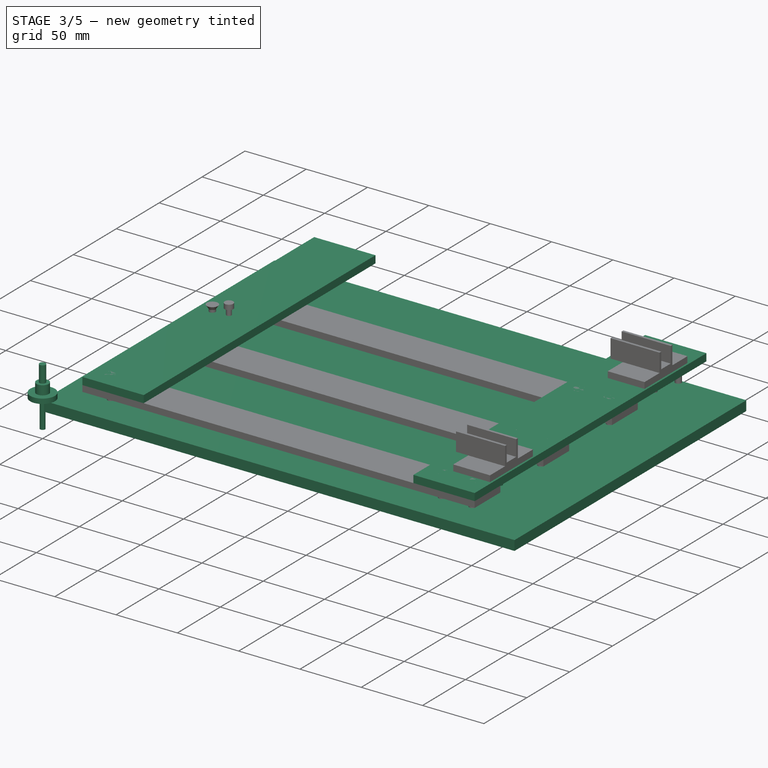
[diagram: stage 3 of 5 — iso view after this stage's code; geometry added in this stage tinted green]
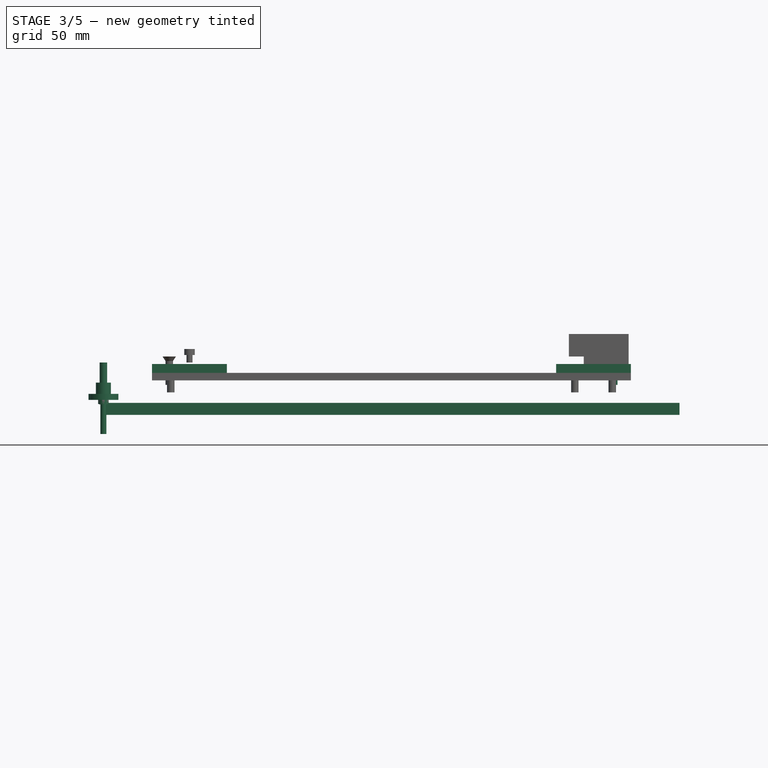
[diagram: stage 3 of 5 — front view after this stage's code; geometry added in this stage tinted green]
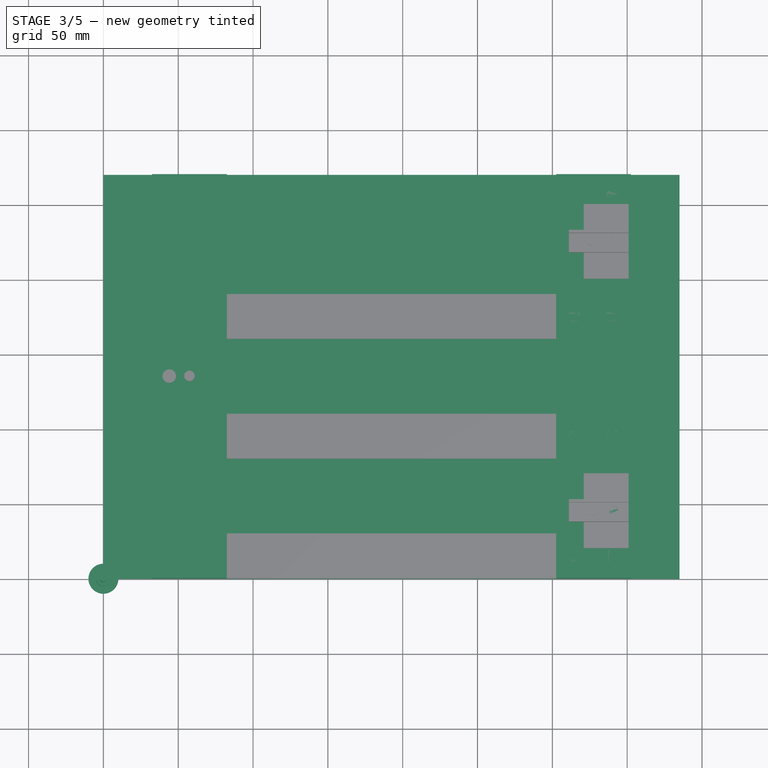
[diagram: stage 3 of 5 — top view after this stage's code; geometry added in this stage tinted green]
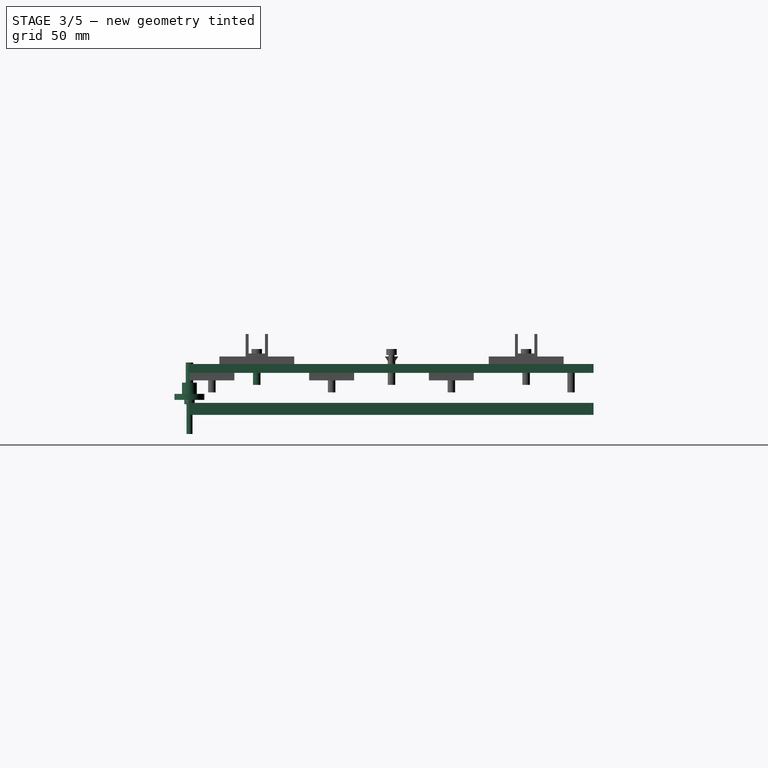
[diagram: stage 3 of 5 — right view after this stage's code; geometry added in this stage tinted green]
FEATURE [Part::Box] Box  label="Grundplatte_385x270x8"
  Height = 8
  Length = 385
  Placement = pos=(0,0,-10) rot=(0,0,1;0rad)
  Width = 270
FEATURE [App::DocumentObjectGroup] Group001  label="Grundplatte"
  Group = -> [Pocket002005]
FEATURE [Part::Box] Box004  label="Aluplatte_oben_270x50x6_li"
  Height = 6
  Length = 50
  Placement = pos=(32.5,0,18) rot=(0,0,1;0rad)
  Width = 270
FEATURE [Part::Box] Box010  label="Block_re_1"
  Height = 5
  Length = 30
  Placement = pos=(321,20,24) rot=(0,0,1;0rad)
  Width = 50
FEATURE [Part::Box] Box011  label="Block_re_3"
  Height = 5
  Length = 30
  Placement = pos=(321,200,24) rot=(0,0,1;0rad)
  Width = 50
FEATURE [App::DocumentObjectGroup] Group002  label="Aluplatte-links"
  Group = -> [Pocket002007]
FEATURE [Part::Box] Box013  label="Aluplatte_oben_270x50x6_re"
  Height = 6
  Length = 50
  Placement = pos=(302.5,0,18) rot=(0,0,1;0rad)
  Width = 270
FEATURE [App::DocumentObjectGroup] Group  label="Heizbett + Glasplatte"
  Group = -> [Pocket,Pocket002006,Box017,Box018]
FEATURE [Part::Cylinder] Cylinder002
  Angle = 360
  Height = 4
  Radius = 10
FEATURE [Part::Cylinder] Cylinder003
  Angle = 360
  Height = 11.5
  Radius = 2.5
FEATURE [App::DocumentObjectGroup] Group031  label="Zylinderkopf M5x18 ISK"
  Group = -> [Pocket002018004,Fusion001018017018]
FEATURE [App::DocumentObjectGroup] Group032  label="Senkkopfschrauben"
  Group = -> [Fusion001018,Fusion001,Fusion,Fusion001018017]
FEATURE [Part::Cylinder] Cylinder018
  Angle = 360
  Height = 5
  Radius = 4.36
  expr: Radius = 8.720000000000001 / 2
FEATURE [Part::Cylinder] Cylinder019
  Angle = 360
  Height = 25
  Radius = 2.5
FEATURE [App::DocumentObjectGroup] Group036  label="Zylinderkopf M5x20 ISK"
  Group = -> [Pocket002018004005,Fusion001018017020]
FEATURE [App::DocumentObjectGroup] Group037  label="Grundplatte001"
  Group = -> [Box]
FEATURE [App::DocumentObjectGroup] Group038  label="Druckbett"
  Group = -> [Box013,Box004]
FEATURE [App::DocumentObjectGroup] Group039  label="Glasfixierung"
  Group = -> [Pad005,Box012,Box010,Box011]
FEATURE [App::DocumentObjectGroup] Group026  label="Alu-Rohmaterialien"
  Group = -> [Group037,Group038,Group039,Box006]
FEATURE [Part::Cylinder] Cylinder022
  Angle = 360
  Height = 11.5
  Radius = 5
FEATURE [Part::MultiFuse] Fusion001018017021
  Shapes = -> [Cylinder002,Cylinder022]
FEATURE [Part::Cut] Cut  label="Rändelmutter M5 hohe Form (DIN466)"
  Base = -> Fusion001018017021
  Tool = -> Cylinder003
FEATURE [Part::Feature] Cut007  label="Rändelmutter M5 hohe Form (DIN466)001"
  Placement = pos=(327.5,45,-21.6) rot=(0,0,1;0rad)
  shape: bbox 20 x 20 x 11.5 mm, 7 faces (baked)
FEATURE [Part::Feature] Cut008  label="Rändelmutter M5 hohe Form (DIN466)002"
  Placement = pos=(327.5,225,-21.6) rot=(0,0,1;0rad)
  shape: bbox 20 x 20 x 11.5 mm, 7 faces (baked)
FEATURE [Part::Feature] Cut009  label="Rändelmutter M5 hohe Form (DIN466)003"
  Placement = pos=(57.5,135,-21.6) rot=(0,0,1;0rad)
  shape: bbox 20 x 20 x 11.5 mm, 7 faces (baked)
FEATURE [App::DocumentObjectGroup] Group019  label="Betteinstellung"
  Group = -> [Sweep002,Sweep003,Sweep004,Cut007,Cut008,Cut009]
FEATURE [App::DocumentObjectGroup] Group008  label="Verbindung+Justage"
  Group = -> [Fusion_solid002,Fusion_solid,Fusion_solid001,Group019]
FEATURE [Part::Cylinder] Cylinder023
  Angle = 360
  Height = 2.8
  Radius = 3.5
  expr: Radius = 3.5
FEATURE [Part::Cylinder] Cylinder024
  Angle = 360
  Height = 22.8
  Radius = 2
FEATURE [Part::MultiFuse] Fusion001018017022  label="Fusion001018017026"
  Placement = pos=(0,0,0) rot=(0,1,0;3.14159rad)
  Shapes = -> [Cylinder023,Cylinder024]
FEATURE [Sketcher::SketchObject] Sketch023
  Placement = pos=(0,0,0) rot=(0,0,1;3.14159rad)
  Support = -> Fusion001018017022 [Face5]
  sketch-geometry (7):
    g0: LineSegment StartX=1.5 StartY=-0.866025 StartZ=0 EndX=1.5 EndY=0.866025 EndZ=0
    g1: LineSegment StartX=1.5 StartY=0.866025 StartZ=0 EndX=-1e-12 EndY=1.73205 EndZ=0
    g2: LineSegment StartX=-1e-12 StartY=1.73205 StartZ=0 EndX=-1.5 EndY=0.866025 EndZ=0
    g3: LineSegment StartX=-1.5 StartY=0.866025 StartZ=0 EndX=-1.5 EndY=-0.866025 EndZ=0
    g4: LineSegment StartX=-1.5 StartY=-0.866025 StartZ=0 EndX=-1e-12 EndY=-1.73205 EndZ=0
    g5: LineSegment StartX=-1e-12 StartY=-1.73205 StartZ=0 EndX=1.5 EndY=-0.866025 EndZ=0
    g6: Circle [constr] CenterX=0 CenterY=0 CenterZ=0 NormalX=0 NormalY=0 NormalZ=1 Radius=1.73205
  constraints (16):
    c: Coincident(g0,g1)
    c: Coincident(g1,g2)
    c: Coincident(g2,g3)
    c: Coincident(g3,g4)
    c: Coincident(g4,g5)
    c: Coincident(g5,g0)
    c: Equal(g0, g1-g5) x5
    c: PointOnObject(g0,g6)
    c: PointOnObject(g1,g6)
    c: PointOnObject(g2,g6)
    c: PointOnObject(g3,g6)
    c: PointOnObject(g4,g6)
    c: PointOnObject(g5,g6)
    c: Coincident(g6,g-1)
    c: Vertical(g3)
    c: DistanceX(g2,g0) = 3
FEATURE [PartDesign::Pocket] Pocket002018004005005  label="Zylinderkopfschraube M4x20 ISK"
  Length = 2.5
  Placement = pos=(0,0,0) rot=(0,1,0;3.14159rad)
  Sketch = -> Sketch023
  Type = 0
FEATURE [App::DocumentObjectGroup] Group040  label="Zylinderkopf M4x20 ISK"
  Group = -> [Pocket002018004005005,Fusion001018017022]
FEATURE [Part::Feature] Pocket002018004005005001  label="Zylinderkopfschraube M4x20 ISK001"
  Placement = pos=(6.9,44.4,6.8) rot=(0,1,0;3.14159rad)
  shape: bbox 7 x 7 x 22.8 mm, 13 faces (baked)
FEATURE [Part::Feature] Pocket002018004005005002  label="Zylinderkopfschraube M4x20 ISK002"
  Placement = pos=(7,65.5,6.8) rot=(0,1,0;3.14159rad)
  shape: bbox 7 x 7 x 22.8 mm, 13 faces (baked)
FEATURE [Part::Feature] Pocket002018004005005003  label="Zylinderkopfschraube M4x20 ISK003"
  Placement = pos=(28.1,44.4,6.8) rot=(0,1,0;3.14159rad)
  shape: bbox 7 x 7 x 22.8 mm, 13 faces (baked)
FEATURE [Part::Feature] Pocket002018004005005004  label="Zylinderkopfschraube M4x20 ISK004"
  Placement = pos=(28.1,65.6,6.8) rot=(0,1,0;3.14159rad)
  shape: bbox 7 x 7 x 22.8 mm, 13 faces (baked)
FEATURE [Part::Feature] Pocket002018004005005005  label="Zylinderkopfschraube M4x20 ISK005"
  Placement = pos=(6.9,204.4,6.8) rot=(0,1,0;3.14159rad)
  shape: bbox 7 x 7 x 22.8 mm, 13 faces (baked)
FEATURE [Part::Feature] Pocket002018004005005006  label="Zylinderkopfschraube M4x20 ISK006"
  Placement = pos=(28.1,225.6,6.8) rot=(0,1,0;3.14159rad)
  shape: bbox 7 x 7 x 22.8 mm, 13 faces (baked)
FEATURE [Part::Feature] Pocket002018004005005007  label="Zylinderkopfschraube M4x20 ISK007"
  Placement = pos=(28.1,204.4,6.8) rot=(0,1,0;3.14159rad)
  shape: bbox 7 x 7 x 22.8 mm, 13 faces (baked)
FEATURE [Part::Feature] Pocket002018004005005008  label="Zylinderkopfschraube M4x20 ISK008"
  Placement = pos=(7,225.5,6.8) rot=(0,1,0;3.14159rad)
  shape: bbox 7 x 7 x 22.8 mm, 13 faces (baked)
FEATURE [Part::Feature] Pocket002018004005005009  label="Zylinderkopfschraube M4x20 ISK009"
  Placement = pos=(356.9,44.4,6.8) rot=(0,1,0;3.14159rad)
  shape: bbox 7 x 7 x 22.8 mm, 13 faces (baked)
FEATURE [Part::Feature] Pocket002018004005005010  label="Zylinderkopfschraube M4x20 ISK010"
  Placement = pos=(378.1,65.6,6.8) rot=(0,1,0;3.14159rad)
  shape: bbox 7 x 7 x 22.8 mm, 13 faces (baked)
FEATURE [Part::Feature] Pocket002018004005005011  label="Zylinderkopfschraube M4x20 ISK011"
  Placement = pos=(378.1,44.4,6.8) rot=(0,1,0;3.14159rad)
  shape: bbox 7 x 7 x 22.8 mm, 13 faces (baked)
FEATURE [Part::Feature] Pocket002018004005005012  label="Zylinderkopfschraube M4x20 ISK012"
  Placement = pos=(356.9,204.4,6.8) rot=(0,1,0;3.14159rad)
  shape: bbox 7 x 7 x 22.8 mm, 13 faces (baked)
FEATURE [Part::Feature] Pocket002018004005005013  label="Zylinderkopfschraube M4x20 ISK013"
  Placement = pos=(378.1,204.4,6.8) rot=(0,1,0;3.14159rad)
  shape: bbox 7 x 7 x 22.8 mm, 13 faces (baked)
FEATURE [Part::Feature] Pocket002018004005005014  label="Zylinderkopfschraube M4x20 ISK014"
  Placement = pos=(378.1,225.6,6.8) rot=(0,1,0;3.14159rad)
  shape: bbox 7 x 7 x 22.8 mm, 13 faces (baked)
FEATURE [Part::Feature] Pocket002018004005005015  label="Zylinderkopfschraube M4x20 ISK015"
  Placement = pos=(357,65.5,6.8) rot=(0,1,0;3.14159rad)
  shape: bbox 7 x 7 x 22.8 mm, 13 faces (baked)
FEATURE [Part::Feature] Pocket002018004005005016  label="Zylinderkopfschraube M4x20 ISK016"
  Placement = pos=(357,225.5,6.8) rot=(0,1,0;3.14159rad)
  shape: bbox 7 x 7 x 22.8 mm, 13 faces (baked)
FEATURE [Sketcher::SketchObject] Sketch024
  sketch-geometry (8):
    g0: LineSegment StartX=3.5 StartY=-2.02073 StartZ=0 EndX=3.5 EndY=2.02073 EndZ=0
    g1: LineSegment StartX=3.5 StartY=2.02073 StartZ=0 EndX=0 EndY=4.04145 EndZ=0
    g2: LineSegment StartX=0 StartY=4.04145 StartZ=0 EndX=-3.5 EndY=2.02073 EndZ=0
    g3: LineSegment StartX=-3.5 StartY=2.02073 StartZ=0 EndX=-3.5 EndY=-2.02073 EndZ=0
    g4: LineSegment StartX=-3.5 StartY=-2.02073 StartZ=0 EndX=0 EndY=-4.04145 EndZ=0
    g5: LineSegment StartX=0 StartY=-4.04145 StartZ=0 EndX=3.5 EndY=-2.02073 EndZ=0
    g6: Circle [constr] CenterX=0 CenterY=0 CenterZ=0 NormalX=0 NormalY=0 NormalZ=1 Radius=4.04145
    g7: Circle CenterX=0.047289 CenterY=-0.004604 CenterZ=0 NormalX=0 NormalY=0 NormalZ=1 Radius=2
  constraints (17):
    c: Coincident(g0,g1)
    c: Coincident(g1,g2)
    c: Coincident(g2,g3)
    c: Coincident(g3,g4)
    c: Coincident(g4,g5)
    c: Coincident(g5,g0)
    c: Equal(g0, g1-g5) x5
    c: PointOnObject(g0,g6)
    c: PointOnObject(g1,g6)
    c: PointOnObject(g2,g6)
    c: PointOnObject(g3,g6)
    c: PointOnObject(g4,g6)
    c: PointOnObject(g5,g6)
    c: Coincident(g6,g-1)
    c: Vertical(g3)
    c: DistanceX(g2,g0) = 7
    c: Radius(g7) = 2
FEATURE [PartDesign::Pad] Pad006020  label="Mutter M4 (ISO 4032) "
  Length = 3.2
  Length2 = 100
  Sketch = -> Sketch024
  Type = 0
FEATURE [Part::Feature] Pad006020001  label="Mutter M4 (ISO 4032) 001"
  Placement = pos=(6.9,44.4,-10.2) rot=(0,1,0;3.14159rad)
  shape: bbox 7 x 8.083 x 3.2 mm, 9 faces (baked)
FEATURE [Part::Feature] Pad006020002  label="Mutter M4 (ISO 4032) 002"
  Placement = pos=(7,65.5,-10.2) rot=(0,1,0;3.14159rad)
  shape: bbox 7 x 8.083 x 3.2 mm, 9 faces (baked)
FEATURE [Part::Feature] Pad006020003  label="Mutter M4 (ISO 4032) 003"
  Placement = pos=(28.1,44.4,-10.2) rot=(0,1,0;3.14159rad)
  shape: bbox 7 x 8.083 x 3.2 mm, 9 faces (baked)
FEATURE [Part::Feature] Pad006020004  label="Mutter M4 (ISO 4032) 004"
  Placement = pos=(28.1,65.6,-10.2) rot=(0,1,0;3.14159rad)
  shape: bbox 7 x 8.083 x 3.2 mm, 9 faces (baked)
FEATURE [Part::Feature] Pad006020005  label="Mutter M4 (ISO 4032) 005"
  Placement = pos=(6.9,204.4,-10.2) rot=(0,1,0;3.14159rad)
  shape: bbox 7 x 8.083 x 3.2 mm, 9 faces (baked)
FEATURE [Part::Feature] Pad006020006  label="Mutter M4 (ISO 4032) 006"
  Placement = pos=(28.1,225.6,-10.2) rot=(0,1,0;3.14159rad)
  shape: bbox 7 x 8.083 x 3.2 mm, 9 faces (baked)
FEATURE [Part::Feature] Pad006020007  label="Mutter M4 (ISO 4032) 007"
  Placement = pos=(28.1,204.4,-10.2) rot=(0,1,0;3.14159rad)
  shape: bbox 7 x 8.083 x 3.2 mm, 9 faces (baked)
FEATURE [Part::Feature] Pad006020008  label="Mutter M4 (ISO 4032) 008"
  Placement = pos=(7,225.5,-10.2) rot=(0,1,0;3.14159rad)
  shape: bbox 7 x 8.083 x 3.2 mm, 9 faces (baked)
FEATURE [Part::Feature] Pad006020009  label="Mutter M4 (ISO 4032) 009"
  Placement = pos=(356.9,44.4,-10.2) rot=(0,1,0;3.14159rad)
  shape: bbox 7 x 8.083 x 3.2 mm, 9 faces (baked)
FEATURE [Part::Feature] Pad006020010  label="Mutter M4 (ISO 4032) 010"
  Placement = pos=(378.1,65.6,-10.2) rot=(0,1,0;3.14159rad)
  shape: bbox 7 x 8.083 x 3.2 mm, 9 faces (baked)
FEATURE [Part::Feature] Pad006020011  label="Mutter M4 (ISO 4032) 011"
  Placement = pos=(378.1,44.4,-10.2) rot=(0,1,0;3.14159rad)
  shape: bbox 7 x 8.083 x 3.2 mm, 9 faces (baked)
FEATURE [Part::Feature] Pad006020012  label="Mutter M4 (ISO 4032) 012"
  Placement = pos=(356.9,204.4,-10.2) rot=(0,1,0;3.14159rad)
  shape: bbox 7 x 8.083 x 3.2 mm, 9 faces (baked)
FEATURE [Part::Feature] Pad006020013  label="Mutter M4 (ISO 4032) 013"
  Placement = pos=(378.1,204.4,-10.2) rot=(0,1,0;3.14159rad)
  shape: bbox 7 x 8.083 x 3.2 mm, 9 faces (baked)
FEATURE [Part::Feature] Pad006020014  label="Mutter M4 (ISO 4032) 014"
  Placement = pos=(378.1,225.6,-10.2) rot=(0,1,0;3.14159rad)
  shape: bbox 7 x 8.083 x 3.2 mm, 9 faces (baked)
FEATURE [Part::Feature] Pad006020015  label="Mutter M4 (ISO 4032) 015"
  Placement = pos=(357,65.5,-10.2) rot=(0,1,0;3.14159rad)
  shape: bbox 7 x 8.083 x 3.2 mm, 9 faces (baked)
FEATURE [Part::Feature] Pad006020016  label="Mutter M4 (ISO 4032) 016"
  Placement = pos=(357,225.5,-10.2) rot=(0,1,0;3.14159rad)
  shape: bbox 7 x 8.083 x 3.2 mm, 9 faces (baked)
FEATURE [Part::Feature] Pad006020017  label="Mutter M5 (ISO 4032)001"
  Placement = pos=(45,15,12.9) rot=(0,1,0;3.14159rad)
  shape: bbox 8 x 8 x 4.7 mm, 11 faces (baked)
FEATURE [Part::Feature] Pad006020018  label="Mutter M5 (ISO 4032)002"
  Placement = pos=(70,15,12.9) rot=(0,1,0;3.14159rad)
  shape: bbox 8 x 8 x 4.7 mm, 11 faces (baked)
FEATURE [Part::Feature] Pad006020019  label="Mutter M5 (ISO 4032)003"
  Placement = pos=(45,95,12.9) rot=(0,1,0;3.14159rad)
  shape: bbox 8 x 8 x 4.7 mm, 11 faces (baked)
FEATURE [Part::Feature] Pad006020020  label="Mutter M5 (ISO 4032)004"
  Placement = pos=(70,95,12.9) rot=(0,1,0;3.14159rad)
  shape: bbox 8 x 8 x 4.7 mm, 11 faces (baked)
FEATURE [Part::Feature] Pad006020021  label="Mutter M5 (ISO 4032)005"
  Placement = pos=(45,175,12.9) rot=(0,1,0;3.14159rad)
  shape: bbox 8 x 8 x 4.7 mm, 11 faces (baked)
FEATURE [Part::Feature] Pad006020022  label="Mutter M5 (ISO 4032)006"
  Placement = pos=(70,175,12.9) rot=(0,1,0;3.14159rad)
  shape: bbox 8 x 8 x 4.7 mm, 11 faces (baked)
FEATURE [Part::Feature] Pad006020023  label="Mutter M5 (ISO 4032)007"
  Placement = pos=(45,255,12.9) rot=(0,1,0;3.14159rad)
  shape: bbox 8 x 8 x 4.7 mm, 11 faces (baked)
FEATURE [Part::Feature] Pad006020024  label="Mutter M5 (ISO 4032)008"
  Placement = pos=(70,255,12.9) rot=(0,1,0;3.14159rad)
  shape: bbox 8 x 8 x 4.7 mm, 11 faces (baked)
FEATURE [App::DocumentObjectGroup] Group024  label="Muttern_li"
  Group = -> [Pad006020017,Pad006020018,Pad006020019,Pad006020020,Pad006020021,Pad006020022,Pad006020023,Pad006020024]
FEATURE [Part::Feature] Pad006020025  label="Mutter M5 (ISO 4032)009"
  Placement = pos=(315,15,13) rot=(0,1,0;3.14159rad)
  shape: bbox 8 x 8 x 4.7 mm, 11 faces (baked)
FEATURE [Part::Feature] Pad006020026  label="Mutter M5 (ISO 4032)010"
  Placement = pos=(340,15,13) rot=(0,1,0;3.14159rad)
  shape: bbox 8 x 8 x 4.7 mm, 11 faces (baked)
FEATURE [Part::Feature] Pad006020027  label="Mutter M5 (ISO 4032)011"
  Placement = pos=(315,95,13) rot=(0,1,0;3.14159rad)
  shape: bbox 8 x 8 x 4.7 mm, 11 faces (baked)
FEATURE [Part::Feature] Pad006020028  label="Mutter M5 (ISO 4032)012"
  Placement = pos=(340,95,13) rot=(0,1,0;3.14159rad)
  shape: bbox 8 x 8 x 4.7 mm, 11 faces (baked)
FEATURE [Part::Feature] Pad006020029  label="Mutter M5 (ISO 4032)013"
  Placement = pos=(315,175,13) rot=(0,1,0;3.14159rad)
  shape: bbox 8 x 8 x 4.7 mm, 11 faces (baked)
FEATURE [Part::Feature] Pad006020030  label="Mutter M5 (ISO 4032)014"
  Placement = pos=(340,175,13) rot=(0,1,0;3.14159rad)
  shape: bbox 8 x 8 x 4.7 mm, 11 faces (baked)
FEATURE [Part::Feature] Pad006020031  label="Mutter M5 (ISO 4032)015"
  Placement = pos=(315,255,13) rot=(0,1,0;3.14159rad)
  shape: bbox 8 x 8 x 4.7 mm, 11 faces (baked)
FEATURE [Part::Feature] Pad006020032  label="Mutter M5 (ISO 4032)016"
  Placement = pos=(340,255,13) rot=(0,1,0;3.14159rad)
  shape: bbox 8 x 8 x 4.7 mm, 11 faces (baked)
FEATURE [App::DocumentObjectGroup] Group021  label="Muttern_re"
  Group = -> [Pad006020025,Pad006020026,Pad006020027,Pad006020028,Pad006020029,Pad006020030,Pad006020031,Pad006020032]
FEATURE [Part::Feature] Pad006020033  label="Mutter M5 (ISO 4032)017"
  Placement = pos=(44,135,18) rot=(1,0,0;3.14159rad)
  shape: bbox 8 x 8 x 4.7 mm, 11 faces (baked)
FEATURE [Part::Feature] Pad006020034  label="Mutter M5 (ISO 4032)018"
  Placement = pos=(341,45,18) rot=(1,0,0;3.14159rad)
  shape: bbox 8 x 8 x 4.7 mm, 11 faces (baked)
FEATURE [Part::Feature] Pad006020035  label="Mutter M5 (ISO 4032)019"
  Placement = pos=(341,225,18) rot=(1,0,0;3.14159rad)
  shape: bbox 8 x 8 x 4.7 mm, 11 faces (baked)
FEATURE [App::DocumentObjectGroup] Group044  label="LMK10UU-Verschraubung"
  Group = -> [Pocket002018004005005001,Pocket002018004005005002,Pocket002018004005005003,Pocket002018004005005004,Pocket002018004005005005,Pocket002018004005005006,Pocket002018004005005007,Pocket002018004005005008,Pocket002018004005005009,Pocket002018004005005010,Pocket002018004005005011,Pocket002018004005005012,Pocket002018004005005013,Pocket002018004005005014,Pocket002018004005005015,Pocket002018004005005016]
FEATURE [App::DocumentObjectGroup] Group045  label="LMK10UU-Verschraubung001"
  Group = -> [Pad006020001,Pad006020002,Pad006020003,Pad006020004,Pad006020005,Pad006020006,Pad006020007,Pad006020008,Pad006020009,Pad006020010,Pad006020011,Pad006020012,Pad006020013,Pad006020014,Pad006020015,Pad006020016]
FEATURE [Part::Cylinder] Cylinder025
  Angle = 360
  Height = 3
  Radius = 2.84
  expr: Radius = 5.68 / 2
FEATURE [Part::Cylinder] Cylinder026
  Angle = 360
  Height = 19
  Radius = 1.5
FEATURE [Part::MultiFuse] Fusion001018017023  label="Fusion001018017027"
  Placement = pos=(0,0,0) rot=(0,1,0;3.14159rad)
  Shapes = -> [Cylinder025,Cylinder026]
FEATURE [Sketcher::SketchObject] Sketch025
  Placement = pos=(0,0,0) rot=(0,0,1;3.14159rad)
  Support = -> Fusion001018017023 [Face5]
  sketch-geometry (7):
    g0: LineSegment StartX=1.25 StartY=-0.721688 StartZ=0 EndX=1.25 EndY=0.721688 EndZ=0
    g1: LineSegment StartX=1.25 StartY=0.721688 StartZ=0 EndX=-1e-12 EndY=1.44338 EndZ=0
    g2: LineSegment StartX=-1e-12 StartY=1.44338 StartZ=0 EndX=-1.25 EndY=0.721688 EndZ=0
    g3: LineSegment StartX=-1.25 StartY=0.721688 StartZ=0 EndX=-1.25 EndY=-0.721688 EndZ=0
    g4: LineSegment StartX=-1.25 StartY=-0.721688 StartZ=0 EndX=-1e-12 EndY=-1.44338 EndZ=0
    g5: LineSegment StartX=-1e-12 StartY=-1.44338 StartZ=0 EndX=1.25 EndY=-0.721688 EndZ=0
    g6: Circle [constr] CenterX=0 CenterY=0 CenterZ=0 NormalX=0 NormalY=0 NormalZ=1 Radius=1.44338
  constraints (16):
    c: Coincident(g0,g1)
    c: Coincident(g1,g2)
    c: Coincident(g2,g3)
    c: Coincident(g3,g4)
    c: Coincident(g4,g5)
    c: Coincident(g5,g0)
    c: Equal(g0, g1-g5) x5
    c: PointOnObject(g0,g6)
    c: PointOnObject(g1,g6)
    c: PointOnObject(g2,g6)
    c: PointOnObject(g3,g6)
    c: PointOnObject(g4,g6)
    c: PointOnObject(g5,g6)
    c: Coincident(g6,g-1)
    c: Vertical(g3)
    c: DistanceX(g2,g0) = 2.5
FEATURE [PartDesign::Pocket] Pocket002018004005005017  label="Zylinderkopfschraube M3x16 (DIN912)"
  Length = 2
  Placement = pos=(0,0,0) rot=(0,1,0;3.14159rad)
  Sketch = -> Sketch025
  Type = 0
FEATURE [Part::FeaturePython] Clone035  label="M5x16_Senkkopf019"  # Draft clone (typed FeaturePython)
  Objects = -> [Clone032]
  Placement = pos=(341,45,26) rot=(-1,0,0;3.14159rad)
  Scale = (1,1,1)
FEATURE [App::DocumentObjectGroup] Group030  label="Verschraubung Abstandsblöcke-Platte-U-Profil"
  Group = -> [Pad006020033,Pad006020034,Pad006020035,Clone033,Clone034,Clone035]
FEATURE [App::DocumentObjectGroup] Group015  label="Verschraubung"
  Group = -> [Group013,Group014,Group030]
FEATURE [App::DocumentObjectGroup] Group016  label="Aluplattenkonstruktion"
  Group = -> [Group002,Group003,Group004,Group015]
FEATURE [App::DocumentObjectGroup] Group007  label="Druckplatte"
  Group = -> [Group005,Group,Group016]
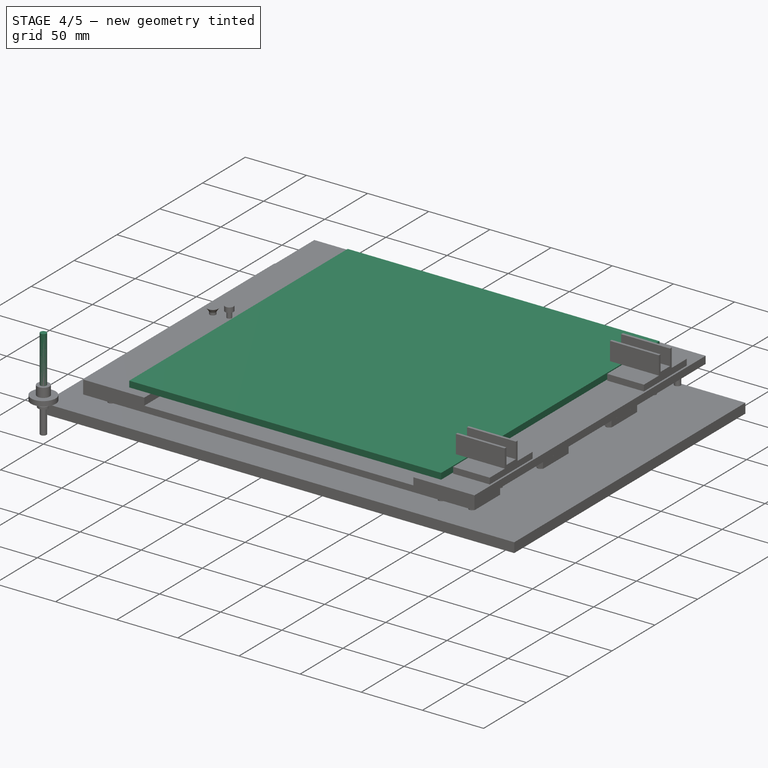
[diagram: stage 4 of 5 — iso view after this stage's code; geometry added in this stage tinted green]
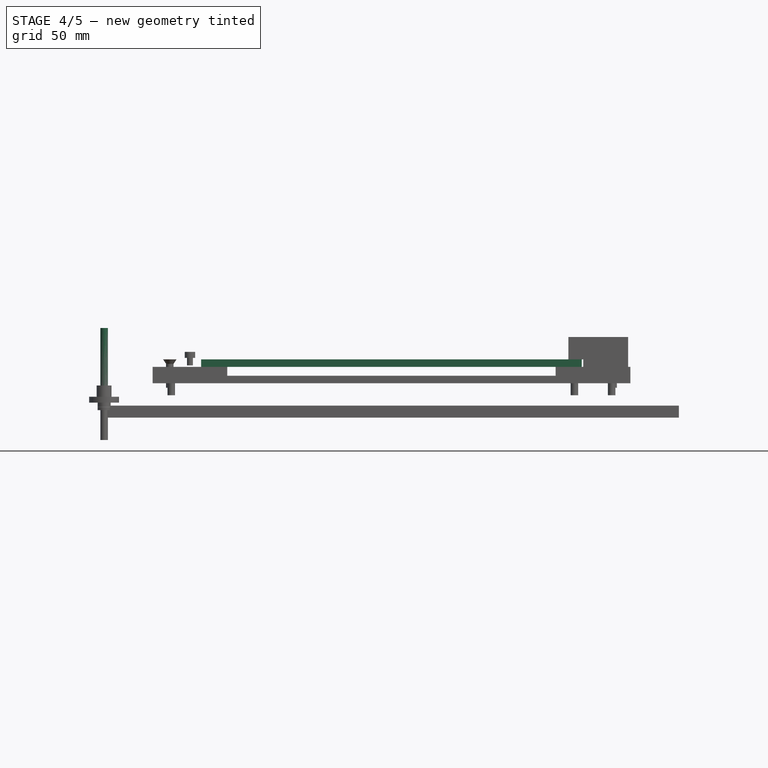
[diagram: stage 4 of 5 — front view after this stage's code; geometry added in this stage tinted green]
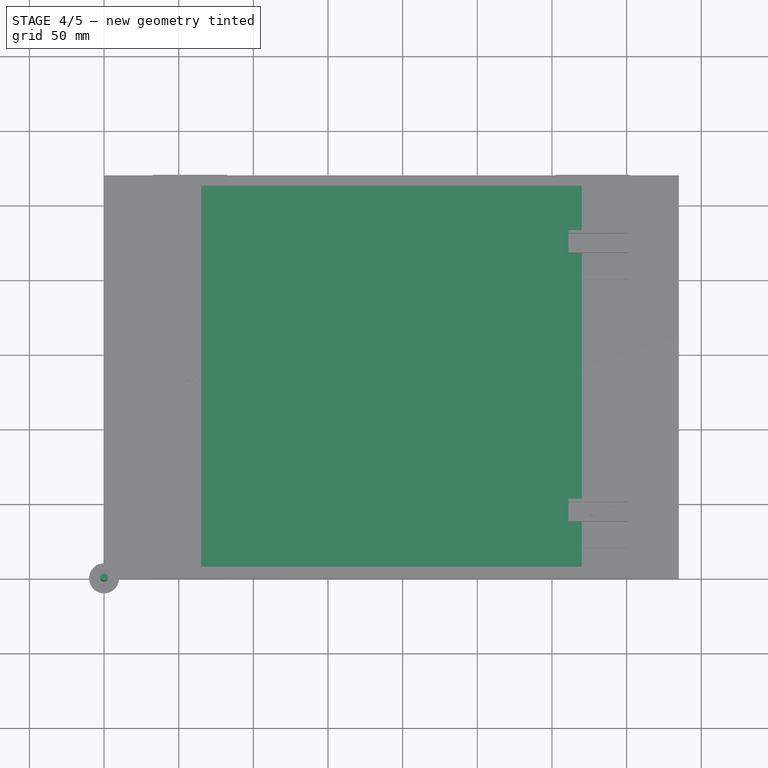
[diagram: stage 4 of 5 — top view after this stage's code; geometry added in this stage tinted green]
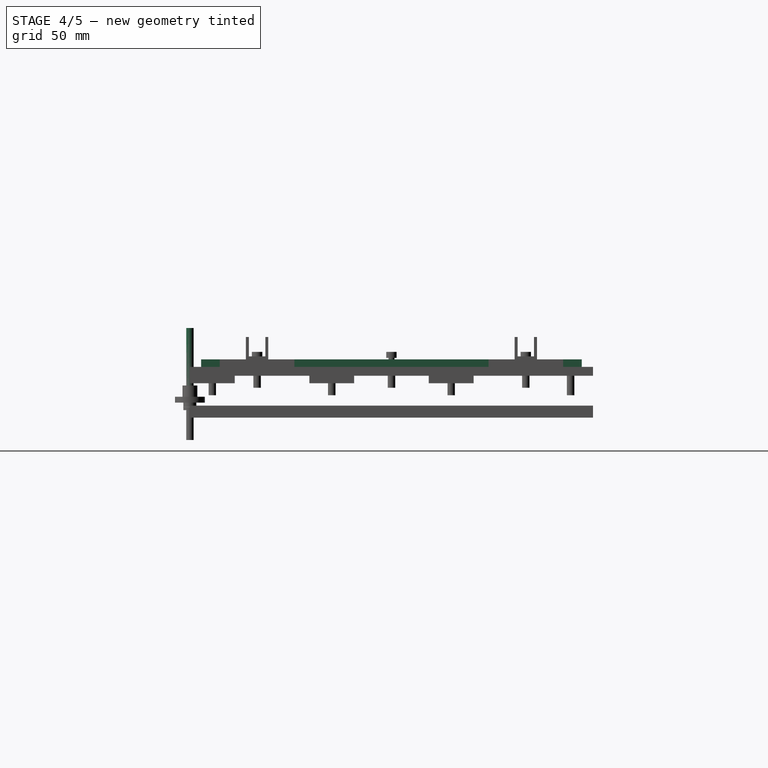
[diagram: stage 4 of 5 — right view after this stage's code; geometry added in this stage tinted green]
FEATURE [Part::Feature] Pocket002001  label="LMK10UU001"
  Placement = pos=(17.5,55,13) rot=(0,0,1;0rad)
  shape: bbox 30 x 30 x 65 mm, 13 faces (baked)
FEATURE [Part::Feature] Pocket002002  label="LMK10UU002"
  Placement = pos=(17.5,215,13) rot=(0,0,1;0rad)
  shape: bbox 30 x 30 x 65 mm, 13 faces (baked)
FEATURE [Part::Feature] Pocket002003  label="LMK10UU003"
  Placement = pos=(367.5,55,13) rot=(0,0,1;0rad)
  shape: bbox 30 x 30 x 65 mm, 13 faces (baked)
FEATURE [Part::Feature] Pocket002004  label="LMK10UU004"
  Placement = pos=(367.5,215,13) rot=(0,0,1;0rad)
  shape: bbox 30 x 30 x 65 mm, 13 faces (baked)
FEATURE [Part::Feature] Cut001  label="Gewindemutter"
  Placement = pos=(17.5,135,-2) rot=(0,0,1;0rad)
  shape: bbox 22 x 22 x 15 mm, 12 faces (baked)
FEATURE [Part::Box] Box002  label="CHECK Glass"
  Height = 5
  Length = 255
  Placement = pos=(65,7.5,24) rot=(0,0,1;0rad)
  Width = 255
FEATURE [App::DocumentObjectGroup] Group003  label="Aluplatte-rechts"
  Group = -> [Pocket002008]
FEATURE [Part::Cylinder] Cylinder
  Angle = 360
  Height = 50
  Radius = 2.5
FEATURE [Part::Cone] Cone
  Angle = 360
  Height = 3
  Placement = pos=(0,0,-3) rot=(0,0,1;0rad)
  Radius1 = 4.5
  Radius2 = 2.5
FEATURE [Part::MultiFuse] Fusion  label="M5x50_Senkkopf"
  Shapes = -> [Cylinder,Cone]
FEATURE [Part::Feature] Fusion_solid  label="M5x50_Senkkopf_o_re1"
  Placement = pos=(327.5,45,21) rot=(0,1,0;3.14159rad)
  shape: bbox 9 x 9 x 53 mm, 4 faces (baked)
FEATURE [Part::Feature] Fusion_solid001  label="M5x50_Senkkopf_o_re2"
  Placement = pos=(327.5,225,21) rot=(0,1,0;3.14159rad)
  shape: bbox 9 x 9 x 53 mm, 4 faces (baked)
FEATURE [Part::Feature] Fusion_solid002  label="M5x50_Senkkopf_o_li"
  Placement = pos=(57.5,135,21) rot=(0,1,0;3.14159rad)
  shape: bbox 9 x 9 x 53 mm, 4 faces (baked)
FEATURE [App::DocumentObjectGroup] Group010  label="Lagerung"
  Group = -> [Pocket002001,Pocket002002,Pocket002003,Pocket002004,Cut001,Cut002]
FEATURE [Part::Cylinder] Cylinder001
  Angle = 360
  Height = 10
  Radius = 2.5
FEATURE [Part::Cone] Cone001
  Angle = 360
  Height = 3
  Placement = pos=(0,0,-3) rot=(0,0,1;0rad)
  Radius1 = 4.5
  Radius2 = 2.5
FEATURE [Part::MultiFuse] Fusion001  label="M5x10_Senkkopf"
  Shapes = -> [Cylinder001,Cone001]
FEATURE [App::DocumentObjectGroup] Group020  label="Führungen"
  Group = -> [Cylinder004,Cylinder005,Cylinder006,Cylinder007,Cylinder008,Cylinder009]
FEATURE [Part::Cylinder] Cylinder010
  Angle = 360
  Height = 12
  Radius = 2.5
FEATURE [Part::Cone] Cone002
  Angle = 360
  Height = 3
  Placement = pos=(0,0,-3) rot=(0,0,1;0rad)
  Radius1 = 4.5
  Radius2 = 2.5
FEATURE [Part::MultiFuse] Fusion001018  label="M5x12_Senkkopf"
  Placement = pos=(45,15,21) rot=(0,1,0;3.14159rad)
  Shapes = -> [Cylinder010,Cone002]
FEATURE [Sketcher::SketchObject] Sketch018
  sketch-geometry (10):
    g0: LineSegment StartX=1.65685 StartY=-4 StartZ=0 EndX=4 EndY=-1.65685 EndZ=0
    g1: LineSegment StartX=4 StartY=-1.65685 StartZ=0 EndX=4 EndY=1.65685 EndZ=0
    g2: LineSegment StartX=4 StartY=1.65685 StartZ=0 EndX=1.65685 EndY=4 EndZ=0
    g3: LineSegment StartX=1.65685 StartY=4 StartZ=0 EndX=-1.65685 EndY=4 EndZ=0
    g4: LineSegment StartX=-1.65685 StartY=4 StartZ=0 EndX=-4 EndY=1.65685 EndZ=0
    g5: LineSegment StartX=-4 StartY=1.65685 StartZ=0 EndX=-4 EndY=-1.65685 EndZ=0
    g6: LineSegment StartX=-4 StartY=-1.65685 StartZ=0 EndX=-1.65685 EndY=-4 EndZ=0
    g7: LineSegment StartX=-1.65685 StartY=-4 StartZ=0 EndX=1.65685 EndY=-4 EndZ=0
    g8: Circle [constr] CenterX=0 CenterY=0 CenterZ=0 NormalX=0 NormalY=0 NormalZ=1 Radius=4.32957
    g9: Circle CenterX=0 CenterY=0 CenterZ=0 NormalX=0 NormalY=0 NormalZ=1 Radius=2.5
  constraints (22):
    c: Coincident(g0,g1)
    c: Coincident(g1,g2)
    c: Coincident(g2,g3)
    c: Coincident(g3,g4)
    c: Coincident(g4,g5)
    c: Coincident(g5,g6)
    c: Coincident(g6,g7)
    c: Coincident(g7,g0)
    c: Equal(g0, g1-g7) x7
    c: PointOnObject(g0,g8)
    c: PointOnObject(g1,g8)
    c: PointOnObject(g2,g8)
    c: PointOnObject(g3,g8)
    c: PointOnObject(g4,g8)
    c: PointOnObject(g5,g8)
    c: PointOnObject(g6,g8)
    c: PointOnObject(g7,g8)
    c: Coincident(g8,g-1)
    c: Coincident(g9,g-1)
    c: Radius(g9) = 2.5
    c: Vertical(g5)
    c: DistanceX(g4,g1) = 8
FEATURE [PartDesign::Pad] Pad  label="Mutter M5 (ISO 4032)"
  Length = 4.7
  Length2 = 100
  Sketch = -> Sketch018
  Type = 0
FEATURE [App::DocumentObjectGroup] Group027  label="Federn"
  Group = -> [Helix,Sweep]
FEATURE [App::DocumentObjectGroup] Group028  label="Glas+Heatbed"
  Group = -> [Box002,Box001]
FEATURE [Part::Cylinder] Cylinder012
  Angle = 360
  Height = 5
  Radius = 4.36
  expr: Radius = 8.720000000000001 / 2
FEATURE [Part::Cylinder] Cylinder013
  Angle = 360
  Height = 19
  Radius = 2.5
FEATURE [Part::MultiFuse] Fusion001018017017
  Placement = pos=(0,0,0) rot=(0,1,0;3.14159rad)
  Shapes = -> [Cylinder012,Cylinder013]
FEATURE [Sketcher::SketchObject] Sketch019
  Placement = pos=(0,0,0) rot=(0,0,1;3.14159rad)
  Support = -> Fusion001018017017 [Face5]
  sketch-geometry (7):
    g0: LineSegment StartX=2 StartY=-1.1547 StartZ=0 EndX=2 EndY=1.1547 EndZ=0
    g1: LineSegment StartX=2 StartY=1.1547 StartZ=0 EndX=0 EndY=2.3094 EndZ=0
    g2: LineSegment StartX=0 StartY=2.3094 StartZ=0 EndX=-2 EndY=1.1547 EndZ=0
    g3: LineSegment StartX=-2 StartY=1.1547 StartZ=0 EndX=-2 EndY=-1.1547 EndZ=0
    g4: LineSegment StartX=-2 StartY=-1.1547 StartZ=0 EndX=0 EndY=-2.3094 EndZ=0
    g5: LineSegment StartX=0 StartY=-2.3094 StartZ=0 EndX=2 EndY=-1.1547 EndZ=0
    g6: Circle [constr] CenterX=0 CenterY=0 CenterZ=0 NormalX=0 NormalY=0 NormalZ=1 Radius=2.3094
  constraints (16):
    c: Coincident(g0,g1)
    c: Coincident(g1,g2)
    c: Coincident(g2,g3)
    c: Coincident(g3,g4)
    c: Coincident(g4,g5)
    c: Coincident(g5,g0)
    c: Equal(g0, g1-g5) x5
    c: PointOnObject(g0,g6)
    c: PointOnObject(g1,g6)
    c: PointOnObject(g2,g6)
    c: PointOnObject(g3,g6)
    c: PointOnObject(g4,g6)
    c: PointOnObject(g5,g6)
    c: Coincident(g6,g-1)
    c: Vertical(g3)
    c: DistanceX(g2,g0) = 4
FEATURE [PartDesign::Pocket] Pocket002018  label="Zylinderkopfschraube M5x14 ISK"
  Length = 2.5
  Placement = pos=(0,0,0) rot=(0,1,0;3.14159rad)
  Sketch = -> Sketch019
  Type = 0
FEATURE [App::DocumentObjectGroup] Group029  label="Zylinderkopf M5x14 ISK"
  Group = -> [Pocket002018,Fusion001018017017]
FEATURE [Part::Cylinder] Cylinder014
  Angle = 360
  Height = 5
  Radius = 4.36
  expr: Radius = 8.720000000000001 / 2
FEATURE [Part::Cylinder] Cylinder015
  Angle = 360
  Height = 23
  Radius = 2.5
FEATURE [Part::MultiFuse] Fusion001018017018  label="Fusion"
  Placement = pos=(0,0,0) rot=(0,1,0;3.14159rad)
  Shapes = -> [Cylinder014,Cylinder015]
FEATURE [Sketcher::SketchObject] Sketch020
  Placement = pos=(0,0,0) rot=(0,0,1;3.14159rad)
  Support = -> Fusion001018017018 [Face5]
  sketch-geometry (7):
    g0: LineSegment StartX=2 StartY=-1.1547 StartZ=0 EndX=2 EndY=1.1547 EndZ=0
    g1: LineSegment StartX=2 StartY=1.1547 StartZ=0 EndX=0 EndY=2.3094 EndZ=0
    g2: LineSegment StartX=0 StartY=2.3094 StartZ=0 EndX=-2 EndY=1.1547 EndZ=0
    g3: LineSegment StartX=-2 StartY=1.1547 StartZ=0 EndX=-2 EndY=-1.1547 EndZ=0
    g4: LineSegment StartX=-2 StartY=-1.1547 StartZ=0 EndX=0 EndY=-2.3094 EndZ=0
    g5: LineSegment StartX=0 StartY=-2.3094 StartZ=0 EndX=2 EndY=-1.1547 EndZ=0
    g6: Circle [constr] CenterX=0 CenterY=0 CenterZ=0 NormalX=0 NormalY=0 NormalZ=1 Radius=2.3094
  constraints (16):
    c: Coincident(g0,g1)
    c: Coincident(g1,g2)
    c: Coincident(g2,g3)
    c: Coincident(g3,g4)
    c: Coincident(g4,g5)
    c: Coincident(g5,g0)
    c: Equal(g0, g1-g5) x5
    c: PointOnObject(g0,g6)
    c: PointOnObject(g1,g6)
    c: PointOnObject(g2,g6)
    c: PointOnObject(g3,g6)
    c: PointOnObject(g4,g6)
    c: PointOnObject(g5,g6)
    c: Coincident(g6,g-1)
    c: Vertical(g3)
    c: DistanceX(g2,g0) = 4
FEATURE [PartDesign::Pocket] Pocket002018004  label="Zylinderkopfschraube M5x18 ISK"
  Length = 2.5
  Placement = pos=(0,0,0) rot=(0,1,0;3.14159rad)
  Sketch = -> Sketch020
  Type = 0
FEATURE [Part::MultiFuse] Fusion001018017020  label="Fusion001018017025"
  Placement = pos=(0,0,0) rot=(0,1,0;3.14159rad)
  Shapes = -> [Cylinder018,Cylinder019]
FEATURE [Sketcher::SketchObject] Sketch022
  Placement = pos=(0,0,0) rot=(0,0,1;3.14159rad)
  Support = -> Fusion001018017020 [Face5]
  sketch-geometry (7):
    g0: LineSegment StartX=2 StartY=-1.1547 StartZ=0 EndX=2 EndY=1.1547 EndZ=0
    g1: LineSegment StartX=2 StartY=1.1547 StartZ=0 EndX=0 EndY=2.3094 EndZ=0
    g2: LineSegment StartX=0 StartY=2.3094 StartZ=0 EndX=-2 EndY=1.1547 EndZ=0
    g3: LineSegment StartX=-2 StartY=1.1547 StartZ=0 EndX=-2 EndY=-1.1547 EndZ=0
    g4: LineSegment StartX=-2 StartY=-1.1547 StartZ=0 EndX=0 EndY=-2.3094 EndZ=0
    g5: LineSegment StartX=0 StartY=-2.3094 StartZ=0 EndX=2 EndY=-1.1547 EndZ=0
    g6: Circle [constr] CenterX=0 CenterY=0 CenterZ=0 NormalX=0 NormalY=0 NormalZ=1 Radius=2.3094
  constraints (16):
    c: Coincident(g0,g1)
    c: Coincident(g1,g2)
    c: Coincident(g2,g3)
    c: Coincident(g3,g4)
    c: Coincident(g4,g5)
    c: Coincident(g5,g0)
    c: Equal(g0, g1-g5) x5
    c: PointOnObject(g0,g6)
    c: PointOnObject(g1,g6)
    c: PointOnObject(g2,g6)
    c: PointOnObject(g3,g6)
    c: PointOnObject(g4,g6)
    c: PointOnObject(g5,g6)
    c: Coincident(g6,g-1)
    c: Vertical(g3)
    c: DistanceX(g2,g0) = 4
FEATURE [PartDesign::Pocket] Pocket002018004005  label="Zylinderkopfschraube M5x20 ISK"
  Length = 2.5
  Placement = pos=(0,0,0) rot=(0,1,0;3.14159rad)
  Sketch = -> Sketch022
  Type = 0
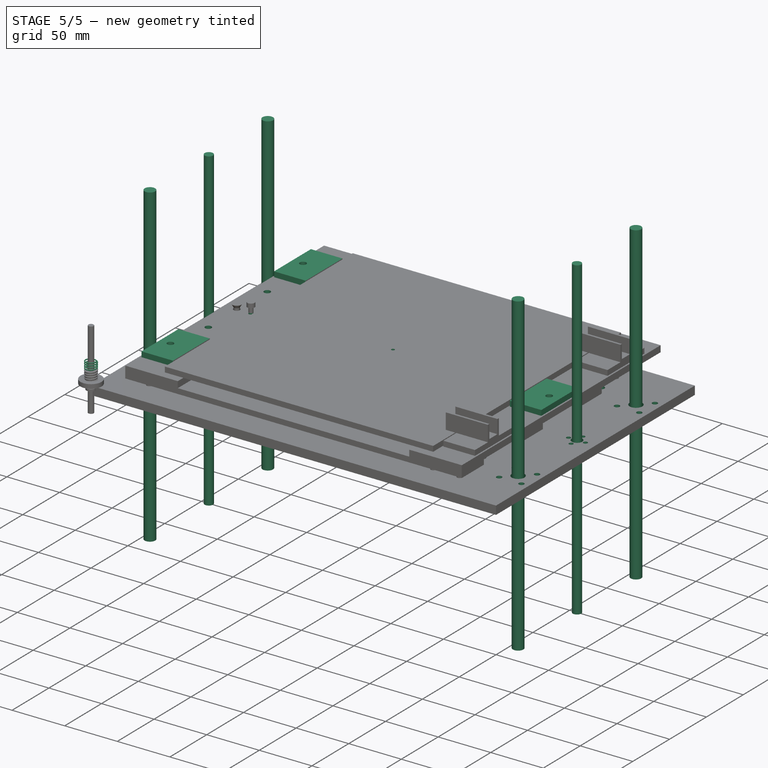
[diagram: stage 5 of 5 — iso view after this stage's code; geometry added in this stage tinted green]
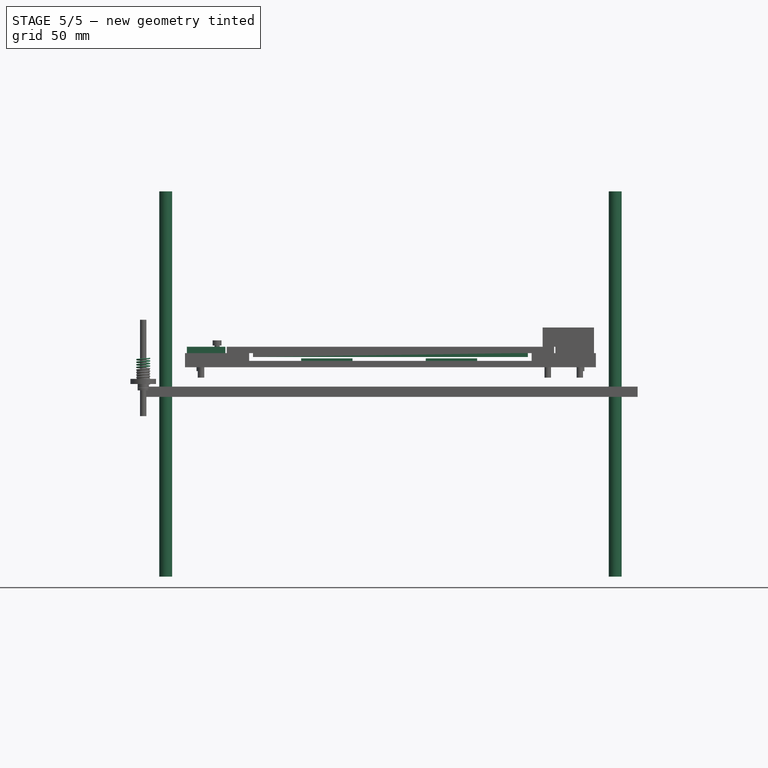
[diagram: stage 5 of 5 — front view after this stage's code; geometry added in this stage tinted green]
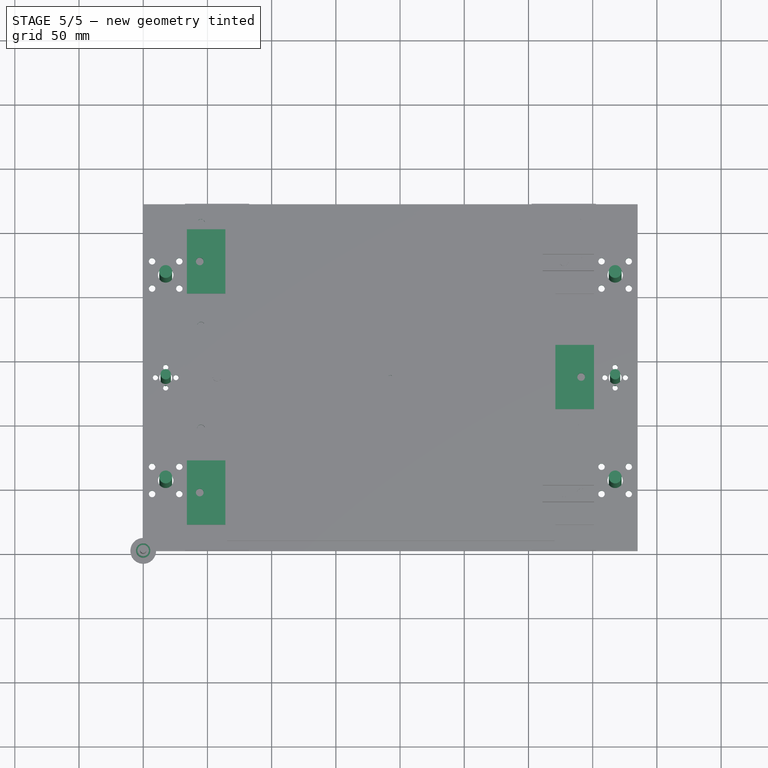
[diagram: stage 5 of 5 — top view after this stage's code; geometry added in this stage tinted green]
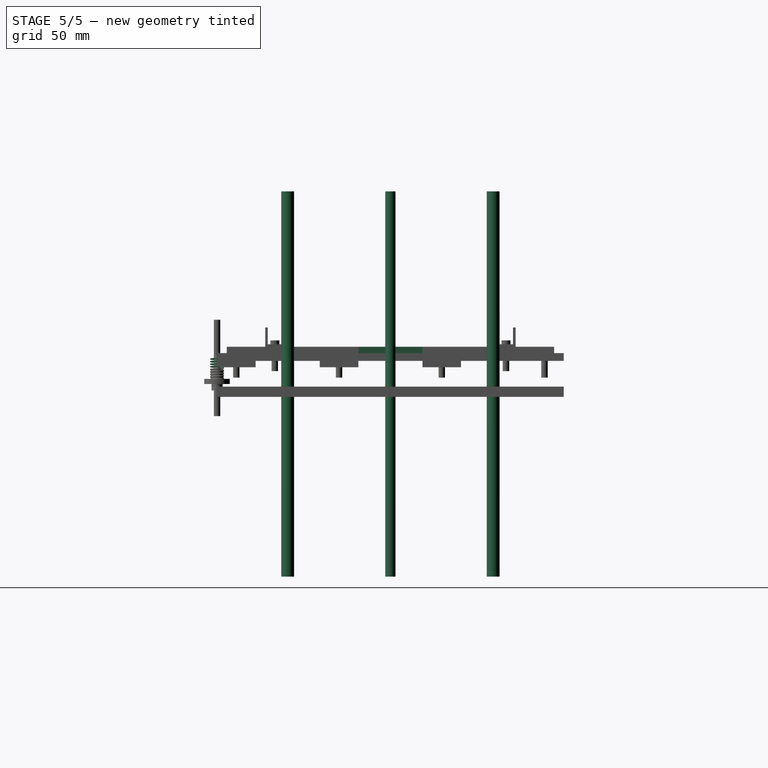
[diagram: stage 5 of 5 — right view after this stage's code; geometry added in this stage tinted green]
FEATURE [Part::Box] Box001  label="CHECK MK4"
  Height = 3.2
  Length = 214
  Placement = pos=(85.5,28,21) rot=(0,0,1;0rad)
  Width = 214
FEATURE [Sketcher::SketchObject] Sketch
  ExternalGeometry = -> [Box001]
  Placement = pos=(85.5,28,21) rot=(1,0,0;3.14159rad)
  Support = -> Box001 [Face5]
  sketch-geometry (8):
    g0: Circle CenterX=107 CenterY=-107 CenterZ=0 NormalX=0 NormalY=0 NormalZ=1 Radius=1.25
    g1: Circle CenterX=2.12132 CenterY=-2.12132 CenterZ=0 NormalX=0 NormalY=0 NormalZ=1 Radius=1.75
    g2: LineSegment [constr] StartX=107 StartY=0 StartZ=0 EndX=107 EndY=-214 EndZ=0
    g3: LineSegment [constr] StartX=0 StartY=-107 StartZ=0 EndX=214 EndY=-107 EndZ=0
    g4: Circle CenterX=211.879 CenterY=-211.879 CenterZ=0 NormalX=0 NormalY=0 NormalZ=1 Radius=1.75
    g5: Circle CenterX=2.12132 CenterY=-211.879 CenterZ=0 NormalX=0 NormalY=0 NormalZ=1 Radius=1.75
    g6: Circle CenterX=211.879 CenterY=-2.12132 CenterZ=0 NormalX=0 NormalY=0 NormalZ=1 Radius=1.75
    g7: LineSegment [constr] StartX=0 StartY=0 StartZ=0 EndX=107 EndY=-107 EndZ=0
  constraints (22):
    c: Radius(g0) = 1.25
    c: PointOnObject(g2,g-3)
    c: PointOnObject(g2,g-5)
    c: Vertical(g2)
    c: Symmetric(g-5,g-5,g2)
    c: PointOnObject(g3,g-6)
    c: PointOnObject(g3,g-4)
    c: Horizontal(g3)
    c: Symmetric(g-6,g-6,g3)
    c: PointOnObject(g0,g3)
    c: PointOnObject(g0,g2)
    c: Symmetric(g6,g1,g2)
    c: Symmetric(g4,g5,g2)
    c: Symmetric(g6,g4,g3)
    c: Radius(g1) = 1.75
    c: Equal(g1,g6)
    c: Equal(g1,g4)
    c: Equal(g1,g5)
    c: Distance(g-1,g1) = 3
    c: Coincident(g7,g-1)
    c: Coincident(g7,g0)
    c: PointOnObject(g1,g7)
FEATURE [PartDesign::Pocket] Pocket  label="CHECK MK4_Dicke_3.2"
  Length = 5
  Placement = pos=(85.5,28,21) rot=(0,0,1;0rad)
  Sketch = -> Sketch
  Type = 1
FEATURE [Part::Feature] Cut002  label="Gewindemutter001"
  Placement = pos=(367.5,135,-2) rot=(0,0,1;0rad)
  shape: bbox 22 x 22 x 15 mm, 12 faces (baked)
FEATURE [Sketcher::SketchObject] Sketch001
  ExternalGeometry = -> [Box]
  Placement = pos=(0,0,-10) rot=(1,0,0;3.14159rad)
  Support = -> Box [Face5]
  sketch-geometry (60):
    g0: LineSegment [constr] StartX=385 StartY=-135 StartZ=0 EndX=0 EndY=-135 EndZ=0
    g1: Circle CenterX=367.5 CenterY=-135 CenterZ=0 NormalX=0 NormalY=0 NormalZ=1 Radius=5
    g2: Circle CenterX=367.5 CenterY=-55 CenterZ=0 NormalX=0 NormalY=0 NormalZ=1 Radius=6
    g3: Circle CenterX=367.5 CenterY=-215 CenterZ=0 NormalX=0 NormalY=0 NormalZ=1 Radius=6
    g4: LineSegment [constr] StartX=367.5 StartY=-55 StartZ=0 EndX=367.5 EndY=-135 EndZ=0
    g5: LineSegment [constr] StartX=367.5 StartY=-135 StartZ=0 EndX=367.5 EndY=-215 EndZ=0
    g6: Circle CenterX=17.5 CenterY=-135 CenterZ=0 NormalX=0 NormalY=0 NormalZ=1 Radius=5
    g7: Circle CenterX=17.5 CenterY=-55 CenterZ=0 NormalX=0 NormalY=0 NormalZ=1 Radius=6
    g8: Circle CenterX=17.5 CenterY=-215 CenterZ=0 NormalX=0 NormalY=0 NormalZ=1 Radius=6
    g9: LineSegment [constr] StartX=17.5 StartY=-55 StartZ=0 EndX=17.5 EndY=-135 EndZ=0
    g10: LineSegment [constr] StartX=17.5 StartY=-135 StartZ=0 EndX=17.5 EndY=-215 EndZ=0
    g11: Circle CenterX=327.5 CenterY=-45 CenterZ=0 NormalX=0 NormalY=0 NormalZ=1 Radius=3
    g12: Circle CenterX=327.5 CenterY=-225 CenterZ=0 NormalX=0 NormalY=0 NormalZ=1 Radius=3
    g13: Circle CenterX=57.5 CenterY=-135 CenterZ=0 NormalX=0 NormalY=0 NormalZ=1 Radius=3
    g14: Circle [constr] CenterX=17.5 CenterY=-135 CenterZ=0 NormalX=0 NormalY=0 NormalZ=1 Radius=8
    g15: Circle [constr] CenterX=367.5 CenterY=-135 CenterZ=0 NormalX=0 NormalY=0 NormalZ=1 Radius=8
    g16: Circle CenterX=9.5 CenterY=-135 CenterZ=0 NormalX=0 NormalY=0 NormalZ=1 Radius=2
    g17: Circle CenterX=25.5 CenterY=-135 CenterZ=0 NormalX=0 NormalY=0 NormalZ=1 Radius=2
    g18: Circle CenterX=17.5 CenterY=-127 CenterZ=0 NormalX=0 NormalY=0 NormalZ=1 Radius=2
    g19: Circle CenterX=17.5 CenterY=-143 CenterZ=0 NormalX=0 NormalY=0 NormalZ=1 Radius=2
    g20: Circle CenterX=375.5 CenterY=-135 CenterZ=0 NormalX=0 NormalY=0 NormalZ=1 Radius=2
    g21: Circle CenterX=367.5 CenterY=-143 CenterZ=0 NormalX=0 NormalY=0 NormalZ=1 Radius=2
    g22: Circle CenterX=367.5 CenterY=-127 CenterZ=0 NormalX=0 NormalY=0 NormalZ=1 Radius=2
    g23: Circle CenterX=359.5 CenterY=-135 CenterZ=0 NormalX=0 NormalY=0 NormalZ=1 Radius=2
    g24: LineSegment [constr] StartX=28.1066 StartY=-65.6066 StartZ=0 EndX=28.1066 EndY=-44.3934 EndZ=0
    g25: LineSegment [constr] StartX=28.1066 StartY=-44.3934 StartZ=0 EndX=6.8934 EndY=-44.3934 EndZ=0
    g26: LineSegment [constr] StartX=6.8934 StartY=-44.3934 StartZ=0 EndX=6.8934 EndY=-65.6066 EndZ=0
    g27: LineSegment [constr] StartX=6.8934 StartY=-65.6066 StartZ=0 EndX=28.1066 EndY=-65.6066 EndZ=0
    g28: Circle [constr] CenterX=17.5 CenterY=-55 CenterZ=0 NormalX=0 NormalY=0 NormalZ=1 Radius=15
    g29: Circle CenterX=6.8934 CenterY=-44.3934 CenterZ=0 NormalX=0 NormalY=0 NormalZ=1 Radius=2.5
    g30: Circle CenterX=28.1066 CenterY=-44.3934 CenterZ=0 NormalX=0 NormalY=0 NormalZ=1 Radius=2.5
    g31: Circle CenterX=28.1066 CenterY=-65.6066 CenterZ=0 NormalX=0 NormalY=0 NormalZ=1 Radius=2.5
    g32: Circle CenterX=6.8934 CenterY=-65.6066 CenterZ=0 NormalX=0 NormalY=0 NormalZ=1 Radius=2.5
    g33: LineSegment [constr] StartX=28.1066 StartY=-225.607 StartZ=0 EndX=28.1066 EndY=-204.393 EndZ=0
    g34: LineSegment [constr] StartX=28.1066 StartY=-204.393 StartZ=0 EndX=6.8934 EndY=-204.393 EndZ=0
    g35: LineSegment [constr] StartX=6.8934 StartY=-204.393 StartZ=0 EndX=6.8934 EndY=-225.607 EndZ=0
    g36: LineSegment [constr] StartX=6.8934 StartY=-225.607 StartZ=0 EndX=28.1066 EndY=-225.607 EndZ=0
    g37: Circle [constr] CenterX=17.5 CenterY=-215 CenterZ=0 NormalX=0 NormalY=0 NormalZ=1 Radius=15
    g38: Circle CenterX=6.8934 CenterY=-204.393 CenterZ=0 NormalX=0 NormalY=0 NormalZ=1 Radius=2.5
    g39: Circle CenterX=28.1066 CenterY=-204.393 CenterZ=0 NormalX=0 NormalY=0 NormalZ=1 Radius=2.5
    g40: Circle CenterX=28.1066 CenterY=-225.607 CenterZ=0 NormalX=0 NormalY=0 NormalZ=1 Radius=2.5
    g41: Circle CenterX=6.8934 CenterY=-225.607 CenterZ=0 NormalX=0 NormalY=0 NormalZ=1 Radius=2.5
    g42: LineSegment [constr] StartX=378.107 StartY=-225.607 StartZ=0 EndX=378.107 EndY=-204.393 EndZ=0
    g43: LineSegment [constr] StartX=378.107 StartY=-204.393 StartZ=0 EndX=356.893 EndY=-204.393 EndZ=0
    g44: LineSegment [constr] StartX=356.893 StartY=-204.393 StartZ=0 EndX=356.893 EndY=-225.607 EndZ=0
    g45: LineSegment [constr] StartX=356.893 StartY=-225.607 StartZ=0 EndX=378.107 EndY=-225.607 EndZ=0
    g46: Circle [constr] CenterX=367.5 CenterY=-215 CenterZ=0 NormalX=0 NormalY=0 NormalZ=1 Radius=15
    g47: Circle CenterX=356.893 CenterY=-204.393 CenterZ=0 NormalX=0 NormalY=0 NormalZ=1 Radius=2.5
    g48: Circle CenterX=378.107 CenterY=-204.393 CenterZ=0 NormalX=0 NormalY=0 NormalZ=1 Radius=2.5
    g49: Circle CenterX=378.107 CenterY=-225.607 CenterZ=0 NormalX=0 NormalY=0 NormalZ=1 Radius=2.5
    g50: Circle CenterX=356.893 CenterY=-225.607 CenterZ=0 NormalX=0 NormalY=0 NormalZ=1 Radius=2.5
    g51: LineSegment [constr] StartX=378.107 StartY=-65.6066 StartZ=0 EndX=378.107 EndY=-44.3934 EndZ=0
    g52: LineSegment [constr] StartX=378.107 StartY=-44.3934 StartZ=0 EndX=356.893 EndY=-44.3934 EndZ=0
    g53: LineSegment [constr] StartX=356.893 StartY=-44.3934 StartZ=0 EndX=356.893 EndY=-65.6066 EndZ=0
    g54: LineSegment [constr] StartX=356.893 StartY=-65.6066 StartZ=0 EndX=378.107 EndY=-65.6066 EndZ=0
    g55: Circle [constr] CenterX=367.5 CenterY=-55 CenterZ=0 NormalX=0 NormalY=0 NormalZ=1 Radius=15
    g56: Circle CenterX=356.893 CenterY=-44.3934 CenterZ=0 NormalX=0 NormalY=0 NormalZ=1 Radius=2.5
    g57: Circle CenterX=378.107 CenterY=-44.3934 CenterZ=0 NormalX=0 NormalY=0 NormalZ=1 Radius=2.5
    g58: Circle CenterX=378.107 CenterY=-65.6066 CenterZ=0 NormalX=0 NormalY=0 NormalZ=1 Radius=2.5
    g59: Circle CenterX=356.893 CenterY=-65.6066 CenterZ=0 NormalX=0 NormalY=0 NormalZ=1 Radius=2.5
  constraints (151):
    c: PointOnObject(g0,g-4)
    c: PointOnObject(g0,g-6)
    c: Symmetric(g-4,g-5,g0)
    c: PointOnObject(g1,g0)
    c: Symmetric(g2,g3,g0)
    c: Radius(g3) = 6
    c: Equal(g3,g2)
    c: Radius(g1) = 5
    c: Coincident(g4,g2)
    c: Coincident(g4,g1)
    c: Coincident(g5,g1)
    c: Coincident(g5,g3)
    c: Vertical(g5)
    c: DistanceX(g1,g0) = 17.5
    c: Distance(g4) = 80
    c: Equal(g3,g8) = 6
    c: Equal(g8,g7)
    c: Equal(g1,g6) = 5
    c: Coincident(g9,g7)
    c: Coincident(g9,g6)
    c: Coincident(g10,g6)
    c: Coincident(g10,g8)
    c: Vertical(g10)
    c: Equal(g4,g9) = 80
    c: PointOnObject(g10,g0)
    c: DistanceX(g0,g6) = 17.5
    c: Symmetric(g7,g8,g0)
    c: PointOnObject(g13,g0)
    c: Distance(g13,g6) = 40
    c: Symmetric(g11,g12,g0)
    c: Radius(g12) = 3
    c: Equal(g12,g11)
    c: Equal(g12,g13)
    c: DistanceY(g1,g11) = 90
    c: DistanceX(g12,g3) = 40
    c: Coincident(g14,g6)
    c: Coincident(g15,g1)
    c: Radius(g15) = 8
    c: Equal(g15,g14)
    c: PointOnObject(g16,g14)
    c: PointOnObject(g19,g14)
    c: PointOnObject(g17,g14)
    c: PointOnObject(g18,g14)
    c: Radius(g16) = 2
    c: Equal(g16,g17)
    c: Equal(g16,g18)
    c: Equal(g16,g19)
    c: PointOnObject(g16,g0)
    c: PointOnObject(g17,g0)
    c: PointOnObject(g19,g10)
    c: PointOnObject(g18,g9)
    c: Equal(g16,g20) = 1.5
    c: Equal(g20,g21)
    c: Equal(g20,g22)
    c: Equal(g20,g23)
    c: PointOnObject(g22,g15)
    c: PointOnObject(g22,g4)
    c: PointOnObject(g21,g5)
    c: PointOnObject(g21,g15)
    c: PointOnObject(g23,g15)
    c: PointOnObject(g23,g0)
    c: PointOnObject(g20,g15)
    c: PointOnObject(g20,g0)
    c: Coincident(g24,g25)
    c: Coincident(g25,g26)
    c: Coincident(g26,g27)
    c: Coincident(g27,g24)
    c: Equal(g24,g25)
    c: Equal(g24,g26)
    c: Equal(g24,g27)
    c: PointOnObject(g24,g28)
    c: PointOnObject(g25,g28)
    c: PointOnObject(g26,g28)
    c: PointOnObject(g27,g28)
    c: Horizontal(g25)
    c: Radius(g28) = 15
    c: Coincident(g29,g25)
    c: Coincident(g30,g24)
    c: Coincident(g31,g24)
    c: Coincident(g32,g26)
    c: Radius(g32) = 2.5
    c: Equal(g32,g29)
    c: Equal(g32,g30)
    c: Equal(g32,g31)
    c: Coincident(g33,g34)
    c: Coincident(g34,g35)
    c: Coincident(g35,g36)
    c: Coincident(g36,g33)
    c: Equal(g33,g34)
    c: Equal(g33,g35)
    c: Equal(g33,g36)
    c: PointOnObject(g33,g37)
    c: PointOnObject(g34,g37)
    c: PointOnObject(g35,g37)
    c: PointOnObject(g36,g37)
    c: Horizontal(g34)
    c: Equal(g28,g37) = 15
    c: Coincident(g38,g34)
    c: Coincident(g39,g33)
    c: Coincident(g40,g33)
    c: Coincident(g41,g35)
    c: Equal(g32,g41) = 2.2
    c: Equal(g41,g38)
    c: Equal(g41,g39)
    c: Equal(g41,g40)
    c: Coincident(g42,g43)
    c: Coincident(g43,g44)
    c: Coincident(g44,g45)
    c: Coincident(g45,g42)
    c: Equal(g42,g43)
    c: Equal(g42,g44)
    c: Equal(g42,g45)
    c: PointOnObject(g42,g46)
    c: PointOnObject(g43,g46)
    c: PointOnObject(g44,g46)
    c: PointOnObject(g45,g46)
    c: Horizontal(g43)
    c: Coincident(g47,g43)
    c: Coincident(g48,g42)
    c: Coincident(g49,g42)
    c: Coincident(g50,g44)
    c: Equal(g50,g47)
    c: Equal(g50,g48)
    c: Equal(g50,g49)
    c: Coincident(g51,g52)
    c: Coincident(g52,g53)
    c: Coincident(g53,g54)
    c: Coincident(g54,g51)
    c: Equal(g51,g52)
    c: Equal(g51,g53)
    c: Equal(g51,g54)
    c: PointOnObject(g51,g55)
    c: PointOnObject(g52,g55)
    c: PointOnObject(g53,g55)
    c: PointOnObject(g54,g55)
    c: Horizontal(g52)
    c: Coincident(g56,g52)
    c: Coincident(g57,g51)
    c: Coincident(g58,g51)
    c: Coincident(g59,g53)
    c: Equal(g59,g56)
    c: Equal(g59,g57)
    c: Equal(g59,g58)
    c: Radius(g55) = 15
    c: Coincident(g2,g55)
    c: Radius(g46) = 15
    c: Coincident(g46,g3)
    c: Coincident(g37,g8)
    c: Coincident(g28,g7)
    c: Radius(g50) = 2.5
    c: Radius(g59) = 2.5
FEATURE [PartDesign::Pocket] Pocket002005  label="Grundplatte mit Bohrungen"
  Length = 8
  Placement = pos=(0,0,-10) rot=(0,0,1;0rad)
  Sketch = -> Sketch001
  Type = 1
FEATURE [Sketcher::SketchObject] Sketch002
  ExternalGeometry = -> [Box002]
  Placement = pos=(65,7.5,29) rot=(0,0,1;0rad)
  Support = -> Box002 [Face6]
  sketch-geometry (2):
    g0: LineSegment [constr] StartX=255 StartY=255 StartZ=0 EndX=0 EndY=0 EndZ=0
    g1: Circle CenterX=127.5 CenterY=127.5 CenterZ=0 NormalX=0 NormalY=0 NormalZ=1 Radius=1.5
  constraints (5):
    c: Coincident(g0,g-3)
    c: Coincident(g0,g-1)
    c: PointOnObject(g1,g0)
    c: Symmetric(g0,g0,g1)
    c: Radius(g1) = 1.5
FEATURE [PartDesign::Pocket] Pocket002006  label="Glasplatte mit Zentrierloch (Hilfskonstruktion für Ausrichten)"
  Length = 5
  Placement = pos=(65,7.5,24) rot=(0,0,1;0rad)
  Sketch = -> Sketch002
  Type = 1
FEATURE [Part::Box] Box008  label="Block_li_1"
  Height = 5
  Length = 30
  Placement = pos=(34,20,24) rot=(0,0,1;0rad)
  Width = 50
FEATURE [Part::Box] Box009  label="Block_li_3"
  Height = 5
  Length = 30
  Placement = pos=(34,200,24) rot=(0,0,1;0rad)
  Width = 50
FEATURE [Sketcher::SketchObject] Sketch003
  ExternalGeometry = -> [Box004]
  Placement = pos=(32.5,0,24) rot=(0,0,1;0rad)
  Support = -> Box004 [Face6]
  sketch-geometry (16):
    g0: LineSegment [constr] StartX=25 StartY=270 StartZ=0 EndX=25 EndY=0 EndZ=0
    g1: Circle CenterX=25 CenterY=135 CenterZ=0 NormalX=0 NormalY=0 NormalZ=1 Radius=2.1
    g2: Circle CenterX=25 CenterY=225 CenterZ=0 NormalX=0 NormalY=0 NormalZ=1 Radius=2.1
    g3: Circle CenterX=25 CenterY=45 CenterZ=0 NormalX=0 NormalY=0 NormalZ=1 Radius=2.1
    g4: Circle CenterX=12.5 CenterY=15 CenterZ=0 NormalX=0 NormalY=0 NormalZ=1 Radius=3
    g5: Circle CenterX=37.5 CenterY=15 CenterZ=0 NormalX=0 NormalY=0 NormalZ=1 Radius=3
    g6: Circle CenterX=37.5 CenterY=95 CenterZ=0 NormalX=0 NormalY=0 NormalZ=1 Radius=3
    g7: Circle CenterX=12.5 CenterY=95 CenterZ=0 NormalX=0 NormalY=0 NormalZ=1 Radius=3
    g8: Circle CenterX=37.5 CenterY=175 CenterZ=0 NormalX=0 NormalY=0 NormalZ=1 Radius=3
    g9: Circle CenterX=12.5 CenterY=175 CenterZ=0 NormalX=0 NormalY=0 NormalZ=1 Radius=3
    g10: Circle CenterX=37.5 CenterY=255 CenterZ=0 NormalX=0 NormalY=0 NormalZ=1 Radius=3
    g11: Circle CenterX=12.5 CenterY=255 CenterZ=0 NormalX=0 NormalY=0 NormalZ=1 Radius=3
    g12: LineSegment [constr] StartX=37.5 StartY=270 StartZ=0 EndX=37.5 EndY=0 EndZ=0
    g13: Circle CenterX=11.5 CenterY=45 CenterZ=0 NormalX=0 NormalY=0 NormalZ=1 Radius=3
    g14: Circle CenterX=11.5 CenterY=225 CenterZ=0 NormalX=0 NormalY=0 NormalZ=1 Radius=3
    g15: Circle CenterX=11.5 CenterY=135 CenterZ=0 NormalX=0 NormalY=0 NormalZ=1 Radius=3
  constraints (45):
    c: Vertical(g0)
    c: Symmetric(g-4,g-4,g0)
    c: PointOnObject(g0,g-3)
    c: PointOnObject(g1,g0)
    c: Symmetric(g0,g0,g1)
    c: PointOnObject(g2,g0)
    c: PointOnObject(g3,g0)
    c: DistanceY(g1,g2) = 90
    c: DistanceY(g3,g1) = 90
    c: Radius(g1) = 2.1
    c: Equal(g1,g2)
    c: Equal(g1,g3)
    c: Symmetric(g11,g10,g0)
    c: Symmetric(g9,g8,g0)
    c: Symmetric(g7,g6,g0)
    c: Symmetric(g4,g5,g0)
    c: Vertical(g12)
    c: PointOnObject(g6,g12)
    c: PointOnObject(g8,g12)
    c: PointOnObject(g12,g-4)
    c: PointOnObject(g5,g12)
    c: PointOnObject(g12,g-3)
    c: PointOnObject(g10,g12)
    c: Radius(g11) = 3
    c: Equal(g11,g10)
    c: Equal(g11,g9)
    c: Equal(g11,g8)
    c: Equal(g11,g7)
    c: Equal(g11,g6)
    c: Equal(g11,g4)
    c: Equal(g11,g5)
    c: DistanceY(g-6,g5) = 15
    c: DistanceY(g5,g6) = 80
    c: DistanceY(g6,g8) = 80
    c: DistanceY(g8,g10) = 80
    c: Symmetric(g0,g-6,g12)
    c: DistanceX(g13,g0) = 13.5
    c: DistanceX(g14,g0) = 13.5
    c: DistanceX(g15,g1) = 13.5
    c: DistanceY(g15,g14) = 90
    c: DistanceY(g13,g15) = 90
    c: DistanceY(g15,g1) = 0
    c: Radius(g14) = 3
    c: Equal(g14,g15)
    c: Equal(g14,g13)
FEATURE [PartDesign::Pocket] Pocket002007
  Length = 5
  Placement = pos=(32.5,0,18) rot=(0,0,1;0rad)
  Sketch = -> Sketch003
  Type = 1
FEATURE [Sketcher::SketchObject] Sketch005
  ExternalGeometry = -> [Box013]
  Placement = pos=(302.5,0,24) rot=(0,0,1;0rad)
  Support = -> Box013 [Face6]
  sketch-geometry (16):
    g0: LineSegment [constr] StartX=25 StartY=270 StartZ=0 EndX=25 EndY=0 EndZ=0
    g1: Circle CenterX=25 CenterY=135 CenterZ=0 NormalX=0 NormalY=0 NormalZ=1 Radius=2.1
    g2: Circle CenterX=25 CenterY=225 CenterZ=0 NormalX=0 NormalY=0 NormalZ=1 Radius=2.1
    g3: Circle CenterX=25 CenterY=45 CenterZ=0 NormalX=0 NormalY=0 NormalZ=1 Radius=2.1
    g4: LineSegment [constr] StartX=37.5 StartY=270 StartZ=0 EndX=37.5 EndY=0 EndZ=0
    g5: Circle CenterX=12.5 CenterY=255 CenterZ=0 NormalX=0 NormalY=0 NormalZ=1 Radius=3
    g6: Circle CenterX=37.5 CenterY=255 CenterZ=0 NormalX=0 NormalY=0 NormalZ=1 Radius=3
    g7: Circle CenterX=12.5 CenterY=175 CenterZ=0 NormalX=0 NormalY=0 NormalZ=1 Radius=3
    g8: Circle CenterX=37.5 CenterY=175 CenterZ=0 NormalX=0 NormalY=0 NormalZ=1 Radius=3
    g9: Circle CenterX=12.5 CenterY=95 CenterZ=0 NormalX=0 NormalY=0 NormalZ=1 Radius=3
    g10: Circle CenterX=37.5 CenterY=95 CenterZ=0 NormalX=0 NormalY=0 NormalZ=1 Radius=3
    g11: Circle CenterX=12.5 CenterY=15 CenterZ=0 NormalX=0 NormalY=0 NormalZ=1 Radius=3
    g12: Circle CenterX=37.5 CenterY=15 CenterZ=0 NormalX=0 NormalY=0 NormalZ=1 Radius=3
    g13: Circle CenterX=38.5 CenterY=225 CenterZ=0 NormalX=0 NormalY=0 NormalZ=1 Radius=3
    g14: Circle CenterX=38.5 CenterY=135 CenterZ=0 NormalX=0 NormalY=0 NormalZ=1 Radius=3
    g15: Circle CenterX=38.5 CenterY=45 CenterZ=0 NormalX=0 NormalY=0 NormalZ=1 Radius=3
  constraints (46):
    c: PointOnObject(g0,g-4)
    c: Vertical(g0)
    c: Symmetric(g-4,g-4,g0)
    c: PointOnObject(g0,g-3)
    c: PointOnObject(g1,g0)
    c: Symmetric(g0,g0,g1)
    c: PointOnObject(g2,g0)
    c: PointOnObject(g3,g0)
    c: DistanceY(g1,g2) = 90
    c: DistanceY(g3,g1) = 90
    c: PointOnObject(g4,g-3)
    c: Vertical(g4)
    c: Symmetric(g-6,g0,g4)
    c: Symmetric(g6,g5,g0)
    c: PointOnObject(g6,g4)
    c: Symmetric(g8,g7,g0)
    c: PointOnObject(g8,g4)
    c: Symmetric(g10,g9,g0)
    c: PointOnObject(g10,g4)
    c: Symmetric(g12,g11,g0)
    c: Radius(g12) = 3
    c: Equal(g12,g11)
    c: Equal(g12,g10)
    c: Equal(g12,g9)
    c: Equal(g12,g8)
    c: Equal(g12,g7)
    c: Equal(g12,g6)
    c: Equal(g12,g5)
    c: PointOnObject(g12,g4)
    c: PointOnObject(g4,g-4)
    c: DistanceY(g-6,g12) = 15
    c: DistanceY(g12,g10) = 80
    c: DistanceY(g10,g8) = 80
    c: DistanceY(g8,g6) = 80
    c: Radius(g13) = 3
    c: Equal(g13,g14)
    c: Equal(g13,g15)
    c: DistanceY(g15,g14) = 90
    c: DistanceY(g14,g13) = 90
    c: DistanceX(g3,g15) = 13.5
    c: DistanceX(g1,g14) = 13.5
    c: DistanceX(g0,g13) = 13.5
    c: DistanceY(g14,g1) = 0
    c: Radius(g2) = 2.1
    c: Equal(g2,g3)
    c: Equal(g2,g1)
FEATURE [PartDesign::Pocket] Pocket002008
  Length = 5
  Placement = pos=(302.5,0,18) rot=(0,0,1;0rad)
  Sketch = -> Sketch005
  Type = 1
FEATURE [Part::Helix] Helix
  Angle = 0
  Height = 20
  LocalCoord = 0
  Pitch = 2
  Radius = 5
  Style = 1
FEATURE [Sketcher::SketchObject] Sketch006
  Placement = pos=(0,0,0) rot=(1,0,0;1.5708rad)
  sketch-geometry (1):
    g0: Circle CenterX=5 CenterY=0 CenterZ=0 NormalX=0 NormalY=0 NormalZ=1 Radius=0.5
  constraints (3):
    c: PointOnObject(g0,g-1)
    c: DistanceX(g-1,g0) = 5
    c: Radius(g0) = 0.5
FEATURE [Part::Sweep] Sweep
  Frenet = true
  Sections = -> [Sketch006]
  Solid = true
  Spine = -> Helix [Edge1,Edge2,Edge3,Edge4,Edge5,Edge6,Edge7,Edge8,Edge9,Edge10]
  Transition = 1
FEATURE [Part::Feature] Sweep002  label="Federn001"
  Placement = pos=(57.5,135,18) rot=(0,1,0;3.14159rad)
  shape: bbox 14.35 x 16.09 x 21.9 mm, 12 faces (baked)
FEATURE [Part::Feature] Sweep003  label="Federn002"
  Placement = pos=(327.5,45,18) rot=(0,1,0;3.14159rad)
  shape: bbox 14.35 x 16.09 x 21.9 mm, 12 faces (baked)
FEATURE [Part::Feature] Sweep004  label="Federn003"
  Placement = pos=(327.5,225,18) rot=(0,1,0;3.14159rad)
  shape: bbox 14.35 x 16.09 x 21.9 mm, 12 faces (baked)
FEATURE [Sketcher::SketchObject] Sketch007
  ExternalGeometry = -> [Box008]
  Placement = pos=(34,20,29) rot=(0,0,1;0rad)
  Support = -> Box008 [Face6]
  sketch-geometry (2):
    g0: LineSegment [constr] StartX=10 StartY=50 StartZ=0 EndX=10 EndY=0 EndZ=0
    g1: Circle CenterX=10 CenterY=25 CenterZ=0 NormalX=0 NormalY=0 NormalZ=1 Radius=3
  constraints (7):
    c: PointOnObject(g0,g-5)
    c: Vertical(g0)
    c: PointOnObject(g1,g0)
    c: Symmetric(g0,g0,g1)
    c: PointOnObject(g0,g-4)
    c: Radius(g1) = 3
    c: DistanceX(g-4,g0) = 10
FEATURE [PartDesign::Pocket] Pocket002009  label="Block_li_1_holed_unused"
  Length = 5
  Placement = pos=(34,20,24) rot=(0,0,1;0rad)
  Sketch = -> Sketch007
  Type = 1
FEATURE [Sketcher::SketchObject] Sketch009
  ExternalGeometry = -> [Box009]
  Placement = pos=(34,200,29) rot=(0,0,1;0rad)
  Support = -> Box009 [Face6]
  sketch-geometry (2):
    g0: LineSegment [constr] StartX=10 StartY=50 StartZ=0 EndX=10 EndY=0 EndZ=0
    g1: Circle CenterX=10 CenterY=25 CenterZ=0 NormalX=0 NormalY=0 NormalZ=1 Radius=3
  constraints (7):
    c: PointOnObject(g0,g-3)
    c: PointOnObject(g0,g-4)
    c: Vertical(g0)
    c: PointOnObject(g1,g0)
    c: Radius(g1) = 3
    c: Symmetric(g0,g0,g1)
    c: DistanceX(g-3,g0) = 10
FEATURE [PartDesign::Pocket] Pocket002011  label="Block_li_3_holed_unused"
  Length = 5
  Placement = pos=(34,200,24) rot=(0,0,1;0rad)
  Sketch = -> Sketch009
  Type = 1
FEATURE [Part::Box] Box016  label="Block_re_2"
  Height = 5
  Length = 30
  Placement = pos=(321,110,24) rot=(0,0,1;0rad)
  Width = 50
FEATURE [Sketcher::SketchObject] Sketch011
  ExternalGeometry = -> [Box016]
  Placement = pos=(321,110,29) rot=(0,0,1;0rad)
  Support = -> Box016 [Face6]
  sketch-geometry (2):
    g0: LineSegment [constr] StartX=20 StartY=50 StartZ=0 EndX=20 EndY=0 EndZ=0
    g1: Circle CenterX=20 CenterY=25 CenterZ=0 NormalX=0 NormalY=0 NormalZ=1 Radius=3
  constraints (7):
    c: PointOnObject(g0,g-3)
    c: PointOnObject(g0,g-4)
    c: Vertical(g0)
    c: PointOnObject(g1,g0)
    c: Symmetric(g0,g0,g1)
    c: DistanceX(g0,g-3) = 10
    c: Radius(g1) = 3
FEATURE [PartDesign::Pocket] Pocket002013  label="Block_re_2_holed"
  Length = 5
  Placement = pos=(321,110,24) rot=(0,0,1;0rad)
  Sketch = -> Sketch011
  Type = 1
FEATURE [Part::Box] Box017  label="Heatbed-Klemmung re (FR4 oder so)"
  Height = 2
  Length = 40
  Placement = pos=(123,62,18) rot=(0,0,1;0rad)
  Width = 150
FEATURE [Part::Box] Box018  label="Heatbed-Klemmung li (FR4 oder so)"
  Height = 2
  Length = 40
  Placement = pos=(220,62,18) rot=(0,0,1;0rad)
  Width = 150
FEATURE [Part::Cylinder] Cylinder004  label="10er Führung"
  Angle = 360
  Height = 300
  Placement = pos=(17.5,55,-150) rot=(0,0,1;0.00199rad)
  Radius = 5
FEATURE [Part::Cylinder] Cylinder005  label="10er Führung001"
  Angle = 360
  Height = 300
  Placement = pos=(17.5,215,-150) rot=(0,0,1;0.00199rad)
  Radius = 5
FEATURE [Part::Cylinder] Cylinder006  label="10er Führung002"
  Angle = 360
  Height = 300
  Placement = pos=(367.5,55,-150) rot=(0,0,1;0.00199rad)
  Radius = 5
FEATURE [Part::Cylinder] Cylinder007  label="10er Führung003"
  Angle = 360
  Height = 300
  Placement = pos=(367.5,215,-150) rot=(0,0,1;0.00199rad)
  Radius = 5
FEATURE [Part::Cylinder] Cylinder008  label="8er Trapezspindel"
  Angle = 360
  Height = 300
  Placement = pos=(17.5,135,-150) rot=(0,0,1;0.00199rad)
  Radius = 4
FEATURE [Part::Cylinder] Cylinder009  label="8er Trapezspindel001"
  Angle = 360
  Height = 300
  Placement = pos=(367.5,135,-150) rot=(0,0,1;0.00199rad)
  Radius = 4
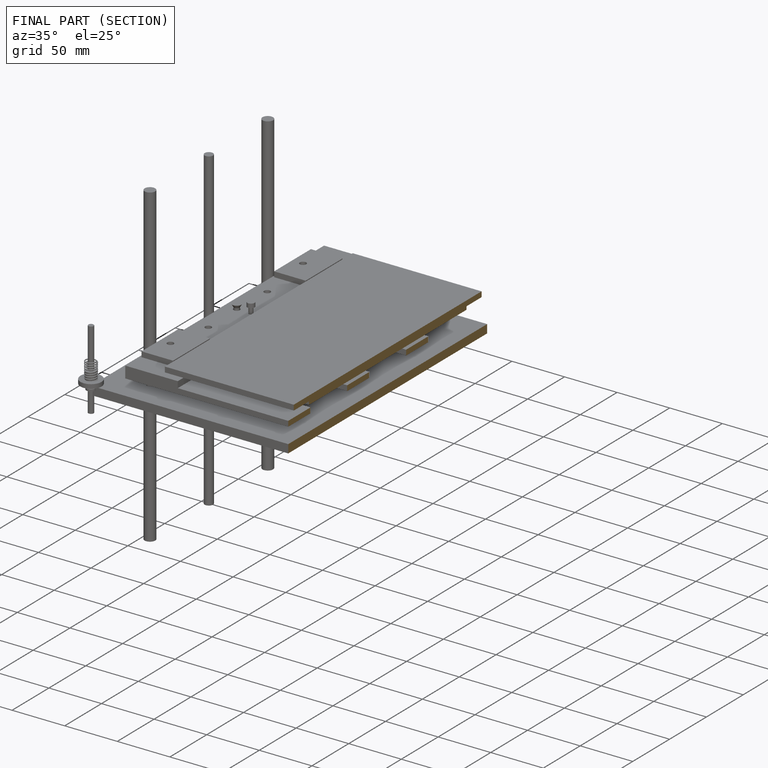
[diagram: finished part — half-section view (interior)]
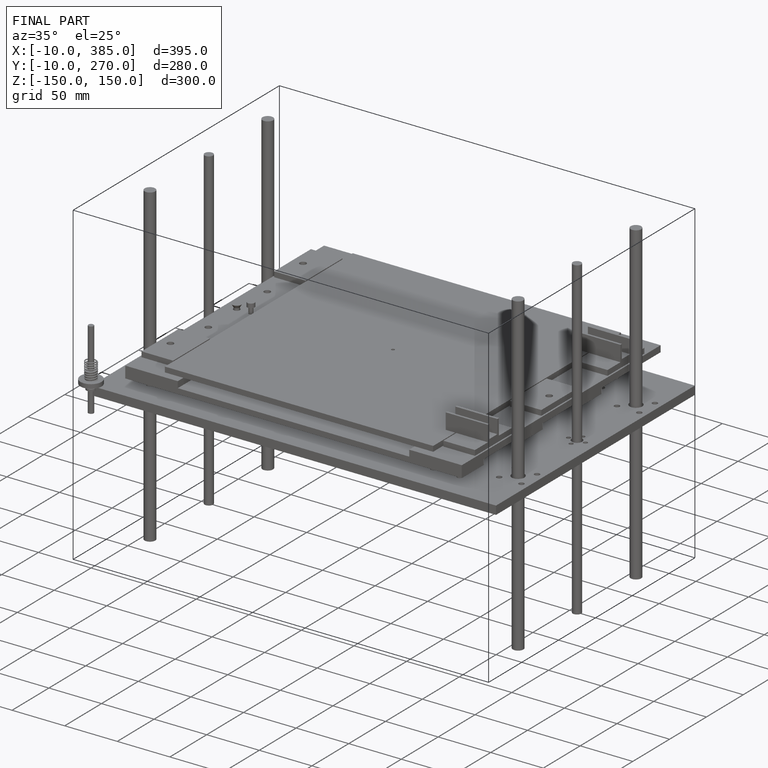
[diagram: finished part — iso view with bounding-box wireframe]
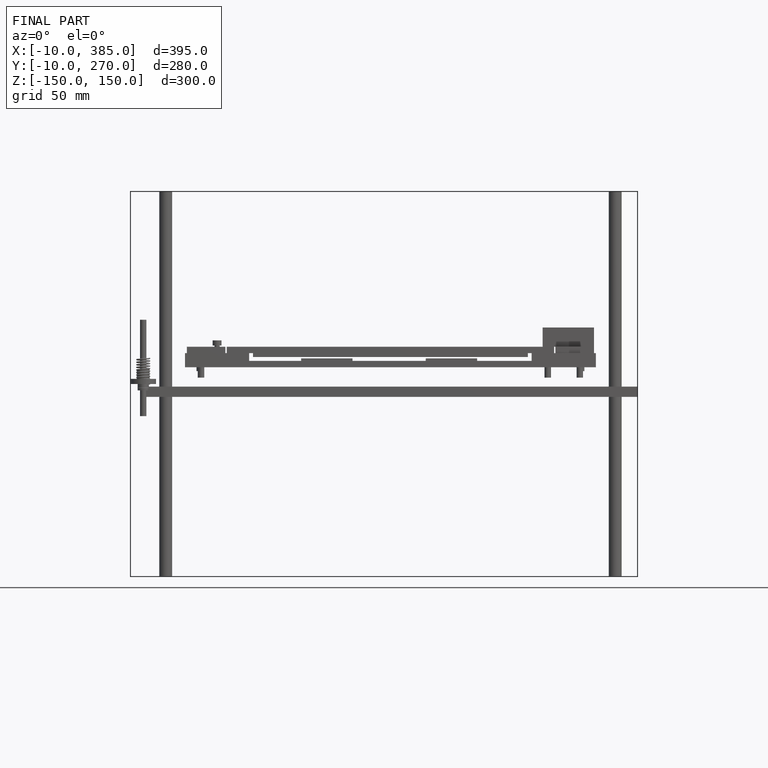
[diagram: finished part — front view with bounding-box wireframe]
